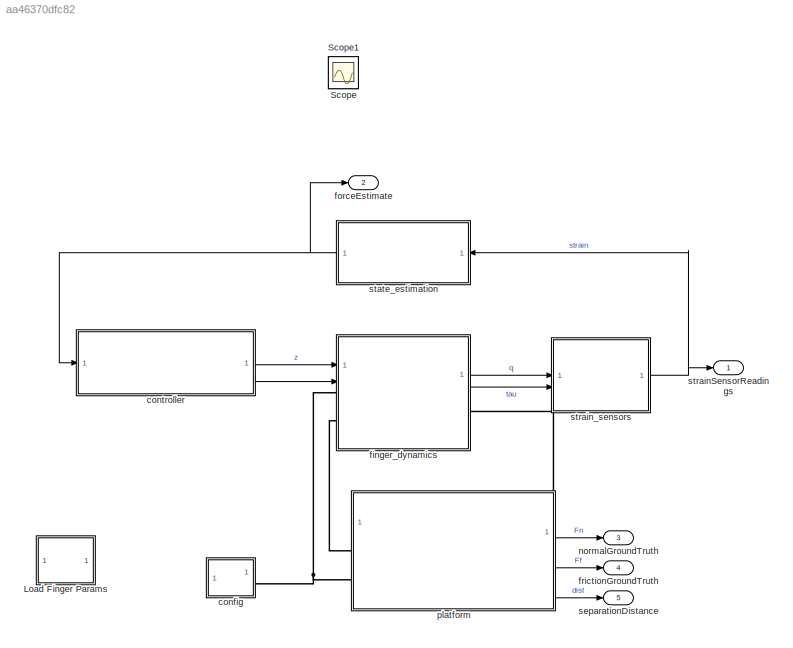
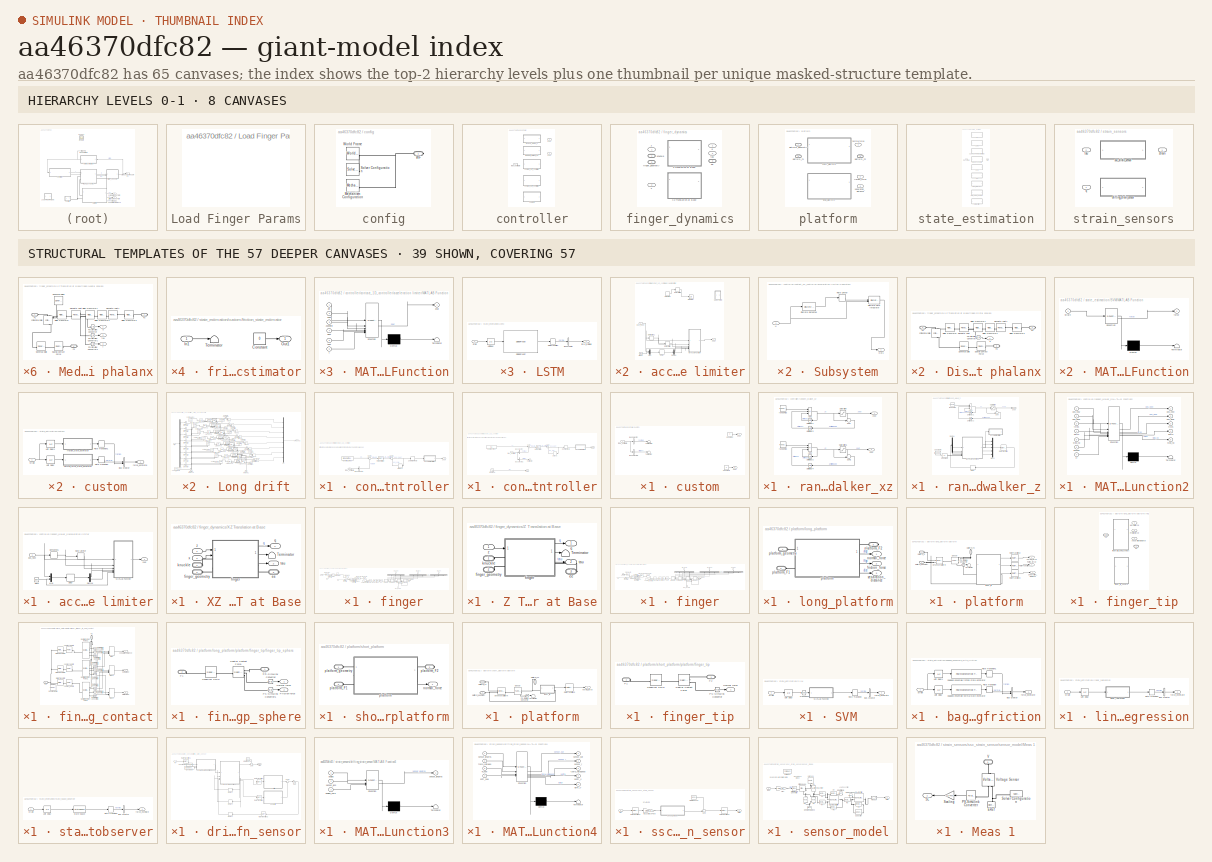
[diagram: thumbnail index - top-2 hierarchy levels (8 canvases) + 39 structural-template representatives of the remaining 57 canvases]
MODEL slx_aa46370dfc82
KIND model
CONFIG AbsTol = auto
CONFIG EnableMultiTasking = off
CONFIG FixedStep = auto
CONFIG MaxStep = auto
CONFIG MinStep = auto
CONFIG RelTol = 1e-3
CONFIG SampleTimeConstraint = Unconstrained
CONFIG SolverName = VariableStepAuto
CONFIG StartTime = 0.0
CONFIG StopTime = 5
BLOCK [SubSystem] Load Finger Params
  NameLocation = left
  OpenFcn = loadFingerParams;
BLOCK [Scope] Scope
  Floating = off
  IOType = viewer
  NumInputPorts = 1
  ScopeSpecificationString = Simulink.scopes.TimeScopeBlockCfg('CurrentConfiguration', extmgr.ConfigurationSet(extmgr.Configuration('Core','General UI',true),extmgr.Configuration('Core','Source UI',true),extmgr.Configuration('Sources','WiredSimulink',true),extmgr.Configuration('Visuals','Time Domain',true,'SerializedDisplays',{struct('MinYLimReal','-0.00155','MaxYLimReal','0.00333','YLabelReal','','MinYLimMag','0.00000','MaxY...<+4283ch>
BLOCK [Scope] Scope1
  Floating = off
  IOType = viewer
  NumInputPorts = 1
  ScopeSpecificationString = Simulink.scopes.TimeScopeBlockCfg('CurrentConfiguration', extmgr.ConfigurationSet(extmgr.Configuration('Core','General UI',true),extmgr.Configuration('Core','Source UI',true),extmgr.Configuration('Sources','WiredSimulink',true,'DataLoggingVariableName','ScopeData1'),extmgr.Configuration('Visuals','Time Domain',true,'SerializedDisplays',{struct('MinYLimReal','-1.00000','MaxYLimReal','1.00000','YLab...<+1401ch>
BLOCK [SubSystem] config
BLOCK [Reference] config/Mechanism Configuration  REF=sm_lib/Utilities/Mechanism
Configuration
  SourceBlock = sm_lib/Utilities/Mechanism\nConfiguration
  SourceType = Mechanism\nConfiguration
BLOCK [Reference] config/Solver Configuration  REF=nesl_utility/Solver
Configuration
  SourceBlock = nesl_utility/Solver\nConfiguration
  SourceType = Solver\nConfiguration
BLOCK [PMIOPort] config/WF
  Side = Right
BLOCK [Reference] config/World Frame  REF=sm_lib/Frames and
Transforms/World Frame
  SourceBlock = sm_lib/Frames and\nTransforms/World Frame
  SourceType = World Frame
BLOCK [SubSystem] controller
  Variant = on
  VariantControl = Choice
BLOCK [SubSystem] controller/contact_1D_controller
  VariantControl = controller_choice==1
BLOCK [BusSelector] controller/contact_1D_controller/Bus Selector
  OutputSignals = normal
BLOCK [Delay] controller/contact_1D_controller/Delay2
  DelayLength = 1;
  InitialCondition = 0;
  InputPortMap = u0
BLOCK [Reference] controller/contact_1D_controller/PID Controller  REF=slpidlib/PID Controller
  SourceBlock = slpidlib/PID Controller
  SourceType = PID 1dof
BLOCK [Sum] controller/contact_1D_controller/Sum1
  Inputs = |+-
BLOCK [Sum] controller/contact_1D_controller/Sum2
  Inputs = |-+
BLOCK [ZeroOrderHold] controller/contact_1D_controller/Zero-Order Hold
  SampleTime = -1
BLOCK [SubSystem] controller/contact_1D_controller/acceleration limiter
BLOCK [Clock] controller/contact_1D_controller/acceleration limiter/Clock
BLOCK [Delay] controller/contact_1D_controller/acceleration limiter/Delay
  DelayLength = 1
  InitialCondition = [0,0]
  InputPortMap = u0
BLOCK [Demux] controller/contact_1D_controller/acceleration limiter/Demux
  Outputs = 2
BLOCK [Derivative] controller/contact_1D_controller/acceleration limiter/Derivative
  Commented = on
BLOCK [Derivative] controller/contact_1D_controller/acceleration limiter/Derivative1
BLOCK [Integrator] controller/contact_1D_controller/acceleration limiter/Integrator
  Commented = on
  InitialConditionSource = external
BLOCK [SubSystem] controller/contact_1D_controller/acceleration limiter/MATLAB Function
  ErrorFcn = Stateflow.Translate.translate
  PermitHierarchicalResolution = ExplicitOnly
  SFBlockType = MATLAB Function
  TreatAsAtomicUnit = on
BLOCK [Demux] controller/contact_1D_controller/acceleration limiter/MATLAB Function/ Demux 
  Outputs = 1
BLOCK [S-Function] controller/contact_1D_controller/acceleration limiter/MATLAB Function/ SFunction 
  EnableBusSupport = off
  FunctionName = sf_sfun
  PortCounts = [6 2]
  SFcnIsStateOwnerBlock = off
  SFunctionDeploymentMode = off
  Tag = Stateflow S-Function 8
BLOCK [Terminator] controller/contact_1D_controller/acceleration limiter/MATLAB Function/ Terminator 
BLOCK [Inport] controller/contact_1D_controller/acceleration limiter/MATLAB Function/t
  Port = 6
BLOCK [Inport] controller/contact_1D_controller/acceleration limiter/MATLAB Function/tlast
  Port = 5
BLOCK [Inport] controller/contact_1D_controller/acceleration limiter/MATLAB Function/zdot
  Port = 2
BLOCK [Inport] controller/contact_1D_controller/acceleration limiter/MATLAB Function/zdotlimit
  Port = 3
BLOCK [Inport] controller/contact_1D_controller/acceleration limiter/MATLAB Function/zin
BLOCK [Inport] controller/contact_1D_controller/acceleration limiter/MATLAB Function/zlast
  Port = 4
BLOCK [Outport] controller/contact_1D_controller/acceleration limiter/MATLAB Function/zout
BLOCK [Mux] controller/contact_1D_controller/acceleration limiter/Mux
  DisplayOption = bar
  Inputs = 2
BLOCK [RateLimiter] controller/contact_1D_controller/acceleration limiter/Rate Limiter
  FallingSlewLimit = -6000
  RisingSlewLimit = 6000
BLOCK [RateLimiter] controller/contact_1D_controller/acceleration limiter/Rate Limiter1
  Commented = on
  FallingSlewLimit = -6000
  RisingSlewLimit = 6000
BLOCK [SubSystem] controller/contact_1D_controller/acceleration limiter/Subsystem
  Commented = on
BLOCK [Reference] controller/contact_1D_controller/acceleration limiter/Subsystem/Discrete Derivative  REF=simulink/Discrete/Discrete Derivative
  SourceBlock = simulink/Discrete/Discrete Derivative
  SourceType = Discrete Derivative
BLOCK [DiscreteIntegrator] controller/contact_1D_controller/acceleration limiter/Subsystem/Discrete-Time Integrator
  ICPrevOutput = DiscIntNeverNeededParam
  ICPrevScaledInput = DiscIntNeverNeededParam
  InitialConditionSetting = Auto
  InitialConditionSource = external
  SampleTime = -1
BLOCK [Outport] controller/contact_1D_controller/acceleration limiter/Subsystem/Out1
BLOCK [RateLimiter] controller/contact_1D_controller/acceleration limiter/Subsystem/Rate Limiter
  FallingSlewLimit = -60000000
  RisingSlewLimit = 60000000
  SampleTimeMode = inherited
BLOCK [Inport] controller/contact_1D_controller/acceleration limiter/Subsystem/U
BLOCK [Inport] controller/contact_1D_controller/acceleration limiter/pos_next
BLOCK [Outport] controller/contact_1D_controller/acceleration limiter/zout
BLOCK [Constant] controller/contact_1D_controller/desired_force
  Value = forceSetPoint
BLOCK [Inport] controller/contact_1D_controller/force_estimate
  NameLocation = left
BLOCK [Outport] controller/contact_1D_controller/zout
BLOCK [SubSystem] controller/contact_2D_controller
  VariantControl = controller_choice==2
BLOCK [BusSelector] controller/contact_2D_controller/Bus Selector
  OutputSignals = normal
BLOCK [BusSelector] controller/contact_2D_controller/Bus Selector1
  OutputSignals = friction
BLOCK [Delay] controller/contact_2D_controller/Delay2
  DelayLength = 1;
  InitialCondition = 0;
  InputPortMap = u0
BLOCK [Reference] controller/contact_2D_controller/PID Controller  REF=slpidlib/PID Controller
  SourceBlock = slpidlib/PID Controller
  SourceType = PID 1dof
BLOCK [Sin] controller/contact_2D_controller/Sine Wave
  Amplitude = 5
  Frequency = 0.5
  SampleTime = 0
BLOCK [Sum] controller/contact_2D_controller/Sum1
  Inputs = |+-
BLOCK [Sum] controller/contact_2D_controller/Sum2
  Inputs = |-+
BLOCK [Terminator] controller/contact_2D_controller/Terminator
BLOCK [ZeroOrderHold] controller/contact_2D_controller/Zero-Order Hold
  SampleTime = -1
BLOCK [SubSystem] controller/contact_2D_controller/acceleration limiter
BLOCK [Clock] controller/contact_2D_controller/acceleration limiter/Clock
BLOCK [Delay] controller/contact_2D_controller/acceleration limiter/Delay
  DelayLength = 1
  InitialCondition = [0,0]
  InputPortMap = u0
BLOCK [Demux] controller/contact_2D_controller/acceleration limiter/Demux
  Outputs = 2
BLOCK [Derivative] controller/contact_2D_controller/acceleration limiter/Derivative
  Commented = on
BLOCK [Derivative] controller/contact_2D_controller/acceleration limiter/Derivative1
BLOCK [Integrator] controller/contact_2D_controller/acceleration limiter/Integrator
  Commented = on
  InitialConditionSource = external
BLOCK [SubSystem] controller/contact_2D_controller/acceleration limiter/MATLAB Function
  ErrorFcn = Stateflow.Translate.translate
  PermitHierarchicalResolution = ExplicitOnly
  SFBlockType = MATLAB Function
  TreatAsAtomicUnit = on
BLOCK [Demux] controller/contact_2D_controller/acceleration limiter/MATLAB Function/ Demux 
  Outputs = 1
BLOCK [S-Function] controller/contact_2D_controller/acceleration limiter/MATLAB Function/ SFunction 
  EnableBusSupport = off
  FunctionName = sf_sfun
  PortCounts = [6 2]
  SFcnIsStateOwnerBlock = off
  SFunctionDeploymentMode = off
  Tag = Stateflow S-Function 13
BLOCK [Terminator] controller/contact_2D_controller/acceleration limiter/MATLAB Function/ Terminator 
BLOCK [Inport] controller/contact_2D_controller/acceleration limiter/MATLAB Function/t
  Port = 6
BLOCK [Inport] controller/contact_2D_controller/acceleration limiter/MATLAB Function/tlast
  Port = 5
BLOCK [Inport] controller/contact_2D_controller/acceleration limiter/MATLAB Function/zdot
  Port = 2
BLOCK [Inport] controller/contact_2D_controller/acceleration limiter/MATLAB Function/zdotlimit
  Port = 3
BLOCK [Inport] controller/contact_2D_controller/acceleration limiter/MATLAB Function/zin
BLOCK [Inport] controller/contact_2D_controller/acceleration limiter/MATLAB Function/zlast
  Port = 4
BLOCK [Outport] controller/contact_2D_controller/acceleration limiter/MATLAB Function/zout
BLOCK [Mux] controller/contact_2D_controller/acceleration limiter/Mux
  DisplayOption = bar
  Inputs = 2
BLOCK [RateLimiter] controller/contact_2D_controller/acceleration limiter/Rate Limiter
  FallingSlewLimit = -6000
  RisingSlewLimit = 6000
BLOCK [RateLimiter] controller/contact_2D_controller/acceleration limiter/Rate Limiter1
  Commented = on
  FallingSlewLimit = -6000
  RisingSlewLimit = 6000
BLOCK [SubSystem] controller/contact_2D_controller/acceleration limiter/Subsystem
  Commented = on
BLOCK [Reference] controller/contact_2D_controller/acceleration limiter/Subsystem/Discrete Derivative  REF=simulink/Discrete/Discrete Derivative
  SourceBlock = simulink/Discrete/Discrete Derivative
  SourceType = Discrete Derivative
BLOCK [DiscreteIntegrator] controller/contact_2D_controller/acceleration limiter/Subsystem/Discrete-Time Integrator
  ICPrevOutput = DiscIntNeverNeededParam
  ICPrevScaledInput = DiscIntNeverNeededParam
  InitialConditionSetting = Auto
  InitialConditionSource = external
  SampleTime = -1
BLOCK [Outport] controller/contact_2D_controller/acceleration limiter/Subsystem/Out1
BLOCK [RateLimiter] controller/contact_2D_controller/acceleration limiter/Subsystem/Rate Limiter
  FallingSlewLimit = -60000000
  RisingSlewLimit = 60000000
  SampleTimeMode = inherited
BLOCK [Inport] controller/contact_2D_controller/acceleration limiter/Subsystem/U
BLOCK [Inport] controller/contact_2D_controller/acceleration limiter/pos_next
BLOCK [Outport] controller/contact_2D_controller/acceleration limiter/zout
BLOCK [Constant] controller/contact_2D_controller/desired_force
  Value = 0.1
BLOCK [Inport] controller/contact_2D_controller/force_estimate
  NameLocation = left
BLOCK [Outport] controller/contact_2D_controller/xout
  Port = 2
BLOCK [Outport] controller/contact_2D_controller/zout
BLOCK [SubSystem] controller/custom
  VariantControl = controller_choice==2
BLOCK [BusSelector] controller/custom/Bus Selector
  OutputSignals = normal
BLOCK [BusSelector] controller/custom/Bus Selector1
  OutputSignals = friction
BLOCK [Constant] controller/custom/Constant
  Value = 0
BLOCK [Constant] controller/custom/Constant1
  Value = 0
BLOCK [Terminator] controller/custom/Terminator
BLOCK [Terminator] controller/custom/Terminator1
BLOCK [Inport] controller/custom/force_estimate
  NameLocation = left
BLOCK [Outport] controller/custom/xout
  Port = 2
BLOCK [Outport] controller/custom/zout
BLOCK [Inport] controller/force_estimate
  NameLocation = left
BLOCK [SubSystem] controller/random_walker_xz
  VariantControl = controller_choice==4
BLOCK [Sum] controller/random_walker_xz/Add1
  IconShape = rectangular
  Inputs = +-+
BLOCK [Sum] controller/random_walker_xz/Add2
  IconShape = rectangular
  Inputs = +-+
BLOCK [Saturate] controller/random_walker_xz/Saturation
  LowerLimit = bounds(2)
  UpperLimit = bounds(1)
BLOCK [Saturate] controller/random_walker_xz/Saturation1
  LowerLimit = -10
  UpperLimit = 10
BLOCK [Sum] controller/random_walker_xz/Sum
  Inputs = -+|
BLOCK [Sum] controller/random_walker_xz/Sum1
  Inputs = -+|
BLOCK [UnitDelay] controller/random_walker_xz/Unit Delay1
  HasFrameUpgradeWarning = on
  NameLocation = top
  SampleTime = -1
BLOCK [UnitDelay] controller/random_walker_xz/Unit Delay2
  HasFrameUpgradeWarning = on
  NameLocation = top
  SampleTime = -1
BLOCK [UnitDelay] controller/random_walker_xz/Unit Delay3
  HasFrameUpgradeWarning = on
  NameLocation = top
  SampleTime = -1
BLOCK [UnitDelay] controller/random_walker_xz/Unit Delay4
  HasFrameUpgradeWarning = on
  NameLocation = top
  SampleTime = -1
BLOCK [RandomNumber] controller/random_walker_xz/random dx
  SampleTime = 0.1
  Variance = 10
BLOCK [RandomNumber] controller/random_walker_xz/random dz
  SampleTime = 0.1
  Seed = 1
  Variance = 0.1
BLOCK [Outport] controller/random_walker_xz/xout
  Port = 2
BLOCK [Outport] controller/random_walker_xz/zout
BLOCK [SubSystem] controller/random_walker_z
  VariantControl = controller_choice==3
BLOCK [Sum] controller/random_walker_z/Add1
  IconShape = rectangular
  Inputs = +-+
BLOCK [Constant] controller/random_walker_z/Constant6
  Commented = on
  Value = [bounds]
BLOCK [Constant] controller/random_walker_z/Constant7
  Commented = on
  Value = cf
BLOCK [Delay] controller/random_walker_z/Delay
  Commented = on
  DelayLength = 1;
  InitialCondition = [10, 0, 1, 1, 1];
  InputPortMap = u0
BLOCK [Demux] controller/random_walker_z/Demux
  Commented = on
  Outputs = 5
BLOCK [SubSystem] controller/random_walker_z/MATLAB Function2
  Commented = on
  ErrorFcn = Stateflow.Translate.translate
  PermitHierarchicalResolution = ExplicitOnly
  SFBlockType = MATLAB Function
  TreatAsAtomicUnit = on
BLOCK [Demux] controller/random_walker_z/MATLAB Function2/ Demux 
  Outputs = 1
BLOCK [S-Function] controller/random_walker_z/MATLAB Function2/ SFunction 
  EnableBusSupport = off
  FunctionName = sf_sfun
  PortCounts = [7 6]
  SFcnIsStateOwnerBlock = off
  SFunctionDeploymentMode = off
  Tag = Stateflow S-Function 3
BLOCK [Terminator] controller/random_walker_z/MATLAB Function2/ Terminator 
BLOCK [Outport] controller/random_walker_z/MATLAB Function2/batch
  Port = 4
BLOCK [Inport] controller/random_walker_z/MATLAB Function2/batch 
  Port = 4
BLOCK [Inport] controller/random_walker_z/MATLAB Function2/bounds
  Port = 6
BLOCK [Inport] controller/random_walker_z/MATLAB Function2/cf
  Port = 7
BLOCK [Outport] controller/random_walker_z/MATLAB Function2/pos_goal
  Port = 2
BLOCK [Inport] controller/random_walker_z/MATLAB Function2/pos_goal 
  Port = 2
BLOCK [Outport] controller/random_walker_z/MATLAB Function2/pos_next
BLOCK [Inport] controller/random_walker_z/MATLAB Function2/pos_now
BLOCK [Outport] controller/random_walker_z/MATLAB Function2/step_no
  Port = 5
BLOCK [Inport] controller/random_walker_z/MATLAB Function2/step_no 
  Port = 5
BLOCK [Outport] controller/random_walker_z/MATLAB Function2/thres
  Port = 3
BLOCK [Inport] controller/random_walker_z/MATLAB Function2/thres 
  Port = 3
BLOCK [Mux] controller/random_walker_z/Mux1
  Commented = on
  DisplayOption = bar
  Inputs = 5
BLOCK [RateTransition] controller/random_walker_z/Rate Transition
  Commented = on
  InitialCondition = 0;
  OutPortSampleTime = 1/cf;
BLOCK [Saturate] controller/random_walker_z/Saturation
  LowerLimit = bounds(2)
  UpperLimit = bounds(1)
BLOCK [Sum] controller/random_walker_z/Sum
  Inputs = -+|
BLOCK [UnitDelay] controller/random_walker_z/Unit Delay1
  HasFrameUpgradeWarning = on
  NameLocation = top
  SampleTime = -1
BLOCK [UnitDelay] controller/random_walker_z/Unit Delay2
  HasFrameUpgradeWarning = on
  NameLocation = top
  SampleTime = -1
BLOCK [SubSystem] controller/random_walker_z/acceleration limiter
  Commented = on
BLOCK [Clock] controller/random_walker_z/acceleration limiter/Clock
BLOCK [Delay] controller/random_walker_z/acceleration limiter/Delay
  DelayLength = 1
  InitialCondition = [0,0]
  InputPortMap = u0
BLOCK [Demux] controller/random_walker_z/acceleration limiter/Demux
  Outputs = 2
BLOCK [Derivative] controller/random_walker_z/acceleration limiter/Derivative1
BLOCK [SubSystem] controller/random_walker_z/acceleration limiter/MATLAB Function
  ErrorFcn = Stateflow.Translate.translate
  PermitHierarchicalResolution = ExplicitOnly
  SFBlockType = MATLAB Function
  TreatAsAtomicUnit = on
BLOCK [Demux] controller/random_walker_z/acceleration limiter/MATLAB Function/ Demux 
  Outputs = 1
BLOCK [S-Function] controller/random_walker_z/acceleration limiter/MATLAB Function/ SFunction 
  EnableBusSupport = off
  FunctionName = sf_sfun
  PortCounts = [6 2]
  SFcnIsStateOwnerBlock = off
  SFunctionDeploymentMode = off
  Tag = Stateflow S-Function 2
BLOCK [Terminator] controller/random_walker_z/acceleration limiter/MATLAB Function/ Terminator 
BLOCK [Inport] controller/random_walker_z/acceleration limiter/MATLAB Function/t
  Port = 6
BLOCK [Inport] controller/random_walker_z/acceleration limiter/MATLAB Function/tlast
  Port = 5
BLOCK [Inport] controller/random_walker_z/acceleration limiter/MATLAB Function/zdot
  Port = 2
BLOCK [Inport] controller/random_walker_z/acceleration limiter/MATLAB Function/zdotlimit
  Port = 3
BLOCK [Inport] controller/random_walker_z/acceleration limiter/MATLAB Function/zin
BLOCK [Inport] controller/random_walker_z/acceleration limiter/MATLAB Function/zlast
  Port = 4
BLOCK [Outport] controller/random_walker_z/acceleration limiter/MATLAB Function/zout
BLOCK [Mux] controller/random_walker_z/acceleration limiter/Mux
  DisplayOption = bar
  Inputs = 2
BLOCK [RateLimiter] controller/random_walker_z/acceleration limiter/Rate Limiter
  FallingSlewLimit = -6000
  RisingSlewLimit = 6000
BLOCK [Inport] controller/random_walker_z/acceleration limiter/pos_next
BLOCK [Outport] controller/random_walker_z/acceleration limiter/zout
BLOCK [RandomNumber] controller/random_walker_z/random dz
  SampleTime = 0.1
  Seed = 1
  Variance = 0.1
BLOCK [Outport] controller/random_walker_z/zout
BLOCK [Outport] controller/xout
  NameLocation = right
  Port = 2
BLOCK [Outport] controller/zout
  NameLocation = right
BLOCK [SubSystem] finger_dynamics
  Variant = on
  VariantControl = Choice
BLOCK [SubSystem] finger_dynamics/XZ Translation at Base
  VariantControl = plant_choice == 2
BLOCK [Terminator] finger_dynamics/XZ Translation at Base/Terminator
BLOCK [PMIOPort] finger_dynamics/XZ Translation at Base/ee
  NameLocation = right
  Port = 3
  Side = Right
BLOCK [SubSystem] finger_dynamics/XZ Translation at Base/finger
BLOCK [Constant] finger_dynamics/XZ Translation at Base/finger/Constant
  Value = 0
BLOCK [SubSystem] finger_dynamics/XZ Translation at Base/finger/Distal phalanx
BLOCK [Reference] finger_dynamics/XZ Translation at Base/finger/Distal phalanx/Cylindrical Solid  REF=sm_lib/Body Elements/Cylindrical Solid
  NameLocation = left
  SourceBlock = sm_lib/Body Elements/Cylindrical Solid
  SourceType = Cylindrical Solid
BLOCK [PMIOPort] finger_dynamics/XZ Translation at Base/finger/Distal phalanx/F1
  NameLocation = top
  Port = 2
  Side = Left
BLOCK [PMIOPort] finger_dynamics/XZ Translation at Base/finger/Distal phalanx/F2
  Side = Right
BLOCK [PMIOPort] finger_dynamics/XZ Translation at Base/finger/Distal phalanx/F3
  Port = 3
  Side = Right
BLOCK [Reference] finger_dynamics/XZ Translation at Base/finger/Distal phalanx/PS-Simulink Converter  REF=nesl_utility/PS-Simulink
Converter
  SourceBlock = nesl_utility/PS-Simulink\nConverter
  SourceType = PS-Simulink\nConverter
BLOCK [Reference] finger_dynamics/XZ Translation at Base/finger/Distal phalanx/Revolute Joint  REF=sm_lib/Joints/Revolute Joint
  SourceBlock = sm_lib/Joints/Revolute Joint
  SourceType = Revolute Joint
BLOCK [Reference] finger_dynamics/XZ Translation at Base/finger/Distal phalanx/Revolute Joint1  REF=sm_lib/Joints/Revolute Joint
  SourceBlock = sm_lib/Joints/Revolute Joint
  SourceType = Revolute Joint
BLOCK [Reference] finger_dynamics/XZ Translation at Base/finger/Distal phalanx/Rigid Transform  REF=sm_lib/Frames and
Transforms/Rigid
Transform
  SourceBlock = sm_lib/Frames and\nTransforms/Rigid\nTransform
  SourceType = Rigid\nTransform
BLOCK [Reference] finger_dynamics/XZ Translation at Base/finger/Distal phalanx/Rigid Transform1  REF=sm_lib/Frames and
Transforms/Rigid
Transform
  NameLocation = top
  SourceBlock = sm_lib/Frames and\nTransforms/Rigid\nTransform
  SourceType = Rigid\nTransform
BLOCK [Reference] finger_dynamics/XZ Translation at Base/finger/Distal phalanx/Rigid Transform2  REF=sm_lib/Frames and
Transforms/Rigid
Transform
  SourceBlock = sm_lib/Frames and\nTransforms/Rigid\nTransform
  SourceType = Rigid\nTransform
BLOCK [Reference] finger_dynamics/XZ Translation at Base/finger/Distal phalanx/Rigid Transform3  REF=sm_lib/Frames and
Transforms/Rigid
Transform
  NameLocation = top
  SourceBlock = sm_lib/Frames and\nTransforms/Rigid\nTransform
  SourceType = Rigid\nTransform
BLOCK [Reference] finger_dynamics/XZ Translation at Base/finger/Distal phalanx/Spatial Contact Force  REF=sm_lib/Forces and
Torques/Spatial
Contact Force
  SourceBlock = sm_lib/Forces and\nTorques/Spatial\nContact Force
  SourceType = Spatial\nContact Force
BLOCK [Reference] finger_dynamics/XZ Translation at Base/finger/Distal phalanx/Spherical Solid  REF=sm_lib/Body Elements/Spherical Solid
  NameLocation = top
  SourceBlock = sm_lib/Body Elements/Spherical Solid
  SourceType = Spherical Solid
BLOCK [Outport] finger_dynamics/XZ Translation at Base/finger/Distal phalanx/q
BLOCK [SubSystem] finger_dynamics/XZ Translation at Base/finger/Medial phalanx
BLOCK [Reference] finger_dynamics/XZ Translation at Base/finger/Medial phalanx/Cylindrical Solid  REF=sm_lib/Body Elements/Cylindrical Solid
  NameLocation = left
  SourceBlock = sm_lib/Body Elements/Cylindrical Solid
  SourceType = Cylindrical Solid
BLOCK [PMIOPort] finger_dynamics/XZ Translation at Base/finger/Medial phalanx/F1
  NameLocation = top
  Port = 2
  Side = Left
BLOCK [PMIOPort] finger_dynamics/XZ Translation at Base/finger/Medial phalanx/F2
  Side = Right
BLOCK [PMIOPort] finger_dynamics/XZ Translation at Base/finger/Medial phalanx/F3
  Port = 3
  Side = Right
BLOCK [Reference] finger_dynamics/XZ Translation at Base/finger/Medial phalanx/PS-Simulink Converter  REF=nesl_utility/PS-Simulink
Converter
  SourceBlock = nesl_utility/PS-Simulink\nConverter
  SourceType = PS-Simulink\nConverter
BLOCK [Reference] finger_dynamics/XZ Translation at Base/finger/Medial phalanx/PS-Simulink Converter1  REF=nesl_utility/PS-Simulink
Converter
  SourceBlock = nesl_utility/PS-Simulink\nConverter
  SourceType = PS-Simulink\nConverter
BLOCK [Reference] finger_dynamics/XZ Translation at Base/finger/Medial phalanx/PS-Simulink Converter2  REF=nesl_utility/PS-Simulink
Converter
  SourceBlock = nesl_utility/PS-Simulink\nConverter
  SourceType = PS-Simulink\nConverter
BLOCK [Reference] finger_dynamics/XZ Translation at Base/finger/Medial phalanx/Revolute Joint  REF=sm_lib/Joints/Revolute Joint
  SourceBlock = sm_lib/Joints/Revolute Joint
  SourceType = Revolute Joint
BLOCK [Reference] finger_dynamics/XZ Translation at Base/finger/Medial phalanx/Revolute Joint1  REF=sm_lib/Joints/Revolute Joint
  SourceBlock = sm_lib/Joints/Revolute Joint
  SourceType = Revolute Joint
BLOCK [Reference] finger_dynamics/XZ Translation at Base/finger/Medial phalanx/Rigid Transform  REF=sm_lib/Frames and
Transforms/Rigid
Transform
  SourceBlock = sm_lib/Frames and\nTransforms/Rigid\nTransform
  SourceType = Rigid\nTransform
BLOCK [Reference] finger_dynamics/XZ Translation at Base/finger/Medial phalanx/Rigid Transform1  REF=sm_lib/Frames and
Transforms/Rigid
Transform
  NameLocation = top
  SourceBlock = sm_lib/Frames and\nTransforms/Rigid\nTransform
  SourceType = Rigid\nTransform
BLOCK [Reference] finger_dynamics/XZ Translation at Base/finger/Medial phalanx/Rigid Transform2  REF=sm_lib/Frames and
Transforms/Rigid
Transform
  SourceBlock = sm_lib/Frames and\nTransforms/Rigid\nTransform
  SourceType = Rigid\nTransform
BLOCK [Reference] finger_dynamics/XZ Translation at Base/finger/Medial phalanx/Rigid Transform3  REF=sm_lib/Frames and
Transforms/Rigid
Transform
  NameLocation = top
  SourceBlock = sm_lib/Frames and\nTransforms/Rigid\nTransform
  SourceType = Rigid\nTransform
BLOCK [Reference] finger_dynamics/XZ Translation at Base/finger/Medial phalanx/Spatial Contact Force  REF=sm_lib/Forces and
Torques/Spatial
Contact Force
  SourceBlock = sm_lib/Forces and\nTorques/Spatial\nContact Force
  SourceType = Spatial\nContact Force
BLOCK [Reference] finger_dynamics/XZ Translation at Base/finger/Medial phalanx/Spherical Solid  REF=sm_lib/Body Elements/Spherical Solid
  NameLocation = top
  SourceBlock = sm_lib/Body Elements/Spherical Solid
  SourceType = Spherical Solid
BLOCK [Reference] finger_dynamics/XZ Translation at Base/finger/Medial phalanx/Spherical Solid1  REF=sm_lib/Body Elements/Spherical Solid
  NameLocation = top
  SourceBlock = sm_lib/Body Elements/Spherical Solid
  SourceType = Spherical Solid
BLOCK [Outport] finger_dynamics/XZ Translation at Base/finger/Medial phalanx/f
  Port = 3
BLOCK [Outport] finger_dynamics/XZ Translation at Base/finger/Medial phalanx/q
BLOCK [Outport] finger_dynamics/XZ Translation at Base/finger/Medial phalanx/tau
  Port = 2
BLOCK [SubSystem] finger_dynamics/XZ Translation at Base/finger/Metacarpal
BLOCK [Reference] finger_dynamics/XZ Translation at Base/finger/Metacarpal/Cylindrical Solid  REF=sm_lib/Body Elements/Cylindrical Solid
  NameLocation = left
  SourceBlock = sm_lib/Body Elements/Cylindrical Solid
  SourceType = Cylindrical Solid
BLOCK [PMIOPort] finger_dynamics/XZ Translation at Base/finger/Metacarpal/F1
  NameLocation = top
  Port = 2
  Side = Left
BLOCK [PMIOPort] finger_dynamics/XZ Translation at Base/finger/Metacarpal/F2
  Side = Right
BLOCK [PMIOPort] finger_dynamics/XZ Translation at Base/finger/Metacarpal/F3
  NameLocation = left
  Port = 3
  Side = Right
BLOCK [Reference] finger_dynamics/XZ Translation at Base/finger/Metacarpal/PS-Simulink Converter  REF=nesl_utility/PS-Simulink
Converter
  SourceBlock = nesl_utility/PS-Simulink\nConverter
  SourceType = PS-Simulink\nConverter
BLOCK [Reference] finger_dynamics/XZ Translation at Base/finger/Metacarpal/PS-Simulink Converter1  REF=nesl_utility/PS-Simulink
Converter
  SourceBlock = nesl_utility/PS-Simulink\nConverter
  SourceType = PS-Simulink\nConverter
BLOCK [Reference] finger_dynamics/XZ Translation at Base/finger/Metacarpal/PS-Simulink Converter2  REF=nesl_utility/PS-Simulink
Converter
  SourceBlock = nesl_utility/PS-Simulink\nConverter
  SourceType = PS-Simulink\nConverter
BLOCK [Reference] finger_dynamics/XZ Translation at Base/finger/Metacarpal/Revolute Joint  REF=sm_lib/Joints/Revolute Joint
  SourceBlock = sm_lib/Joints/Revolute Joint
  SourceType = Revolute Joint
BLOCK [Reference] finger_dynamics/XZ Translation at Base/finger/Metacarpal/Revolute Joint1  REF=sm_lib/Joints/Revolute Joint
  SourceBlock = sm_lib/Joints/Revolute Joint
  SourceType = Revolute Joint
BLOCK [Reference] finger_dynamics/XZ Translation at Base/finger/Metacarpal/Rigid Transform  REF=sm_lib/Frames and
Transforms/Rigid
Transform
  SourceBlock = sm_lib/Frames and\nTransforms/Rigid\nTransform
  SourceType = Rigid\nTransform
BLOCK [Reference] finger_dynamics/XZ Translation at Base/finger/Metacarpal/Rigid Transform1  REF=sm_lib/Frames and
Transforms/Rigid
Transform
  NameLocation = top
  SourceBlock = sm_lib/Frames and\nTransforms/Rigid\nTransform
  SourceType = Rigid\nTransform
BLOCK [Reference] finger_dynamics/XZ Translation at Base/finger/Metacarpal/Rigid Transform2  REF=sm_lib/Frames and
Transforms/Rigid
Transform
  SourceBlock = sm_lib/Frames and\nTransforms/Rigid\nTransform
  SourceType = Rigid\nTransform
BLOCK [Reference] finger_dynamics/XZ Translation at Base/finger/Metacarpal/Rigid Transform3  REF=sm_lib/Frames and
Transforms/Rigid
Transform
  NameLocation = top
  SourceBlock = sm_lib/Frames and\nTransforms/Rigid\nTransform
  SourceType = Rigid\nTransform
BLOCK [Reference] finger_dynamics/XZ Translation at Base/finger/Metacarpal/Spatial Contact Force  REF=sm_lib/Forces and
Torques/Spatial
Contact Force
  NameLocation = left
  SourceBlock = sm_lib/Forces and\nTorques/Spatial\nContact Force
  SourceType = Spatial\nContact Force
BLOCK [Reference] finger_dynamics/XZ Translation at Base/finger/Metacarpal/Spherical Solid  REF=sm_lib/Body Elements/Spherical Solid
  NameLocation = right
  SourceBlock = sm_lib/Body Elements/Spherical Solid
  SourceType = Spherical Solid
BLOCK [Reference] finger_dynamics/XZ Translation at Base/finger/Metacarpal/Spherical Solid1  REF=sm_lib/Body Elements/Spherical Solid
  NameLocation = left
  SourceBlock = sm_lib/Body Elements/Spherical Solid
  SourceType = Spherical Solid
BLOCK [Outport] finger_dynamics/XZ Translation at Base/finger/Metacarpal/f
  Port = 3
BLOCK [Outport] finger_dynamics/XZ Translation at Base/finger/Metacarpal/q
BLOCK [Outport] finger_dynamics/XZ Translation at Base/finger/Metacarpal/tau
  Port = 2
BLOCK [Reference] finger_dynamics/XZ Translation at Base/finger/PS-Simulink Converter1  REF=nesl_utility/PS-Simulink
Converter
  SourceBlock = nesl_utility/PS-Simulink\nConverter
  SourceType = PS-Simulink\nConverter
BLOCK [Reference] finger_dynamics/XZ Translation at Base/finger/PS-Simulink Converter2  REF=nesl_utility/PS-Simulink
Converter
  SourceBlock = nesl_utility/PS-Simulink\nConverter
  SourceType = PS-Simulink\nConverter
BLOCK [SubSystem] finger_dynamics/XZ Translation at Base/finger/Proximal phalanx
BLOCK [Reference] finger_dynamics/XZ Translation at Base/finger/Proximal phalanx/Cylindrical Solid  REF=sm_lib/Body Elements/Cylindrical Solid
  NameLocation = left
  SourceBlock = sm_lib/Body Elements/Cylindrical Solid
  SourceType = Cylindrical Solid
BLOCK [PMIOPort] finger_dynamics/XZ Translation at Base/finger/Proximal phalanx/F1
  NameLocation = top
  Port = 2
  Side = Left
BLOCK [PMIOPort] finger_dynamics/XZ Translation at Base/finger/Proximal phalanx/F2
  Side = Right
BLOCK [PMIOPort] finger_dynamics/XZ Translation at Base/finger/Proximal phalanx/F3
  Port = 3
  Side = Right
BLOCK [Reference] finger_dynamics/XZ Translation at Base/finger/Proximal phalanx/PS-Simulink Converter  REF=nesl_utility/PS-Simulink
Converter
  SourceBlock = nesl_utility/PS-Simulink\nConverter
  SourceType = PS-Simulink\nConverter
BLOCK [Reference] finger_dynamics/XZ Translation at Base/finger/Proximal phalanx/PS-Simulink Converter1  REF=nesl_utility/PS-Simulink
Converter
  SourceBlock = nesl_utility/PS-Simulink\nConverter
  SourceType = PS-Simulink\nConverter
BLOCK [Reference] finger_dynamics/XZ Translation at Base/finger/Proximal phalanx/PS-Simulink Converter2  REF=nesl_utility/PS-Simulink
Converter
  SourceBlock = nesl_utility/PS-Simulink\nConverter
  SourceType = PS-Simulink\nConverter
BLOCK [Reference] finger_dynamics/XZ Translation at Base/finger/Proximal phalanx/Revolute Joint  REF=sm_lib/Joints/Revolute Joint
  SourceBlock = sm_lib/Joints/Revolute Joint
  SourceType = Revolute Joint
BLOCK [Reference] finger_dynamics/XZ Translation at Base/finger/Proximal phalanx/Revolute Joint1  REF=sm_lib/Joints/Revolute Joint
  SourceBlock = sm_lib/Joints/Revolute Joint
  SourceType = Revolute Joint
BLOCK [Reference] finger_dynamics/XZ Translation at Base/finger/Proximal phalanx/Rigid Transform  REF=sm_lib/Frames and
Transforms/Rigid
Transform
  SourceBlock = sm_lib/Frames and\nTransforms/Rigid\nTransform
  SourceType = Rigid\nTransform
BLOCK [Reference] finger_dynamics/XZ Translation at Base/finger/Proximal phalanx/Rigid Transform1  REF=sm_lib/Frames and
Transforms/Rigid
Transform
  NameLocation = top
  SourceBlock = sm_lib/Frames and\nTransforms/Rigid\nTransform
  SourceType = Rigid\nTransform
BLOCK [Reference] finger_dynamics/XZ Translation at Base/finger/Proximal phalanx/Rigid Transform2  REF=sm_lib/Frames and
Transforms/Rigid
Transform
  SourceBlock = sm_lib/Frames and\nTransforms/Rigid\nTransform
  SourceType = Rigid\nTransform
BLOCK [Reference] finger_dynamics/XZ Translation at Base/finger/Proximal phalanx/Rigid Transform3  REF=sm_lib/Frames and
Transforms/Rigid
Transform
  NameLocation = top
  SourceBlock = sm_lib/Frames and\nTransforms/Rigid\nTransform
  SourceType = Rigid\nTransform
BLOCK [Reference] finger_dynamics/XZ Translation at Base/finger/Proximal phalanx/Spatial Contact Force  REF=sm_lib/Forces and
Torques/Spatial
Contact Force
  SourceBlock = sm_lib/Forces and\nTorques/Spatial\nContact Force
  SourceType = Spatial\nContact Force
BLOCK [Reference] finger_dynamics/XZ Translation at Base/finger/Proximal phalanx/Spherical Solid  REF=sm_lib/Body Elements/Spherical Solid
  NameLocation = top
  SourceBlock = sm_lib/Body Elements/Spherical Solid
  SourceType = Spherical Solid
BLOCK [Reference] finger_dynamics/XZ Translation at Base/finger/Proximal phalanx/Spherical Solid1  REF=sm_lib/Body Elements/Spherical Solid
  NameLocation = top
  SourceBlock = sm_lib/Body Elements/Spherical Solid
  SourceType = Spherical Solid
BLOCK [Outport] finger_dynamics/XZ Translation at Base/finger/Proximal phalanx/f
  Port = 3
BLOCK [Outport] finger_dynamics/XZ Translation at Base/finger/Proximal phalanx/q
BLOCK [Outport] finger_dynamics/XZ Translation at Base/finger/Proximal phalanx/tau
  Port = 2
BLOCK [Reference] finger_dynamics/XZ Translation at Base/finger/Rigid Transform  REF=sm_lib/Frames and
Transforms/Rigid
Transform
  SourceBlock = sm_lib/Frames and\nTransforms/Rigid\nTransform
  SourceType = Rigid\nTransform
BLOCK [Reference] finger_dynamics/XZ Translation at Base/finger/Rigid Transform1  REF=sm_lib/Frames and
Transforms/Rigid
Transform
  SourceBlock = sm_lib/Frames and\nTransforms/Rigid\nTransform
  SourceType = Rigid\nTransform
BLOCK [Reference] finger_dynamics/XZ Translation at Base/finger/Rigid Transform2  REF=sm_lib/Frames and
Transforms/Rigid
Transform
  NameLocation = top
  SourceBlock = sm_lib/Frames and\nTransforms/Rigid\nTransform
  SourceType = Rigid\nTransform
BLOCK [Reference] finger_dynamics/XZ Translation at Base/finger/Rigid Transform3  REF=sm_lib/Frames and
Transforms/Rigid
Transform
  SourceBlock = sm_lib/Frames and\nTransforms/Rigid\nTransform
  SourceType = Rigid\nTransform
BLOCK [Reference] finger_dynamics/XZ Translation at Base/finger/Rigid Transform4  REF=sm_lib/Frames and
Transforms/Rigid
Transform
  SourceBlock = sm_lib/Frames and\nTransforms/Rigid\nTransform
  SourceType = Rigid\nTransform
BLOCK [Reference] finger_dynamics/XZ Translation at Base/finger/Rigid Transform7  REF=sm_lib/Frames and
Transforms/Rigid
Transform
  SourceBlock = sm_lib/Frames and\nTransforms/Rigid\nTransform
  SourceType = Rigid\nTransform
BLOCK [Reference] finger_dynamics/XZ Translation at Base/finger/Simulink-PS Converter  REF=nesl_utility/Simulink-PS
Converter
  SourceBlock = nesl_utility/Simulink-PS\nConverter
  SourceType = Simulink-PS\nConverter
BLOCK [Reference] finger_dynamics/XZ Translation at Base/finger/Simulink-PS Converter1  REF=nesl_utility/Simulink-PS
Converter
  SourceBlock = nesl_utility/Simulink-PS\nConverter
  SourceType = Simulink-PS\nConverter
BLOCK [Reference] finger_dynamics/XZ Translation at Base/finger/Simulink-PS Converter2  REF=nesl_utility/Simulink-PS
Converter
  SourceBlock = nesl_utility/Simulink-PS\nConverter
  SourceType = Simulink-PS\nConverter
BLOCK [Terminator] finger_dynamics/XZ Translation at Base/finger/Terminator
BLOCK [Terminator] finger_dynamics/XZ Translation at Base/finger/Terminator1
BLOCK [Terminator] finger_dynamics/XZ Translation at Base/finger/Terminator2
BLOCK [Mux] finger_dynamics/XZ Translation at Base/finger/angleMux
  DisplayOption = bar
  Inputs = 3
  NameLocation = right
BLOCK [Reference] finger_dynamics/XZ Translation at Base/finger/base  REF=sm_lib/Frames and
Transforms/Rigid
Transform
  SourceBlock = sm_lib/Frames and\nTransforms/Rigid\nTransform
  SourceType = Rigid\nTransform
BLOCK [PMIOPort] finger_dynamics/XZ Translation at Base/finger/ee
  Port = 3
  Side = Right
BLOCK [Mux] finger_dynamics/XZ Translation at Base/finger/fMux
  DisplayOption = bar
  Inputs = 3
  NameLocation = right
BLOCK [PMIOPort] finger_dynamics/XZ Translation at Base/finger/finger_geometry
  NameLocation = right
  Port = 2
  Side = Left
BLOCK [Outport] finger_dynamics/XZ Translation at Base/finger/joint_angles
  NameLocation = right
BLOCK [Outport] finger_dynamics/XZ Translation at Base/finger/joint_forces
  NameLocation = right
  Port = 2
BLOCK [Outport] finger_dynamics/XZ Translation at Base/finger/joint_torques
  NameLocation = right
  Port = 3
BLOCK [PMIOPort] finger_dynamics/XZ Translation at Base/finger/knuckle
  NameLocation = top
  Side = Left
BLOCK [Reference] finger_dynamics/XZ Translation at Base/finger/mount  REF=sm_lib/Body Elements/Brick Solid
  SourceBlock = sm_lib/Body Elements/Brick Solid
  SourceType = Brick Solid
BLOCK [Mux] finger_dynamics/XZ Translation at Base/finger/tauMux
  DisplayOption = bar
  Inputs = 3
  NameLocation = right
BLOCK [Reference] finger_dynamics/XZ Translation at Base/finger/theta-joint  REF=sm_lib/Joints/Revolute Joint
  SourceBlock = sm_lib/Joints/Revolute Joint
  SourceType = Revolute Joint
BLOCK [Inport] finger_dynamics/XZ Translation at Base/finger/x
  Port = 2
BLOCK [Reference] finger_dynamics/XZ Translation at Base/finger/x-motion  REF=sm_lib/Joints/Prismatic
Joint
  SourceBlock = sm_lib/Joints/Prismatic\nJoint
  SourceType = Prismatic\nJoint
BLOCK [Inport] finger_dynamics/XZ Translation at Base/finger/z
BLOCK [Reference] finger_dynamics/XZ Translation at Base/finger/z-motion  REF=sm_lib/Joints/Prismatic
Joint
  SourceBlock = sm_lib/Joints/Prismatic\nJoint
  SourceType = Prismatic\nJoint
BLOCK [PMIOPort] finger_dynamics/XZ Translation at Base/finger_geometry
  NameLocation = left
  Port = 2
  Side = Left
BLOCK [PMIOPort] finger_dynamics/XZ Translation at Base/knuckle
  NameLocation = left
  Side = Left
BLOCK [Outport] finger_dynamics/XZ Translation at Base/q
  NameLocation = right
BLOCK [Outport] finger_dynamics/XZ Translation at Base/tau
  NameLocation = right
  Port = 2
BLOCK [Inport] finger_dynamics/XZ Translation at Base/x
  NameLocation = left
  Port = 2
BLOCK [Inport] finger_dynamics/XZ Translation at Base/z
  NameLocation = left
BLOCK [SubSystem] finger_dynamics/Z Translation at Base
  VariantControl = plant_choice == 1
BLOCK [Terminator] finger_dynamics/Z Translation at Base/Terminator
BLOCK [PMIOPort] finger_dynamics/Z Translation at Base/ee
  NameLocation = right
  Port = 3
  Side = Right
BLOCK [SubSystem] finger_dynamics/Z Translation at Base/finger
BLOCK [Constant] finger_dynamics/Z Translation at Base/finger/Constant
  Value = 0
BLOCK [SubSystem] finger_dynamics/Z Translation at Base/finger/Distal phalanx
BLOCK [Reference] finger_dynamics/Z Translation at Base/finger/Distal phalanx/Cylindrical Solid  REF=sm_lib/Body Elements/Cylindrical Solid
  NameLocation = left
  SourceBlock = sm_lib/Body Elements/Cylindrical Solid
  SourceType = Cylindrical Solid
BLOCK [PMIOPort] finger_dynamics/Z Translation at Base/finger/Distal phalanx/F1
  NameLocation = top
  Port = 2
  Side = Left
BLOCK [PMIOPort] finger_dynamics/Z Translation at Base/finger/Distal phalanx/F2
  Side = Right
BLOCK [PMIOPort] finger_dynamics/Z Translation at Base/finger/Distal phalanx/F3
  Port = 3
  Side = Right
BLOCK [Reference] finger_dynamics/Z Translation at Base/finger/Distal phalanx/PS-Simulink Converter  REF=nesl_utility/PS-Simulink
Converter
  SourceBlock = nesl_utility/PS-Simulink\nConverter
  SourceType = PS-Simulink\nConverter
BLOCK [Reference] finger_dynamics/Z Translation at Base/finger/Distal phalanx/Revolute Joint  REF=sm_lib/Joints/Revolute Joint
  SourceBlock = sm_lib/Joints/Revolute Joint
  SourceType = Revolute Joint
BLOCK [Reference] finger_dynamics/Z Translation at Base/finger/Distal phalanx/Revolute Joint1  REF=sm_lib/Joints/Revolute Joint
  SourceBlock = sm_lib/Joints/Revolute Joint
  SourceType = Revolute Joint
BLOCK [Reference] finger_dynamics/Z Translation at Base/finger/Distal phalanx/Rigid Transform  REF=sm_lib/Frames and
Transforms/Rigid
Transform
  SourceBlock = sm_lib/Frames and\nTransforms/Rigid\nTransform
  SourceType = Rigid\nTransform
BLOCK [Reference] finger_dynamics/Z Translation at Base/finger/Distal phalanx/Rigid Transform1  REF=sm_lib/Frames and
Transforms/Rigid
Transform
  NameLocation = top
  SourceBlock = sm_lib/Frames and\nTransforms/Rigid\nTransform
  SourceType = Rigid\nTransform
BLOCK [Reference] finger_dynamics/Z Translation at Base/finger/Distal phalanx/Rigid Transform2  REF=sm_lib/Frames and
Transforms/Rigid
Transform
  SourceBlock = sm_lib/Frames and\nTransforms/Rigid\nTransform
  SourceType = Rigid\nTransform
BLOCK [Reference] finger_dynamics/Z Translation at Base/finger/Distal phalanx/Rigid Transform3  REF=sm_lib/Frames and
Transforms/Rigid
Transform
  NameLocation = top
  SourceBlock = sm_lib/Frames and\nTransforms/Rigid\nTransform
  SourceType = Rigid\nTransform
BLOCK [Reference] finger_dynamics/Z Translation at Base/finger/Distal phalanx/Spatial Contact Force  REF=sm_lib/Forces and
Torques/Spatial
Contact Force
  SourceBlock = sm_lib/Forces and\nTorques/Spatial\nContact Force
  SourceType = Spatial\nContact Force
BLOCK [Reference] finger_dynamics/Z Translation at Base/finger/Distal phalanx/Spherical Solid  REF=sm_lib/Body Elements/Spherical Solid
  NameLocation = top
  SourceBlock = sm_lib/Body Elements/Spherical Solid
  SourceType = Spherical Solid
BLOCK [Outport] finger_dynamics/Z Translation at Base/finger/Distal phalanx/q
BLOCK [SubSystem] finger_dynamics/Z Translation at Base/finger/Medial phalanx
BLOCK [Reference] finger_dynamics/Z Translation at Base/finger/Medial phalanx/Cylindrical Solid  REF=sm_lib/Body Elements/Cylindrical Solid
  NameLocation = left
  SourceBlock = sm_lib/Body Elements/Cylindrical Solid
  SourceType = Cylindrical Solid
BLOCK [PMIOPort] finger_dynamics/Z Translation at Base/finger/Medial phalanx/F1
  NameLocation = top
  Port = 2
  Side = Left
BLOCK [PMIOPort] finger_dynamics/Z Translation at Base/finger/Medial phalanx/F2
  Side = Right
BLOCK [PMIOPort] finger_dynamics/Z Translation at Base/finger/Medial phalanx/F3
  Port = 3
  Side = Right
BLOCK [Reference] finger_dynamics/Z Translation at Base/finger/Medial phalanx/PS-Simulink Converter  REF=nesl_utility/PS-Simulink
Converter
  SourceBlock = nesl_utility/PS-Simulink\nConverter
  SourceType = PS-Simulink\nConverter
BLOCK [Reference] finger_dynamics/Z Translation at Base/finger/Medial phalanx/PS-Simulink Converter1  REF=nesl_utility/PS-Simulink
Converter
  SourceBlock = nesl_utility/PS-Simulink\nConverter
  SourceType = PS-Simulink\nConverter
BLOCK [Reference] finger_dynamics/Z Translation at Base/finger/Medial phalanx/PS-Simulink Converter2  REF=nesl_utility/PS-Simulink
Converter
  SourceBlock = nesl_utility/PS-Simulink\nConverter
  SourceType = PS-Simulink\nConverter
BLOCK [Reference] finger_dynamics/Z Translation at Base/finger/Medial phalanx/Revolute Joint  REF=sm_lib/Joints/Revolute Joint
  SourceBlock = sm_lib/Joints/Revolute Joint
  SourceType = Revolute Joint
BLOCK [Reference] finger_dynamics/Z Translation at Base/finger/Medial phalanx/Revolute Joint1  REF=sm_lib/Joints/Revolute Joint
  SourceBlock = sm_lib/Joints/Revolute Joint
  SourceType = Revolute Joint
BLOCK [Reference] finger_dynamics/Z Translation at Base/finger/Medial phalanx/Rigid Transform  REF=sm_lib/Frames and
Transforms/Rigid
Transform
  SourceBlock = sm_lib/Frames and\nTransforms/Rigid\nTransform
  SourceType = Rigid\nTransform
BLOCK [Reference] finger_dynamics/Z Translation at Base/finger/Medial phalanx/Rigid Transform1  REF=sm_lib/Frames and
Transforms/Rigid
Transform
  NameLocation = top
  SourceBlock = sm_lib/Frames and\nTransforms/Rigid\nTransform
  SourceType = Rigid\nTransform
BLOCK [Reference] finger_dynamics/Z Translation at Base/finger/Medial phalanx/Rigid Transform2  REF=sm_lib/Frames and
Transforms/Rigid
Transform
  SourceBlock = sm_lib/Frames and\nTransforms/Rigid\nTransform
  SourceType = Rigid\nTransform
BLOCK [Reference] finger_dynamics/Z Translation at Base/finger/Medial phalanx/Rigid Transform3  REF=sm_lib/Frames and
Transforms/Rigid
Transform
  NameLocation = top
  SourceBlock = sm_lib/Frames and\nTransforms/Rigid\nTransform
  SourceType = Rigid\nTransform
BLOCK [Reference] finger_dynamics/Z Translation at Base/finger/Medial phalanx/Spatial Contact Force  REF=sm_lib/Forces and
Torques/Spatial
Contact Force
  SourceBlock = sm_lib/Forces and\nTorques/Spatial\nContact Force
  SourceType = Spatial\nContact Force
BLOCK [Reference] finger_dynamics/Z Translation at Base/finger/Medial phalanx/Spherical Solid  REF=sm_lib/Body Elements/Spherical Solid
  NameLocation = top
  SourceBlock = sm_lib/Body Elements/Spherical Solid
  SourceType = Spherical Solid
BLOCK [Reference] finger_dynamics/Z Translation at Base/finger/Medial phalanx/Spherical Solid1  REF=sm_lib/Body Elements/Spherical Solid
  NameLocation = top
  SourceBlock = sm_lib/Body Elements/Spherical Solid
  SourceType = Spherical Solid
BLOCK [Outport] finger_dynamics/Z Translation at Base/finger/Medial phalanx/f
  Port = 3
BLOCK [Outport] finger_dynamics/Z Translation at Base/finger/Medial phalanx/q
BLOCK [Outport] finger_dynamics/Z Translation at Base/finger/Medial phalanx/tau
  Port = 2
BLOCK [SubSystem] finger_dynamics/Z Translation at Base/finger/Metacarpal
BLOCK [Reference] finger_dynamics/Z Translation at Base/finger/Metacarpal/Cylindrical Solid  REF=sm_lib/Body Elements/Cylindrical Solid
  NameLocation = left
  SourceBlock = sm_lib/Body Elements/Cylindrical Solid
  SourceType = Cylindrical Solid
BLOCK [PMIOPort] finger_dynamics/Z Translation at Base/finger/Metacarpal/F1
  NameLocation = top
  Port = 2
  Side = Left
BLOCK [PMIOPort] finger_dynamics/Z Translation at Base/finger/Metacarpal/F2
  Side = Right
BLOCK [PMIOPort] finger_dynamics/Z Translation at Base/finger/Metacarpal/F3
  NameLocation = left
  Port = 3
  Side = Right
BLOCK [Reference] finger_dynamics/Z Translation at Base/finger/Metacarpal/PS-Simulink Converter  REF=nesl_utility/PS-Simulink
Converter
  SourceBlock = nesl_utility/PS-Simulink\nConverter
  SourceType = PS-Simulink\nConverter
BLOCK [Reference] finger_dynamics/Z Translation at Base/finger/Metacarpal/PS-Simulink Converter1  REF=nesl_utility/PS-Simulink
Converter
  SourceBlock = nesl_utility/PS-Simulink\nConverter
  SourceType = PS-Simulink\nConverter
BLOCK [Reference] finger_dynamics/Z Translation at Base/finger/Metacarpal/PS-Simulink Converter2  REF=nesl_utility/PS-Simulink
Converter
  SourceBlock = nesl_utility/PS-Simulink\nConverter
  SourceType = PS-Simulink\nConverter
BLOCK [Reference] finger_dynamics/Z Translation at Base/finger/Metacarpal/Revolute Joint  REF=sm_lib/Joints/Revolute Joint
  SourceBlock = sm_lib/Joints/Revolute Joint
  SourceType = Revolute Joint
BLOCK [Reference] finger_dynamics/Z Translation at Base/finger/Metacarpal/Revolute Joint1  REF=sm_lib/Joints/Revolute Joint
  SourceBlock = sm_lib/Joints/Revolute Joint
  SourceType = Revolute Joint
BLOCK [Reference] finger_dynamics/Z Translation at Base/finger/Metacarpal/Rigid Transform  REF=sm_lib/Frames and
Transforms/Rigid
Transform
  SourceBlock = sm_lib/Frames and\nTransforms/Rigid\nTransform
  SourceType = Rigid\nTransform
BLOCK [Reference] finger_dynamics/Z Translation at Base/finger/Metacarpal/Rigid Transform1  REF=sm_lib/Frames and
Transforms/Rigid
Transform
  NameLocation = top
  SourceBlock = sm_lib/Frames and\nTransforms/Rigid\nTransform
  SourceType = Rigid\nTransform
BLOCK [Reference] finger_dynamics/Z Translation at Base/finger/Metacarpal/Rigid Transform2  REF=sm_lib/Frames and
Transforms/Rigid
Transform
  SourceBlock = sm_lib/Frames and\nTransforms/Rigid\nTransform
  SourceType = Rigid\nTransform
BLOCK [Reference] finger_dynamics/Z Translation at Base/finger/Metacarpal/Rigid Transform3  REF=sm_lib/Frames and
Transforms/Rigid
Transform
  NameLocation = top
  SourceBlock = sm_lib/Frames and\nTransforms/Rigid\nTransform
  SourceType = Rigid\nTransform
BLOCK [Reference] finger_dynamics/Z Translation at Base/finger/Metacarpal/Spatial Contact Force  REF=sm_lib/Forces and
Torques/Spatial
Contact Force
  NameLocation = left
  SourceBlock = sm_lib/Forces and\nTorques/Spatial\nContact Force
  SourceType = Spatial\nContact Force
BLOCK [Reference] finger_dynamics/Z Translation at Base/finger/Metacarpal/Spherical Solid  REF=sm_lib/Body Elements/Spherical Solid
  NameLocation = right
  SourceBlock = sm_lib/Body Elements/Spherical Solid
  SourceType = Spherical Solid
BLOCK [Reference] finger_dynamics/Z Translation at Base/finger/Metacarpal/Spherical Solid1  REF=sm_lib/Body Elements/Spherical Solid
  NameLocation = left
  SourceBlock = sm_lib/Body Elements/Spherical Solid
  SourceType = Spherical Solid
BLOCK [Outport] finger_dynamics/Z Translation at Base/finger/Metacarpal/f
  Port = 3
BLOCK [Outport] finger_dynamics/Z Translation at Base/finger/Metacarpal/q
BLOCK [Outport] finger_dynamics/Z Translation at Base/finger/Metacarpal/tau
  Port = 2
BLOCK [Reference] finger_dynamics/Z Translation at Base/finger/PS-Simulink Converter1  REF=nesl_utility/PS-Simulink
Converter
  SourceBlock = nesl_utility/PS-Simulink\nConverter
  SourceType = PS-Simulink\nConverter
BLOCK [Reference] finger_dynamics/Z Translation at Base/finger/PS-Simulink Converter2  REF=nesl_utility/PS-Simulink
Converter
  SourceBlock = nesl_utility/PS-Simulink\nConverter
  SourceType = PS-Simulink\nConverter
BLOCK [Reference] finger_dynamics/Z Translation at Base/finger/Prismatic Joint  REF=sm_lib/Joints/Prismatic
Joint
  SourceBlock = sm_lib/Joints/Prismatic\nJoint
  SourceType = Prismatic\nJoint
BLOCK [SubSystem] finger_dynamics/Z Translation at Base/finger/Proximal phalanx
BLOCK [Reference] finger_dynamics/Z Translation at Base/finger/Proximal phalanx/Cylindrical Solid  REF=sm_lib/Body Elements/Cylindrical Solid
  NameLocation = left
  SourceBlock = sm_lib/Body Elements/Cylindrical Solid
  SourceType = Cylindrical Solid
BLOCK [PMIOPort] finger_dynamics/Z Translation at Base/finger/Proximal phalanx/F1
  NameLocation = top
  Port = 2
  Side = Left
BLOCK [PMIOPort] finger_dynamics/Z Translation at Base/finger/Proximal phalanx/F2
  Side = Right
BLOCK [PMIOPort] finger_dynamics/Z Translation at Base/finger/Proximal phalanx/F3
  Port = 3
  Side = Right
BLOCK [Reference] finger_dynamics/Z Translation at Base/finger/Proximal phalanx/PS-Simulink Converter  REF=nesl_utility/PS-Simulink
Converter
  SourceBlock = nesl_utility/PS-Simulink\nConverter
  SourceType = PS-Simulink\nConverter
BLOCK [Reference] finger_dynamics/Z Translation at Base/finger/Proximal phalanx/PS-Simulink Converter1  REF=nesl_utility/PS-Simulink
Converter
  SourceBlock = nesl_utility/PS-Simulink\nConverter
  SourceType = PS-Simulink\nConverter
BLOCK [Reference] finger_dynamics/Z Translation at Base/finger/Proximal phalanx/PS-Simulink Converter2  REF=nesl_utility/PS-Simulink
Converter
  SourceBlock = nesl_utility/PS-Simulink\nConverter
  SourceType = PS-Simulink\nConverter
BLOCK [Reference] finger_dynamics/Z Translation at Base/finger/Proximal phalanx/Revolute Joint  REF=sm_lib/Joints/Revolute Joint
  SourceBlock = sm_lib/Joints/Revolute Joint
  SourceType = Revolute Joint
BLOCK [Reference] finger_dynamics/Z Translation at Base/finger/Proximal phalanx/Revolute Joint1  REF=sm_lib/Joints/Revolute Joint
  SourceBlock = sm_lib/Joints/Revolute Joint
  SourceType = Revolute Joint
BLOCK [Reference] finger_dynamics/Z Translation at Base/finger/Proximal phalanx/Rigid Transform  REF=sm_lib/Frames and
Transforms/Rigid
Transform
  SourceBlock = sm_lib/Frames and\nTransforms/Rigid\nTransform
  SourceType = Rigid\nTransform
BLOCK [Reference] finger_dynamics/Z Translation at Base/finger/Proximal phalanx/Rigid Transform1  REF=sm_lib/Frames and
Transforms/Rigid
Transform
  NameLocation = top
  SourceBlock = sm_lib/Frames and\nTransforms/Rigid\nTransform
  SourceType = Rigid\nTransform
BLOCK [Reference] finger_dynamics/Z Translation at Base/finger/Proximal phalanx/Rigid Transform2  REF=sm_lib/Frames and
Transforms/Rigid
Transform
  SourceBlock = sm_lib/Frames and\nTransforms/Rigid\nTransform
  SourceType = Rigid\nTransform
BLOCK [Reference] finger_dynamics/Z Translation at Base/finger/Proximal phalanx/Rigid Transform3  REF=sm_lib/Frames and
Transforms/Rigid
Transform
  NameLocation = top
  SourceBlock = sm_lib/Frames and\nTransforms/Rigid\nTransform
  SourceType = Rigid\nTransform
BLOCK [Reference] finger_dynamics/Z Translation at Base/finger/Proximal phalanx/Spatial Contact Force  REF=sm_lib/Forces and
Torques/Spatial
Contact Force
  SourceBlock = sm_lib/Forces and\nTorques/Spatial\nContact Force
  SourceType = Spatial\nContact Force
BLOCK [Reference] finger_dynamics/Z Translation at Base/finger/Proximal phalanx/Spherical Solid  REF=sm_lib/Body Elements/Spherical Solid
  NameLocation = top
  SourceBlock = sm_lib/Body Elements/Spherical Solid
  SourceType = Spherical Solid
BLOCK [Reference] finger_dynamics/Z Translation at Base/finger/Proximal phalanx/Spherical Solid1  REF=sm_lib/Body Elements/Spherical Solid
  NameLocation = top
  SourceBlock = sm_lib/Body Elements/Spherical Solid
  SourceType = Spherical Solid
BLOCK [Outport] finger_dynamics/Z Translation at Base/finger/Proximal phalanx/f
  Port = 3
BLOCK [Outport] finger_dynamics/Z Translation at Base/finger/Proximal phalanx/q
BLOCK [Outport] finger_dynamics/Z Translation at Base/finger/Proximal phalanx/tau
  Port = 2
BLOCK [Reference] finger_dynamics/Z Translation at Base/finger/Revolute Joint  REF=sm_lib/Joints/Revolute Joint
  SourceBlock = sm_lib/Joints/Revolute Joint
  SourceType = Revolute Joint
BLOCK [Reference] finger_dynamics/Z Translation at Base/finger/Rigid Transform  REF=sm_lib/Frames and
Transforms/Rigid
Transform
  SourceBlock = sm_lib/Frames and\nTransforms/Rigid\nTransform
  SourceType = Rigid\nTransform
BLOCK [Reference] finger_dynamics/Z Translation at Base/finger/Rigid Transform1  REF=sm_lib/Frames and
Transforms/Rigid
Transform
  SourceBlock = sm_lib/Frames and\nTransforms/Rigid\nTransform
  SourceType = Rigid\nTransform
BLOCK [Reference] finger_dynamics/Z Translation at Base/finger/Rigid Transform2  REF=sm_lib/Frames and
Transforms/Rigid
Transform
  NameLocation = top
  SourceBlock = sm_lib/Frames and\nTransforms/Rigid\nTransform
  SourceType = Rigid\nTransform
BLOCK [Reference] finger_dynamics/Z Translation at Base/finger/Rigid Transform7  REF=sm_lib/Frames and
Transforms/Rigid
Transform
  SourceBlock = sm_lib/Frames and\nTransforms/Rigid\nTransform
  SourceType = Rigid\nTransform
BLOCK [Reference] finger_dynamics/Z Translation at Base/finger/Simulink-PS Converter  REF=nesl_utility/Simulink-PS
Converter
  SourceBlock = nesl_utility/Simulink-PS\nConverter
  SourceType = Simulink-PS\nConverter
BLOCK [Reference] finger_dynamics/Z Translation at Base/finger/Simulink-PS Converter1  REF=nesl_utility/Simulink-PS
Converter
  SourceBlock = nesl_utility/Simulink-PS\nConverter
  SourceType = Simulink-PS\nConverter
BLOCK [Terminator] finger_dynamics/Z Translation at Base/finger/Terminator
BLOCK [Terminator] finger_dynamics/Z Translation at Base/finger/Terminator1
BLOCK [Terminator] finger_dynamics/Z Translation at Base/finger/Terminator2
BLOCK [Mux] finger_dynamics/Z Translation at Base/finger/angleMux
  DisplayOption = bar
  Inputs = 3
  NameLocation = right
BLOCK [Reference] finger_dynamics/Z Translation at Base/finger/base  REF=sm_lib/Frames and
Transforms/Rigid
Transform
  SourceBlock = sm_lib/Frames and\nTransforms/Rigid\nTransform
  SourceType = Rigid\nTransform
BLOCK [PMIOPort] finger_dynamics/Z Translation at Base/finger/ee
  Port = 3
  Side = Right
BLOCK [Mux] finger_dynamics/Z Translation at Base/finger/fMux
  DisplayOption = bar
  Inputs = 3
  NameLocation = right
BLOCK [PMIOPort] finger_dynamics/Z Translation at Base/finger/finger_geometry
  NameLocation = right
  Port = 2
  Side = Left
BLOCK [Outport] finger_dynamics/Z Translation at Base/finger/joint_angles
  NameLocation = right
BLOCK [Outport] finger_dynamics/Z Translation at Base/finger/joint_forces
  NameLocation = right
  Port = 2
BLOCK [Outport] finger_dynamics/Z Translation at Base/finger/joint_torques
  NameLocation = right
  Port = 3
BLOCK [PMIOPort] finger_dynamics/Z Translation at Base/finger/knuckle
  NameLocation = top
  Side = Left
BLOCK [Reference] finger_dynamics/Z Translation at Base/finger/mount  REF=sm_lib/Body Elements/Brick Solid
  SourceBlock = sm_lib/Body Elements/Brick Solid
  SourceType = Brick Solid
BLOCK [Mux] finger_dynamics/Z Translation at Base/finger/tauMux
  DisplayOption = bar
  Inputs = 3
  NameLocation = right
BLOCK [Inport] finger_dynamics/Z Translation at Base/finger/z
BLOCK [PMIOPort] finger_dynamics/Z Translation at Base/finger_geometry
  NameLocation = left
  Port = 2
  Side = Left
BLOCK [PMIOPort] finger_dynamics/Z Translation at Base/knuckle
  NameLocation = left
  Side = Left
BLOCK [Outport] finger_dynamics/Z Translation at Base/q
  NameLocation = right
BLOCK [Outport] finger_dynamics/Z Translation at Base/tau
  NameLocation = right
  Port = 2
BLOCK [Inport] finger_dynamics/Z Translation at Base/z
  NameLocation = left
BLOCK [PMIOPort] finger_dynamics/ee
  Port = 3
  Side = Right
BLOCK [PMIOPort] finger_dynamics/finger_geometry
  NameLocation = left
  Port = 2
  Side = Left
BLOCK [PMIOPort] finger_dynamics/knuckle
  NameLocation = left
  Side = Left
BLOCK [Outport] finger_dynamics/q
BLOCK [Outport] finger_dynamics/tau
  Port = 2
BLOCK [Inport] finger_dynamics/x
  Port = 2
BLOCK [Inport] finger_dynamics/z
  NameLocation = left
BLOCK [Outport] forceEstimate
  NameLocation = right
  Port = 2
BLOCK [Outport] frictionGroundTruth
  NameLocation = right
  Port = 4
BLOCK [Outport] normalGroundTruth
  NameLocation = right
  Port = 3
BLOCK [SubSystem] platform
  LabelModeActiveChoice = long_2D
  PortSchema = {"entries":[{"content":{"sides":[{"content":{"connectorIds":["LConn1","LConn2"]},"type":"ConnectorPlacement.EquallySpacedRectSide","uuid":"48745db0-03fd-4998-bcf1-1a9aed8c42d1"},{"content":{"connectorIds":["RConn1","Out1","Out2","Out3"],"side":"RIGHT"},"type":"ConnectorPlacement.EquallySpacedRectSide","uuid":"a3eff733-8e96-4ac6-b0c1-c9eca8eafbf9"},{"content":{"connectorIds":[],"side":"TOP"},"type"...<+275ch>
  Variant = on
  VariantControl = Choice
  VariantControlMode = label
BLOCK [Outport] platform/friction_force
  Port = 2
BLOCK [SubSystem] platform/long_platform
  VariantControl = long_2D
BLOCK [Outport] platform/long_platform/friction_force
  NameLocation = right
  Port = 2
BLOCK [Outport] platform/long_platform/normal_force
  NameLocation = right
BLOCK [SubSystem] platform/long_platform/platform
  PortSchema = {"entries":[{"content":{"sides":[{"content":{"connectorIds":["LConn1","LConn2"]},"type":"ConnectorPlacement.EquallySpacedRectSide","uuid":"6339b0d2-d5db-4d9b-bf7c-b55391eb7ced"},{"content":{"connectorIds":["RConn1","Out1","Out2","Out3"],"side":"RIGHT"},"type":"ConnectorPlacement.EquallySpacedRectSide","uuid":"c0a265d5-31ed-4e5e-b9ed-737d24bd79ad"},{"content":{"connectorIds":[],"side":"TOP"},"type"...<+275ch>
BLOCK [Reference] platform/long_platform/platform/GT sensor platform  REF=sm_lib/Body Elements/Brick Solid
  SourceBlock = sm_lib/Body Elements/Brick Solid
  SourceType = Brick Solid
BLOCK [Reference] platform/long_platform/platform/PS-Simulink Converter  REF=nesl_utility/PS-Simulink
Converter
  SourceBlock = nesl_utility/PS-Simulink\nConverter
  SourceType = PS-Simulink\nConverter
BLOCK [RateTransition] platform/long_platform/platform/Rate Transition1
  InitialCondition = 0;
  OutPortSampleTime = 1/cf;
BLOCK [RateTransition] platform/long_platform/platform/Rate Transition2
  InitialCondition = 0;
  OutPortSampleTime = 1/cf;
BLOCK [RateTransition] platform/long_platform/platform/Rate Transition3
  InitialCondition = 0;
  OutPortSampleTime = 1/cf;
BLOCK [Reference] platform/long_platform/platform/Sensor  REF=sm_lib/Frames and
Transforms/Transform
Sensor
  SourceBlock = sm_lib/Frames and\nTransforms/Transform\nSensor
  SourceType = Transform\nSensor
BLOCK [Terminator] platform/long_platform/platform/Terminator
BLOCK [SubSystem] platform/long_platform/platform/finger_tip
  LabelModeActiveChoice = sphere
  Variant = on
  VariantControl = Choice
  VariantControlMode = label
BLOCK [PMIOPort] platform/long_platform/platform/finger_tip/F1
  Port = 2
  Side = Left
BLOCK [PMIOPort] platform/long_platform/platform/finger_tip/F2
  Side = Right
BLOCK [Outport] platform/long_platform/platform/finger_tip/Friction force
  Port = 2
BLOCK [Outport] platform/long_platform/platform/finger_tip/Normal force
BLOCK [SubSystem] platform/long_platform/platform/finger_tip/finger_tip_point_contact
  VariantControl = point
BLOCK [PMIOPort] platform/long_platform/platform/finger_tip/finger_tip_point_contact/F1
  NameLocation = top
  Port = 2
  Side = Left
BLOCK [PMIOPort] platform/long_platform/platform/finger_tip/finger_tip_point_contact/F2
  NameLocation = right
  Side = Right
BLOCK [Outport] platform/long_platform/platform/finger_tip/finger_tip_point_contact/Friction force
  NameLocation = right
  Port = 2
BLOCK [MinMax] platform/long_platform/platform/finger_tip/finger_tip_point_contact/Max
  Function = max
  Inputs = 3
BLOCK [MinMax] platform/long_platform/platform/finger_tip/finger_tip_point_contact/Max1
  Function = max
  Inputs = 3
BLOCK [MinMax] platform/long_platform/platform/finger_tip/finger_tip_point_contact/Max2
  Function = max
  Inputs = 3
BLOCK [Outport] platform/long_platform/platform/finger_tip/finger_tip_point_contact/Normal force
  NameLocation = right
BLOCK [Reference] platform/long_platform/platform/finger_tip/finger_tip_point_contact/PS-Simulink Converter  REF=nesl_utility/PS-Simulink
Converter
  SourceBlock = nesl_utility/PS-Simulink\nConverter
  SourceType = PS-Simulink\nConverter
BLOCK [Reference] platform/long_platform/platform/finger_tip/finger_tip_point_contact/PS-Simulink Converter1  REF=nesl_utility/PS-Simulink
Converter
  SourceBlock = nesl_utility/PS-Simulink\nConverter
  SourceType = PS-Simulink\nConverter
BLOCK [Reference] platform/long_platform/platform/finger_tip/finger_tip_point_contact/PS-Simulink Converter2  REF=nesl_utility/PS-Simulink
Converter
  SourceBlock = nesl_utility/PS-Simulink\nConverter
  SourceType = PS-Simulink\nConverter
BLOCK [Reference] platform/long_platform/platform/finger_tip/finger_tip_point_contact/PS-Simulink Converter3  REF=nesl_utility/PS-Simulink
Converter
  SourceBlock = nesl_utility/PS-Simulink\nConverter
  SourceType = PS-Simulink\nConverter
BLOCK [Reference] platform/long_platform/platform/finger_tip/finger_tip_point_contact/PS-Simulink Converter4  REF=nesl_utility/PS-Simulink
Converter
  SourceBlock = nesl_utility/PS-Simulink\nConverter
  SourceType = PS-Simulink\nConverter
BLOCK [Reference] platform/long_platform/platform/finger_tip/finger_tip_point_contact/PS-Simulink Converter5  REF=nesl_utility/PS-Simulink
Converter
  SourceBlock = nesl_utility/PS-Simulink\nConverter
  SourceType = PS-Simulink\nConverter
BLOCK [Reference] platform/long_platform/platform/finger_tip/finger_tip_point_contact/PS-Simulink Converter6  REF=nesl_utility/PS-Simulink
Converter
  SourceBlock = nesl_utility/PS-Simulink\nConverter
  SourceType = PS-Simulink\nConverter
BLOCK [Reference] platform/long_platform/platform/finger_tip/finger_tip_point_contact/PS-Simulink Converter7  REF=nesl_utility/PS-Simulink
Converter
  SourceBlock = nesl_utility/PS-Simulink\nConverter
  SourceType = PS-Simulink\nConverter
BLOCK [Reference] platform/long_platform/platform/finger_tip/finger_tip_point_contact/PS-Simulink Converter8  REF=nesl_utility/PS-Simulink
Converter
  SourceBlock = nesl_utility/PS-Simulink\nConverter
  SourceType = PS-Simulink\nConverter
BLOCK [Reference] platform/long_platform/platform/finger_tip/finger_tip_point_contact/Rigid Transform  REF=sm_lib/Frames and
Transforms/Rigid
Transform
  SourceBlock = sm_lib/Frames and\nTransforms/Rigid\nTransform
  SourceType = Rigid\nTransform
BLOCK [Reference] platform/long_platform/platform/finger_tip/finger_tip_point_contact/Rigid Transform1  REF=sm_lib/Frames and
Transforms/Rigid
Transform
  SourceBlock = sm_lib/Frames and\nTransforms/Rigid\nTransform
  SourceType = Rigid\nTransform
BLOCK [Reference] platform/long_platform/platform/finger_tip/finger_tip_point_contact/Rigid Transform2  REF=sm_lib/Frames and
Transforms/Rigid
Transform
  SourceBlock = sm_lib/Frames and\nTransforms/Rigid\nTransform
  SourceType = Rigid\nTransform
BLOCK [Reference] platform/long_platform/platform/finger_tip/finger_tip_point_contact/Spatial Contact Force  REF=sm_lib/Forces and
Torques/Spatial
Contact Force
  SourceBlock = sm_lib/Forces and\nTorques/Spatial\nContact Force
  SourceType = Spatial\nContact Force
BLOCK [Reference] platform/long_platform/platform/finger_tip/finger_tip_point_contact/Spatial Contact Force1  REF=sm_lib/Forces and
Torques/Spatial
Contact Force
  SourceBlock = sm_lib/Forces and\nTorques/Spatial\nContact Force
  SourceType = Spatial\nContact Force
BLOCK [Reference] platform/long_platform/platform/finger_tip/finger_tip_point_contact/Spatial Contact Force2  REF=sm_lib/Forces and
Torques/Spatial
Contact Force
  SourceBlock = sm_lib/Forces and\nTorques/Spatial\nContact Force
  SourceType = Spatial\nContact Force
BLOCK [Reference] platform/long_platform/platform/finger_tip/finger_tip_point_contact/Spherical Solid  REF=sm_lib/Body Elements/Spherical Solid
  NameLocation = right
  SourceBlock = sm_lib/Body Elements/Spherical Solid
  SourceType = Spherical Solid
BLOCK [Reference] platform/long_platform/platform/finger_tip/finger_tip_point_contact/contact_point1  REF=sm_lib/Curves and Surfaces/Point
  SourceBlock = sm_lib/Curves and Surfaces/Point
  SourceType = Point
BLOCK [Reference] platform/long_platform/platform/finger_tip/finger_tip_point_contact/contact_point2  REF=sm_lib/Curves and Surfaces/Point
  SourceBlock = sm_lib/Curves and Surfaces/Point
  SourceType = Point
BLOCK [Reference] platform/long_platform/platform/finger_tip/finger_tip_point_contact/contact_point3  REF=sm_lib/Curves and Surfaces/Point
  SourceBlock = sm_lib/Curves and Surfaces/Point
  SourceType = Point
BLOCK [Outport] platform/long_platform/platform/finger_tip/finger_tip_point_contact/separation distance
  NameLocation = right
  Port = 3
BLOCK [SubSystem] platform/long_platform/platform/finger_tip/finger_tip_sphere
  VariantControl = sphere
BLOCK [PMIOPort] platform/long_platform/platform/finger_tip/finger_tip_sphere/F1
  NameLocation = top
  Port = 2
  Side = Left
BLOCK [PMIOPort] platform/long_platform/platform/finger_tip/finger_tip_sphere/F2
  Side = Right
BLOCK [Outport] platform/long_platform/platform/finger_tip/finger_tip_sphere/Friction force
  Port = 2
BLOCK [Outport] platform/long_platform/platform/finger_tip/finger_tip_sphere/Normal force
BLOCK [Reference] platform/long_platform/platform/finger_tip/finger_tip_sphere/PS-Simulink Converter  REF=nesl_utility/PS-Simulink
Converter
  SourceBlock = nesl_utility/PS-Simulink\nConverter
  SourceType = PS-Simulink\nConverter
BLOCK [Reference] platform/long_platform/platform/finger_tip/finger_tip_sphere/PS-Simulink Converter1  REF=nesl_utility/PS-Simulink
Converter
  SourceBlock = nesl_utility/PS-Simulink\nConverter
  SourceType = PS-Simulink\nConverter
BLOCK [Reference] platform/long_platform/platform/finger_tip/finger_tip_sphere/Spatial Contact Force  REF=sm_lib/Forces and
Torques/Spatial
Contact Force
  SourceBlock = sm_lib/Forces and\nTorques/Spatial\nContact Force
  SourceType = Spatial\nContact Force
BLOCK [Reference] platform/long_platform/platform/finger_tip/finger_tip_sphere/Spherical Solid  REF=sm_lib/Body Elements/Spherical Solid
  NameLocation = top
  SourceBlock = sm_lib/Body Elements/Spherical Solid
  SourceType = Spherical Solid
BLOCK [Outport] platform/long_platform/platform/finger_tip/separation distance
  Port = 3
BLOCK [Outport] platform/long_platform/platform/friction_force
  Port = 2
BLOCK [Outport] platform/long_platform/platform/normal_force
BLOCK [PMIOPort] platform/long_platform/platform/platform_F2
  NameLocation = left
  Port = 3
  Side = Right
BLOCK [PMIOPort] platform/long_platform/platform/platform_R
  Port = 2
  Side = Left
BLOCK [PMIOPort] platform/long_platform/platform/platform_geometry
  Side = Left
BLOCK [Outport] platform/long_platform/platform/separation_distance
  Port = 3
BLOCK [PMIOPort] platform/long_platform/platform_F1
  NameLocation = left
  Port = 2
  Side = Left
BLOCK [PMIOPort] platform/long_platform/platform_F2
  NameLocation = right
  Port = 3
  Side = Right
BLOCK [PMIOPort] platform/long_platform/platform_geometry
  NameLocation = left
  Side = Left
BLOCK [Outport] platform/long_platform/separation_distance
  NameLocation = right
  Port = 3
BLOCK [Outport] platform/normal_force
BLOCK [PMIOPort] platform/platform_F1
  Port = 2
  Side = Left
BLOCK [PMIOPort] platform/platform_F2
  Port = 3
  Side = Right
BLOCK [PMIOPort] platform/platform_geometry
  Side = Left
BLOCK [Outport] platform/separation_distance
  Port = 3
BLOCK [SubSystem] platform/short_platform
  VariantControl = short_1D
BLOCK [Outport] platform/short_platform/normal_force
BLOCK [SubSystem] platform/short_platform/platform
  PortSchema = {"entries":[{"content":{"sides":[{"content":{"connectorIds":["LConn1","LConn2"]},"type":"ConnectorPlacement.EquallySpacedRectSide","uuid":"6339b0d2-d5db-4d9b-bf7c-b55391eb7ced"},{"content":{"connectorIds":["RConn1","Out1"],"side":"RIGHT"},"type":"ConnectorPlacement.EquallySpacedRectSide","uuid":"c0a265d5-31ed-4e5e-b9ed-737d24bd79ad"},{"content":{"connectorIds":[],"side":"TOP"},"type":"ConnectorPla...<+261ch>
BLOCK [Reference] platform/short_platform/platform/GT sensor platform  REF=sm_lib/Body Elements/Brick Solid
  SourceBlock = sm_lib/Body Elements/Brick Solid
  SourceType = Brick Solid
BLOCK [Reference] platform/short_platform/platform/PS-Simulink Converter  REF=nesl_utility/PS-Simulink
Converter
  SourceBlock = nesl_utility/PS-Simulink\nConverter
  SourceType = PS-Simulink\nConverter
BLOCK [RateTransition] platform/short_platform/platform/Rate Transition2
  InitialCondition = 0;
  OutPortSampleTime = 1/cf;
BLOCK [Reference] platform/short_platform/platform/Sensor  REF=sm_lib/Frames and
Transforms/Transform
Sensor
  SourceBlock = sm_lib/Frames and\nTransforms/Transform\nSensor
  SourceType = Transform\nSensor
BLOCK [Terminator] platform/short_platform/platform/Terminator
BLOCK [SubSystem] platform/short_platform/platform/finger_tip
  AncestorBlock = mylib/Fingertip
  LibrarySourceBlock = mylib/Fingertip
BLOCK [PMIOPort] platform/short_platform/platform/finger_tip/F1
  NameLocation = top
  Port = 2
  Side = Left
BLOCK [PMIOPort] platform/short_platform/platform/finger_tip/F2
  Side = Right
BLOCK [Outport] platform/short_platform/platform/finger_tip/Normal force
BLOCK [Reference] platform/short_platform/platform/finger_tip/PS-Simulink Converter  REF=nesl_utility/PS-Simulink
Converter
  SourceBlock = nesl_utility/PS-Simulink\nConverter
  SourceType = PS-Simulink\nConverter
BLOCK [Reference] platform/short_platform/platform/finger_tip/Spatial Contact Force  REF=sm_lib/Forces and
Torques/Spatial
Contact Force
  SourceBlock = sm_lib/Forces and\nTorques/Spatial\nContact Force
  SourceType = Spatial\nContact Force
BLOCK [Reference] platform/short_platform/platform/finger_tip/Spherical Solid  REF=sm_lib/Body Elements/Spherical Solid
  NameLocation = top
  SourceBlock = sm_lib/Body Elements/Spherical Solid
  SourceType = Spherical Solid
BLOCK [Outport] platform/short_platform/platform/normal_force
BLOCK [PMIOPort] platform/short_platform/platform/platform_F1
  Port = 2
  Side = Left
BLOCK [PMIOPort] platform/short_platform/platform/platform_F2
  NameLocation = left
  Port = 3
  Side = Right
BLOCK [PMIOPort] platform/short_platform/platform/platform_geometry
  Side = Left
BLOCK [PMIOPort] platform/short_platform/platform_F1
  Port = 2
  Side = Left
BLOCK [PMIOPort] platform/short_platform/platform_F2
  NameLocation = top
  Port = 3
  Side = Right
BLOCK [PMIOPort] platform/short_platform/platform_geometry
  NameLocation = top
  Side = Left
BLOCK [Outport] separationDistance
  NameLocation = right
  Port = 5
BLOCK [SubSystem] state_estimation
  Variant = on
  VariantControl = Choice
BLOCK [SubSystem] state_estimation/LSTM
  AttributesFormatString = (Experimental)
  VariantControl = observer_choice == 3
BLOCK [BusCreator] state_estimation/LSTM/Bus Creator
  DisplayOption = bar
  InheritFromInputs = on
  Inputs = 1
BLOCK [RateTransition] state_estimation/LSTM/Rate Transition
  InitialCondition = 0;
  OutPortSampleTime = 1/cf;
BLOCK [Reference] state_estimation/LSTM/Stateful Predict  REF=deeplib/Stateful Predict
  NameLocation = top
  SourceBlock = deeplib/Stateful Predict
  SourceType = Stateful Predict
BLOCK [UnitDelay] state_estimation/LSTM/Unit Delay
  HasFrameUpgradeWarning = on
  NameLocation = top
  SampleTime = -1
BLOCK [Outport] state_estimation/LSTM/force_estimate
BLOCK [Inport] state_estimation/LSTM/strain
BLOCK [SubSystem] state_estimation/SVM
  VariantControl = observer_choice == 4
BLOCK [BusCreator] state_estimation/SVM/Bus Creator
  DisplayOption = bar
  InheritFromInputs = on
  Inputs = 1
BLOCK [SubSystem] state_estimation/SVM/MATLAB Function
  ErrorFcn = Stateflow.Translate.translate
  PermitHierarchicalResolution = ExplicitOnly
  SFBlockType = MATLAB Function
  TreatAsAtomicUnit = on
BLOCK [Demux] state_estimation/SVM/MATLAB Function/ Demux 
  Outputs = 1
BLOCK [S-Function] state_estimation/SVM/MATLAB Function/ SFunction 
  EnableBusSupport = off
  FunctionName = sf_sfun
  PortCounts = [1 2]
  SFcnIsStateOwnerBlock = off
  SFunctionDeploymentMode = off
  Tag = Stateflow S-Function 9
BLOCK [Terminator] state_estimation/SVM/MATLAB Function/ Terminator 
BLOCK [Inport] state_estimation/SVM/MATLAB Function/Strain
BLOCK [Outport] state_estimation/SVM/MATLAB Function/force
BLOCK [RateTransition] state_estimation/SVM/Rate Transition
  InitialCondition = 0;
  OutPortSampleTime = 1/cf;
BLOCK [Math] state_estimation/SVM/Transpose
  Operator = transpose
BLOCK [UnitDelay] state_estimation/SVM/Unit Delay
  HasFrameUpgradeWarning = on
  NameLocation = top
  SampleTime = -1
BLOCK [Outport] state_estimation/SVM/force_estimate
BLOCK [Inport] state_estimation/SVM/strain
BLOCK [SubSystem] state_estimation/bagged_ensemble
  VariantControl = observer_choice == 1
BLOCK [BusCreator] state_estimation/bagged_ensemble/Bus Creator
  DisplayOption = bar
  InheritFromInputs = on
  Inputs = 1
BLOCK [RateTransition] state_estimation/bagged_ensemble/Rate Transition
  InitialCondition = 0;
  OutPortSampleTime = 1/cf;
BLOCK [UnitDelay] state_estimation/bagged_ensemble/Unit Delay
  HasFrameUpgradeWarning = on
  NameLocation = top
  SampleTime = -1
BLOCK [Reference] state_estimation/bagged_ensemble/bagged ensemble state estimator  REF=statsLibrary/Regression/RegressionEnsemble Predict
  SourceBlock = statsLibrary/Regression/RegressionEnsemble Predict
  SourceType = RegressionEnsemble Predict
BLOCK [Outport] state_estimation/bagged_ensemble/force_estimate
BLOCK [Inport] state_estimation/bagged_ensemble/strain
BLOCK [SubSystem] state_estimation/bagged_ensemble_with_friction
  VariantControl = observer_choice == 2
BLOCK [BusCreator] state_estimation/bagged_ensemble_with_friction/Bus Creator
  DisplayOption = bar
  InheritFromInputs = on
  Inputs = 2
BLOCK [RateTransition] state_estimation/bagged_ensemble_with_friction/Rate Transition
  InitialCondition = 0;
  OutPortSampleTime = 1/cf;
BLOCK [RateTransition] state_estimation/bagged_ensemble_with_friction/Rate Transition1
  InitialCondition = 0;
  OutPortSampleTime = 1/cf;
BLOCK [UnitDelay] state_estimation/bagged_ensemble_with_friction/Unit Delay
  HasFrameUpgradeWarning = on
  NameLocation = top
  SampleTime = -1
BLOCK [UnitDelay] state_estimation/bagged_ensemble_with_friction/Unit Delay1
  HasFrameUpgradeWarning = on
  NameLocation = top
  SampleTime = -1
BLOCK [Reference] state_estimation/bagged_ensemble_with_friction/bagged ensemble friction state estimator   REF=statsLibrary/Regression/RegressionEnsemble Predict
  SourceBlock = statsLibrary/Regression/RegressionEnsemble Predict
  SourceType = RegressionEnsemble Predict
BLOCK [Reference] state_estimation/bagged_ensemble_with_friction/bagged ensemble normal state estimator  REF=statsLibrary/Regression/RegressionEnsemble Predict
  SourceBlock = statsLibrary/Regression/RegressionEnsemble Predict
  SourceType = RegressionEnsemble Predict
BLOCK [Outport] state_estimation/bagged_ensemble_with_friction/force_estimate
BLOCK [Inport] state_estimation/bagged_ensemble_with_friction/strain
BLOCK [SubSystem] state_estimation/custom
  VariantControl = observer_choice == 8
BLOCK [BusCreator] state_estimation/custom/Bus Creator
  DisplayOption = bar
  InheritFromInputs = on
  Inputs = 2
BLOCK [RateTransition] state_estimation/custom/Rate Transition
  InitialCondition = 0;
  OutPortSampleTime = 1/cf;
BLOCK [RateTransition] state_estimation/custom/Rate Transition1
  InitialCondition = 0;
  OutPortSampleTime = 1/cf;
BLOCK [UnitDelay] state_estimation/custom/Unit Delay
  HasFrameUpgradeWarning = on
  NameLocation = top
  SampleTime = -1
BLOCK [UnitDelay] state_estimation/custom/Unit Delay1
  HasFrameUpgradeWarning = on
  NameLocation = top
  SampleTime = -1
BLOCK [Outport] state_estimation/custom/force_estimate
BLOCK [SubSystem] state_estimation/custom/friction_state_estimator
BLOCK [Constant] state_estimation/custom/friction_state_estimator/Constant
  Value = 0
BLOCK [Inport] state_estimation/custom/friction_state_estimator/In1
BLOCK [Outport] state_estimation/custom/friction_state_estimator/Out1
BLOCK [Terminator] state_estimation/custom/friction_state_estimator/Terminator
BLOCK [SubSystem] state_estimation/custom/normal_force_state_estimator
BLOCK [Constant] state_estimation/custom/normal_force_state_estimator/Constant
  Value = 0
BLOCK [Inport] state_estimation/custom/normal_force_state_estimator/In1
BLOCK [Outport] state_estimation/custom/normal_force_state_estimator/Out1
BLOCK [Terminator] state_estimation/custom/normal_force_state_estimator/Terminator
BLOCK [Inport] state_estimation/custom/strain
BLOCK [Outport] state_estimation/force_estimate
BLOCK [SubSystem] state_estimation/kalman_filter
  AttributesFormatString = (Experimental)
  VariantControl = observer_choice == 7
BLOCK [BusCreator] state_estimation/kalman_filter/Bus Creator
  DisplayOption = bar
  InheritFromInputs = on
  Inputs = 1
BLOCK [RateTransition] state_estimation/kalman_filter/Rate Transition
  InitialCondition = 0;
  OutPortSampleTime = 1/cf;
BLOCK [Reference] state_estimation/kalman_filter/SysID Kalman Filter  REF=ctrlSharedLib/Kalman Filter
  SourceBlock = ctrlSharedLib/Kalman Filter
  SourceType = ctrlKalmanFilter
BLOCK [UnitDelay] state_estimation/kalman_filter/Unit Delay
  HasFrameUpgradeWarning = on
  NameLocation = top
  SampleTime = -1
BLOCK [Outport] state_estimation/kalman_filter/force_estimate
BLOCK [Inport] state_estimation/kalman_filter/strain
BLOCK [SubSystem] state_estimation/linear_regression
  VariantControl = observer_choice == 5
BLOCK [BusCreator] state_estimation/linear_regression/Bus Creator
  DisplayOption = bar
  InheritFromInputs = on
  Inputs = 1
BLOCK [RateTransition] state_estimation/linear_regression/Rate Transition
  InitialCondition = 0;
  OutPortSampleTime = 1/cf;
BLOCK [UnitDelay] state_estimation/linear_regression/Unit Delay
  HasFrameUpgradeWarning = on
  NameLocation = top
  SampleTime = -1
BLOCK [Outport] state_estimation/linear_regression/force_estimate
BLOCK [SubSystem] state_estimation/linear_regression/linear_regression
  ErrorFcn = Stateflow.Translate.translate
  PermitHierarchicalResolution = ExplicitOnly
  SFBlockType = MATLAB Function
  TreatAsAtomicUnit = on
BLOCK [Demux] state_estimation/linear_regression/linear_regression/ Demux 
  Outputs = 1
BLOCK [S-Function] state_estimation/linear_regression/linear_regression/ SFunction 
  EnableBusSupport = off
  FunctionName = sf_sfun
  Parameters = coeffs
  PortCounts = [1 2]
  SFcnIsStateOwnerBlock = off
  SFunctionDeploymentMode = off
  Tag = Stateflow S-Function 11
BLOCK [Terminator] state_estimation/linear_regression/linear_regression/ Terminator 
BLOCK [Inport] state_estimation/linear_regression/linear_regression/Strain
BLOCK [Outport] state_estimation/linear_regression/linear_regression/force
BLOCK [Inport] state_estimation/linear_regression/strain
BLOCK [SubSystem] state_estimation/off
  VariantControl = observer_choice == 9
BLOCK [BusCreator] state_estimation/off/Bus Creator
  DisplayOption = bar
  InheritFromInputs = on
  Inputs = 2
BLOCK [RateTransition] state_estimation/off/Rate Transition
  InitialCondition = 0;
  OutPortSampleTime = 1/cf;
BLOCK [RateTransition] state_estimation/off/Rate Transition1
  InitialCondition = 0;
  OutPortSampleTime = 1/cf;
BLOCK [UnitDelay] state_estimation/off/Unit Delay
  HasFrameUpgradeWarning = on
  NameLocation = top
  SampleTime = -1
BLOCK [UnitDelay] state_estimation/off/Unit Delay1
  HasFrameUpgradeWarning = on
  NameLocation = top
  SampleTime = -1
BLOCK [Outport] state_estimation/off/force_estimate
BLOCK [SubSystem] state_estimation/off/friction_state_estimator
BLOCK [Constant] state_estimation/off/friction_state_estimator/Constant
  Value = 0
BLOCK [Inport] state_estimation/off/friction_state_estimator/In1
BLOCK [Outport] state_estimation/off/friction_state_estimator/Out1
BLOCK [Terminator] state_estimation/off/friction_state_estimator/Terminator
BLOCK [SubSystem] state_estimation/off/normal_force_state_estimator
BLOCK [Constant] state_estimation/off/normal_force_state_estimator/Constant
  Value = 0
BLOCK [Inport] state_estimation/off/normal_force_state_estimator/In1
BLOCK [Outport] state_estimation/off/normal_force_state_estimator/Out1
BLOCK [Terminator] state_estimation/off/normal_force_state_estimator/Terminator
BLOCK [Inport] state_estimation/off/strain
BLOCK [SubSystem] state_estimation/state_space_observer
  AttributesFormatString = (Experimental)
  VariantControl = observer_choice == 6
BLOCK [BusCreator] state_estimation/state_space_observer/Bus Creator
  DisplayOption = bar
  InheritFromInputs = on
  Inputs = 1
BLOCK [RateTransition] state_estimation/state_space_observer/Rate Transition
  InitialCondition = 0;
  OutPortSampleTime = 1/cf;
BLOCK [StateSpace] state_estimation/state_space_observer/State-Space
  InitialCondition = 0
BLOCK [UnitDelay] state_estimation/state_space_observer/Unit Delay
  HasFrameUpgradeWarning = on
  NameLocation = top
  SampleTime = -1
BLOCK [Outport] state_estimation/state_space_observer/force_estimate
BLOCK [Inport] state_estimation/state_space_observer/strain
BLOCK [Inport] state_estimation/strain
BLOCK [Outport] strainSensorReadings
  NameLocation = right
BLOCK [SubSystem] strain_sensors
  Variant = on
  VariantControl = Choice
BLOCK [SubSystem] strain_sensors/drifting_strain_sensor
  VariantControl = sensor_choice == 1
BLOCK [Constant] strain_sensors/drifting_strain_sensor/Constant3
  Value = [.838 .803 .646]
BLOCK [Constant] strain_sensors/drifting_strain_sensor/Constant5
  Value = sensor_locs
BLOCK [Delay] strain_sensors/drifting_strain_sensor/Delay1
  DelayLength = 1;
  InitialCondition = zeros(1,8)
  InputPortMap = u0
BLOCK [Delay] strain_sensors/drifting_strain_sensor/Delay2
  DelayLength = 1;
  InitialCondition = ones(1,8)*20000
  InputPortMap = u0
BLOCK [Delay] strain_sensors/drifting_strain_sensor/Delay4
  DelayLength = 1;
  InitialCondition = ones(1,8)*9600
  InputPortMap = u0
BLOCK [Gain] strain_sensors/drifting_strain_sensor/Gain
  Gain = 1/2
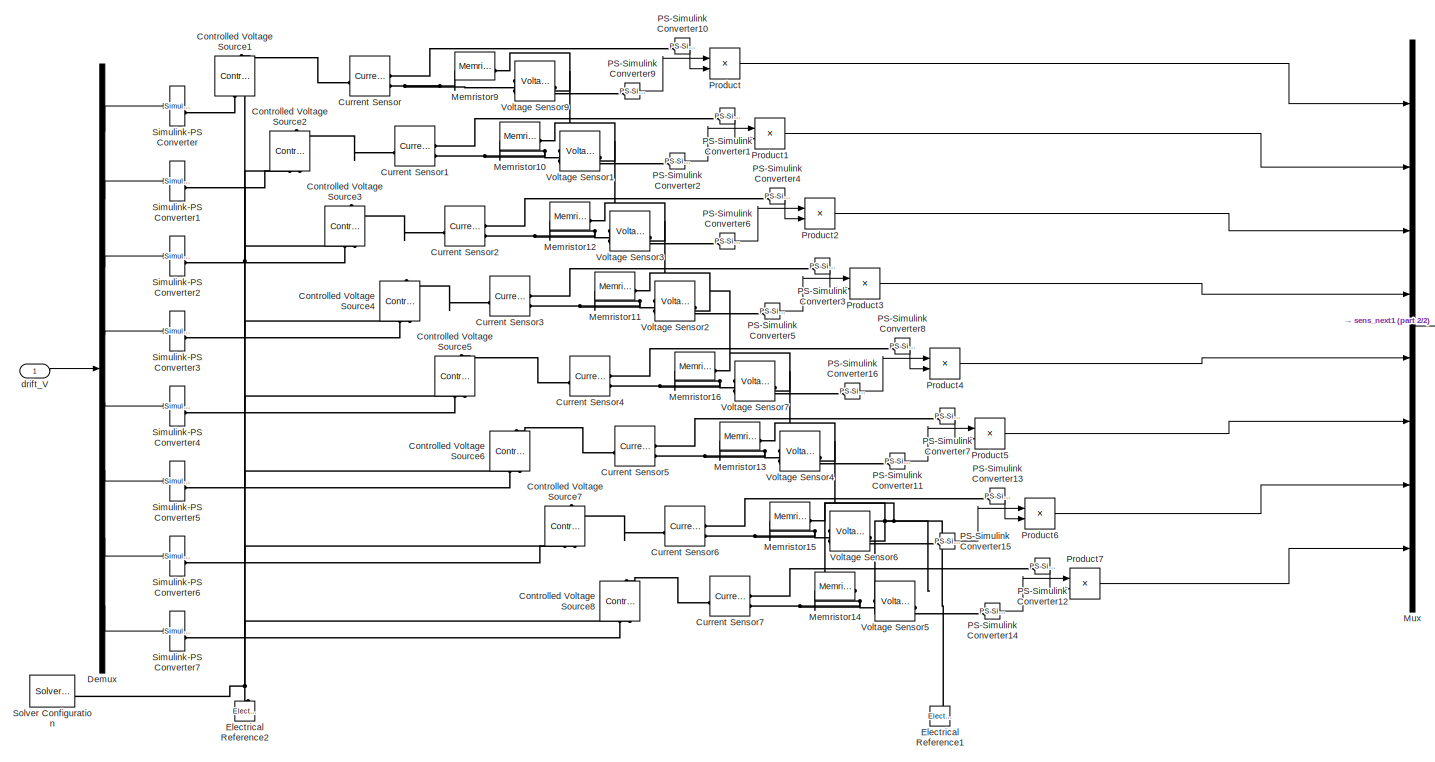
[diagram: strain_sensors/drifting_strain_sensor/Long drift - part 1/2, most of the canvas]
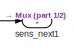
[diagram: strain_sensors/drifting_strain_sensor/Long drift - part 2/2, middle right region]
BLOCK [SubSystem] strain_sensors/drifting_strain_sensor/Long drift
BLOCK [Reference] strain_sensors/drifting_strain_sensor/Long drift/Controlled Voltage Source1  REF=fl_lib/Electrical/Electrical Sources/Controlled Voltage
Source
  NameLocation = right
  SourceBlock = fl_lib/Electrical/Electrical Sources/Controlled Voltage\nSource
  SourceType = Controlled Voltage\nSource
BLOCK [Reference] strain_sensors/drifting_strain_sensor/Long drift/Controlled Voltage Source2  REF=fl_lib/Electrical/Electrical Sources/Controlled Voltage
Source
  NameLocation = right
  SourceBlock = fl_lib/Electrical/Electrical Sources/Controlled Voltage\nSource
  SourceType = Controlled Voltage\nSource
BLOCK [Reference] strain_sensors/drifting_strain_sensor/Long drift/Controlled Voltage Source3  REF=fl_lib/Electrical/Electrical Sources/Controlled Voltage
Source
  NameLocation = right
  SourceBlock = fl_lib/Electrical/Electrical Sources/Controlled Voltage\nSource
  SourceType = Controlled Voltage\nSource
BLOCK [Reference] strain_sensors/drifting_strain_sensor/Long drift/Controlled Voltage Source4  REF=fl_lib/Electrical/Electrical Sources/Controlled Voltage
Source
  NameLocation = right
  SourceBlock = fl_lib/Electrical/Electrical Sources/Controlled Voltage\nSource
  SourceType = Controlled Voltage\nSource
BLOCK [Reference] strain_sensors/drifting_strain_sensor/Long drift/Controlled Voltage Source5  REF=fl_lib/Electrical/Electrical Sources/Controlled Voltage
Source
  NameLocation = right
  SourceBlock = fl_lib/Electrical/Electrical Sources/Controlled Voltage\nSource
  SourceType = Controlled Voltage\nSource
BLOCK [Reference] strain_sensors/drifting_strain_sensor/Long drift/Controlled Voltage Source6  REF=fl_lib/Electrical/Electrical Sources/Controlled Voltage
Source
  NameLocation = right
  SourceBlock = fl_lib/Electrical/Electrical Sources/Controlled Voltage\nSource
  SourceType = Controlled Voltage\nSource
BLOCK [Reference] strain_sensors/drifting_strain_sensor/Long drift/Controlled Voltage Source7  REF=fl_lib/Electrical/Electrical Sources/Controlled Voltage
Source
  NameLocation = right
  SourceBlock = fl_lib/Electrical/Electrical Sources/Controlled Voltage\nSource
  SourceType = Controlled Voltage\nSource
BLOCK [Reference] strain_sensors/drifting_strain_sensor/Long drift/Controlled Voltage Source8  REF=fl_lib/Electrical/Electrical Sources/Controlled Voltage
Source
  NameLocation = right
  SourceBlock = fl_lib/Electrical/Electrical Sources/Controlled Voltage\nSource
  SourceType = Controlled Voltage\nSource
BLOCK [Reference] strain_sensors/drifting_strain_sensor/Long drift/Current Sensor  REF=fl_lib/Electrical/Electrical Sensors/Current Sensor
  SourceBlock = fl_lib/Electrical/Electrical Sensors/Current Sensor
  SourceType = Current Sensor
BLOCK [Reference] strain_sensors/drifting_strain_sensor/Long drift/Current Sensor1  REF=fl_lib/Electrical/Electrical Sensors/Current Sensor
  SourceBlock = fl_lib/Electrical/Electrical Sensors/Current Sensor
  SourceType = Current Sensor
BLOCK [Reference] strain_sensors/drifting_strain_sensor/Long drift/Current Sensor2  REF=fl_lib/Electrical/Electrical Sensors/Current Sensor
  SourceBlock = fl_lib/Electrical/Electrical Sensors/Current Sensor
  SourceType = Current Sensor
BLOCK [Reference] strain_sensors/drifting_strain_sensor/Long drift/Current Sensor3  REF=fl_lib/Electrical/Electrical Sensors/Current Sensor
  SourceBlock = fl_lib/Electrical/Electrical Sensors/Current Sensor
  SourceType = Current Sensor
BLOCK [Reference] strain_sensors/drifting_strain_sensor/Long drift/Current Sensor4  REF=fl_lib/Electrical/Electrical Sensors/Current Sensor
  SourceBlock = fl_lib/Electrical/Electrical Sensors/Current Sensor
  SourceType = Current Sensor
BLOCK [Reference] strain_sensors/drifting_strain_sensor/Long drift/Current Sensor5  REF=fl_lib/Electrical/Electrical Sensors/Current Sensor
  SourceBlock = fl_lib/Electrical/Electrical Sensors/Current Sensor
  SourceType = Current Sensor
BLOCK [Reference] strain_sensors/drifting_strain_sensor/Long drift/Current Sensor6  REF=fl_lib/Electrical/Electrical Sensors/Current Sensor
  SourceBlock = fl_lib/Electrical/Electrical Sensors/Current Sensor
  SourceType = Current Sensor
BLOCK [Reference] strain_sensors/drifting_strain_sensor/Long drift/Current Sensor7  REF=fl_lib/Electrical/Electrical Sensors/Current Sensor
  SourceBlock = fl_lib/Electrical/Electrical Sensors/Current Sensor
  SourceType = Current Sensor
BLOCK [Demux] strain_sensors/drifting_strain_sensor/Long drift/Demux
  Outputs = 8
BLOCK [Reference] strain_sensors/drifting_strain_sensor/Long drift/Electrical Reference1  REF=fl_lib/Electrical/Electrical Elements/Electrical Reference
  NameLocation = right
  SourceBlock = fl_lib/Electrical/Electrical Elements/Electrical Reference
  SourceType = Electrical Reference
BLOCK [Reference] strain_sensors/drifting_strain_sensor/Long drift/Electrical Reference2  REF=fl_lib/Electrical/Electrical Elements/Electrical Reference
  NameLocation = right
  SourceBlock = fl_lib/Electrical/Electrical Elements/Electrical Reference
  SourceType = Electrical Reference
BLOCK [Reference] strain_sensors/drifting_strain_sensor/Long drift/Memristor10  REF=fl_lib/Electrical/Electrical Elements/Memristor
  SourceBlock = fl_lib/Electrical/Electrical Elements/Memristor
  SourceType = Memristor
BLOCK [Reference] strain_sensors/drifting_strain_sensor/Long drift/Memristor11  REF=fl_lib/Electrical/Electrical Elements/Memristor
  SourceBlock = fl_lib/Electrical/Electrical Elements/Memristor
  SourceType = Memristor
BLOCK [Reference] strain_sensors/drifting_strain_sensor/Long drift/Memristor12  REF=fl_lib/Electrical/Electrical Elements/Memristor
  SourceBlock = fl_lib/Electrical/Electrical Elements/Memristor
  SourceType = Memristor
BLOCK [Reference] strain_sensors/drifting_strain_sensor/Long drift/Memristor13  REF=fl_lib/Electrical/Electrical Elements/Memristor
  SourceBlock = fl_lib/Electrical/Electrical Elements/Memristor
  SourceType = Memristor
BLOCK [Reference] strain_sensors/drifting_strain_sensor/Long drift/Memristor14  REF=fl_lib/Electrical/Electrical Elements/Memristor
  SourceBlock = fl_lib/Electrical/Electrical Elements/Memristor
  SourceType = Memristor
BLOCK [Reference] strain_sensors/drifting_strain_sensor/Long drift/Memristor15  REF=fl_lib/Electrical/Electrical Elements/Memristor
  SourceBlock = fl_lib/Electrical/Electrical Elements/Memristor
  SourceType = Memristor
BLOCK [Reference] strain_sensors/drifting_strain_sensor/Long drift/Memristor16  REF=fl_lib/Electrical/Electrical Elements/Memristor
  SourceBlock = fl_lib/Electrical/Electrical Elements/Memristor
  SourceType = Memristor
BLOCK [Reference] strain_sensors/drifting_strain_sensor/Long drift/Memristor9  REF=fl_lib/Electrical/Electrical Elements/Memristor
  SourceBlock = fl_lib/Electrical/Electrical Elements/Memristor
  SourceType = Memristor
BLOCK [Mux] strain_sensors/drifting_strain_sensor/Long drift/Mux
  DisplayOption = bar
  Inputs = 8
BLOCK [Reference] strain_sensors/drifting_strain_sensor/Long drift/PS-Simulink Converter1  REF=nesl_utility/PS-Simulink
Converter
  SourceBlock = nesl_utility/PS-Simulink\nConverter
  SourceType = PS-Simulink\nConverter
BLOCK [Reference] strain_sensors/drifting_strain_sensor/Long drift/PS-Simulink Converter10  REF=nesl_utility/PS-Simulink
Converter
  SourceBlock = nesl_utility/PS-Simulink\nConverter
  SourceType = PS-Simulink\nConverter
BLOCK [Reference] strain_sensors/drifting_strain_sensor/Long drift/PS-Simulink Converter11  REF=nesl_utility/PS-Simulink
Converter
  SourceBlock = nesl_utility/PS-Simulink\nConverter
  SourceType = PS-Simulink\nConverter
BLOCK [Reference] strain_sensors/drifting_strain_sensor/Long drift/PS-Simulink Converter12  REF=nesl_utility/PS-Simulink
Converter
  SourceBlock = nesl_utility/PS-Simulink\nConverter
  SourceType = PS-Simulink\nConverter
BLOCK [Reference] strain_sensors/drifting_strain_sensor/Long drift/PS-Simulink Converter13  REF=nesl_utility/PS-Simulink
Converter
  SourceBlock = nesl_utility/PS-Simulink\nConverter
  SourceType = PS-Simulink\nConverter
BLOCK [Reference] strain_sensors/drifting_strain_sensor/Long drift/PS-Simulink Converter14  REF=nesl_utility/PS-Simulink
Converter
  SourceBlock = nesl_utility/PS-Simulink\nConverter
  SourceType = PS-Simulink\nConverter
BLOCK [Reference] strain_sensors/drifting_strain_sensor/Long drift/PS-Simulink Converter15  REF=nesl_utility/PS-Simulink
Converter
  SourceBlock = nesl_utility/PS-Simulink\nConverter
  SourceType = PS-Simulink\nConverter
BLOCK [Reference] strain_sensors/drifting_strain_sensor/Long drift/PS-Simulink Converter16  REF=nesl_utility/PS-Simulink
Converter
  SourceBlock = nesl_utility/PS-Simulink\nConverter
  SourceType = PS-Simulink\nConverter
BLOCK [Reference] strain_sensors/drifting_strain_sensor/Long drift/PS-Simulink Converter2  REF=nesl_utility/PS-Simulink
Converter
  SourceBlock = nesl_utility/PS-Simulink\nConverter
  SourceType = PS-Simulink\nConverter
BLOCK [Reference] strain_sensors/drifting_strain_sensor/Long drift/PS-Simulink Converter3  REF=nesl_utility/PS-Simulink
Converter
  SourceBlock = nesl_utility/PS-Simulink\nConverter
  SourceType = PS-Simulink\nConverter
BLOCK [Reference] strain_sensors/drifting_strain_sensor/Long drift/PS-Simulink Converter4  REF=nesl_utility/PS-Simulink
Converter
  SourceBlock = nesl_utility/PS-Simulink\nConverter
  SourceType = PS-Simulink\nConverter
BLOCK [Reference] strain_sensors/drifting_strain_sensor/Long drift/PS-Simulink Converter5  REF=nesl_utility/PS-Simulink
Converter
  SourceBlock = nesl_utility/PS-Simulink\nConverter
  SourceType = PS-Simulink\nConverter
BLOCK [Reference] strain_sensors/drifting_strain_sensor/Long drift/PS-Simulink Converter6  REF=nesl_utility/PS-Simulink
Converter
  SourceBlock = nesl_utility/PS-Simulink\nConverter
  SourceType = PS-Simulink\nConverter
BLOCK [Reference] strain_sensors/drifting_strain_sensor/Long drift/PS-Simulink Converter7  REF=nesl_utility/PS-Simulink
Converter
  SourceBlock = nesl_utility/PS-Simulink\nConverter
  SourceType = PS-Simulink\nConverter
BLOCK [Reference] strain_sensors/drifting_strain_sensor/Long drift/PS-Simulink Converter8  REF=nesl_utility/PS-Simulink
Converter
  SourceBlock = nesl_utility/PS-Simulink\nConverter
  SourceType = PS-Simulink\nConverter
BLOCK [Reference] strain_sensors/drifting_strain_sensor/Long drift/PS-Simulink Converter9  REF=nesl_utility/PS-Simulink
Converter
  SourceBlock = nesl_utility/PS-Simulink\nConverter
  SourceType = PS-Simulink\nConverter
BLOCK [Product] strain_sensors/drifting_strain_sensor/Long drift/Product
  Inputs = */
BLOCK [Product] strain_sensors/drifting_strain_sensor/Long drift/Product1
  Inputs = */
BLOCK [Product] strain_sensors/drifting_strain_sensor/Long drift/Product2
  Inputs = */
BLOCK [Product] strain_sensors/drifting_strain_sensor/Long drift/Product3
  Inputs = */
BLOCK [Product] strain_sensors/drifting_strain_sensor/Long drift/Product4
  Inputs = */
BLOCK [Product] strain_sensors/drifting_strain_sensor/Long drift/Product5
  Inputs = */
BLOCK [Product] strain_sensors/drifting_strain_sensor/Long drift/Product6
  Inputs = */
BLOCK [Product] strain_sensors/drifting_strain_sensor/Long drift/Product7
  Inputs = */
BLOCK [Reference] strain_sensors/drifting_strain_sensor/Long drift/Simulink-PS Converter  REF=nesl_utility/Simulink-PS
Converter
  SourceBlock = nesl_utility/Simulink-PS\nConverter
  SourceType = Simulink-PS\nConverter
BLOCK [Reference] strain_sensors/drifting_strain_sensor/Long drift/Simulink-PS Converter1  REF=nesl_utility/Simulink-PS
Converter
  SourceBlock = nesl_utility/Simulink-PS\nConverter
  SourceType = Simulink-PS\nConverter
BLOCK [Reference] strain_sensors/drifting_strain_sensor/Long drift/Simulink-PS Converter2  REF=nesl_utility/Simulink-PS
Converter
  SourceBlock = nesl_utility/Simulink-PS\nConverter
  SourceType = Simulink-PS\nConverter
BLOCK [Reference] strain_sensors/drifting_strain_sensor/Long drift/Simulink-PS Converter3  REF=nesl_utility/Simulink-PS
Converter
  SourceBlock = nesl_utility/Simulink-PS\nConverter
  SourceType = Simulink-PS\nConverter
BLOCK [Reference] strain_sensors/drifting_strain_sensor/Long drift/Simulink-PS Converter4  REF=nesl_utility/Simulink-PS
Converter
  SourceBlock = nesl_utility/Simulink-PS\nConverter
  SourceType = Simulink-PS\nConverter
BLOCK [Reference] strain_sensors/drifting_strain_sensor/Long drift/Simulink-PS Converter5  REF=nesl_utility/Simulink-PS
Converter
  SourceBlock = nesl_utility/Simulink-PS\nConverter
  SourceType = Simulink-PS\nConverter
BLOCK [Reference] strain_sensors/drifting_strain_sensor/Long drift/Simulink-PS Converter6  REF=nesl_utility/Simulink-PS
Converter
  SourceBlock = nesl_utility/Simulink-PS\nConverter
  SourceType = Simulink-PS\nConverter
BLOCK [Reference] strain_sensors/drifting_strain_sensor/Long drift/Simulink-PS Converter7  REF=nesl_utility/Simulink-PS
Converter
  SourceBlock = nesl_utility/Simulink-PS\nConverter
  SourceType = Simulink-PS\nConverter
BLOCK [Reference] strain_sensors/drifting_strain_sensor/Long drift/Solver Configuration  REF=nesl_utility/Solver
Configuration
  SourceBlock = nesl_utility/Solver\nConfiguration
  SourceType = Solver\nConfiguration
BLOCK [Reference] strain_sensors/drifting_strain_sensor/Long drift/Voltage Sensor1  REF=fl_lib/Electrical/Electrical Sensors/Voltage Sensor
  NameLocation = top
  SourceBlock = fl_lib/Electrical/Electrical Sensors/Voltage Sensor
  SourceType = Voltage Sensor
BLOCK [Reference] strain_sensors/drifting_strain_sensor/Long drift/Voltage Sensor2  REF=fl_lib/Electrical/Electrical Sensors/Voltage Sensor
  NameLocation = top
  SourceBlock = fl_lib/Electrical/Electrical Sensors/Voltage Sensor
  SourceType = Voltage Sensor
BLOCK [Reference] strain_sensors/drifting_strain_sensor/Long drift/Voltage Sensor3  REF=fl_lib/Electrical/Electrical Sensors/Voltage Sensor
  NameLocation = top
  SourceBlock = fl_lib/Electrical/Electrical Sensors/Voltage Sensor
  SourceType = Voltage Sensor
BLOCK [Reference] strain_sensors/drifting_strain_sensor/Long drift/Voltage Sensor4  REF=fl_lib/Electrical/Electrical Sensors/Voltage Sensor
  NameLocation = top
  SourceBlock = fl_lib/Electrical/Electrical Sensors/Voltage Sensor
  SourceType = Voltage Sensor
BLOCK [Reference] strain_sensors/drifting_strain_sensor/Long drift/Voltage Sensor5  REF=fl_lib/Electrical/Electrical Sensors/Voltage Sensor
  NameLocation = top
  SourceBlock = fl_lib/Electrical/Electrical Sensors/Voltage Sensor
  SourceType = Voltage Sensor
BLOCK [Reference] strain_sensors/drifting_strain_sensor/Long drift/Voltage Sensor6  REF=fl_lib/Electrical/Electrical Sensors/Voltage Sensor
  NameLocation = top
  SourceBlock = fl_lib/Electrical/Electrical Sensors/Voltage Sensor
  SourceType = Voltage Sensor
BLOCK [Reference] strain_sensors/drifting_strain_sensor/Long drift/Voltage Sensor7  REF=fl_lib/Electrical/Electrical Sensors/Voltage Sensor
  NameLocation = top
  SourceBlock = fl_lib/Electrical/Electrical Sensors/Voltage Sensor
  SourceType = Voltage Sensor
BLOCK [Reference] strain_sensors/drifting_strain_sensor/Long drift/Voltage Sensor9  REF=fl_lib/Electrical/Electrical Sensors/Voltage Sensor
  NameLocation = top
  SourceBlock = fl_lib/Electrical/Electrical Sensors/Voltage Sensor
  SourceType = Voltage Sensor
BLOCK [Inport] strain_sensors/drifting_strain_sensor/Long drift/drift_V
BLOCK [Outport] strain_sensors/drifting_strain_sensor/Long drift/sens_next1
BLOCK [SubSystem] strain_sensors/drifting_strain_sensor/MATLAB Function3
  ErrorFcn = Stateflow.Translate.translate
  PermitHierarchicalResolution = ExplicitOnly
  SFBlockType = MATLAB Function
  TreatAsAtomicUnit = on
BLOCK [Demux] strain_sensors/drifting_strain_sensor/MATLAB Function3/ Demux 
  Outputs = 1
BLOCK [S-Function] strain_sensors/drifting_strain_sensor/MATLAB Function3/ SFunction 
  EnableBusSupport = off
  FunctionName = sf_sfun
  PortCounts = [3 2]
  SFcnIsStateOwnerBlock = off
  SFunctionDeploymentMode = off
  Tag = Stateflow S-Function 6
BLOCK [Terminator] strain_sensors/drifting_strain_sensor/MATLAB Function3/ Terminator 
BLOCK [Inport] strain_sensors/drifting_strain_sensor/MATLAB Function3/angles
BLOCK [Inport] strain_sensors/drifting_strain_sensor/MATLAB Function3/angles_zero
  Port = 3
BLOCK [Outport] strain_sensors/drifting_strain_sensor/MATLAB Function3/sensor_lengths
BLOCK [Inport] strain_sensors/drifting_strain_sensor/MATLAB Function3/sensor_locs
  Port = 2
BLOCK [SubSystem] strain_sensors/drifting_strain_sensor/MATLAB Function4
  ErrorFcn = Stateflow.Translate.translate
  PermitHierarchicalResolution = ExplicitOnly
  SFBlockType = MATLAB Function
  TreatAsAtomicUnit = on
BLOCK [Demux] strain_sensors/drifting_strain_sensor/MATLAB Function4/ Demux 
  Outputs = 1
BLOCK [S-Function] strain_sensors/drifting_strain_sensor/MATLAB Function4/ SFunction 
  EnableBusSupport = off
  FunctionName = sf_sfun
  PortCounts = [4 6]
  SFcnIsStateOwnerBlock = off
  SFunctionDeploymentMode = off
  Tag = Stateflow S-Function 7
BLOCK [Terminator] strain_sensors/drifting_strain_sensor/MATLAB Function4/ Terminator 
BLOCK [Inport] strain_sensors/drifting_strain_sensor/MATLAB Function4/R_now
  Port = 3
BLOCK [Inport] strain_sensors/drifting_strain_sensor/MATLAB Function4/drift_now
  Port = 4
BLOCK [Outport] strain_sensors/drifting_strain_sensor/MATLAB Function4/ldrift_V
  Port = 5
BLOCK [Outport] strain_sensors/drifting_strain_sensor/MATLAB Function4/sdrift_V
  Port = 4
BLOCK [Inport] strain_sensors/drifting_strain_sensor/MATLAB Function4/sensor_lengths
BLOCK [Outport] strain_sensors/drifting_strain_sensor/MATLAB Function4/sensor_out
BLOCK [Outport] strain_sensors/drifting_strain_sensor/MATLAB Function4/sensor_r
  Port = 2
BLOCK [Outport] strain_sensors/drifting_strain_sensor/MATLAB Function4/tzero_voltageout
  Port = 3
BLOCK [Inport] strain_sensors/drifting_strain_sensor/MATLAB Function4/tzero_voltages
  Port = 2
BLOCK [RateTransition] strain_sensors/drifting_strain_sensor/Rate Transition1
  InitialCondition = 0;
  OutPortSampleTime = 1/cf;
BLOCK [RateTransition] strain_sensors/drifting_strain_sensor/Rate Transition3
  InitialCondition = ones(1,8)*5
  OutPortSampleTime = 1/cf;
BLOCK [RateTransition] strain_sensors/drifting_strain_sensor/Rate Transition4
  InitialCondition = ones(1,8)*5
  OutPortSampleTime = 1/cf;
BLOCK [RateTransition] strain_sensors/drifting_strain_sensor/Rate Transition5
  InitialCondition = ones(1,8)*5
  OutPortSampleTime = 1/cf;
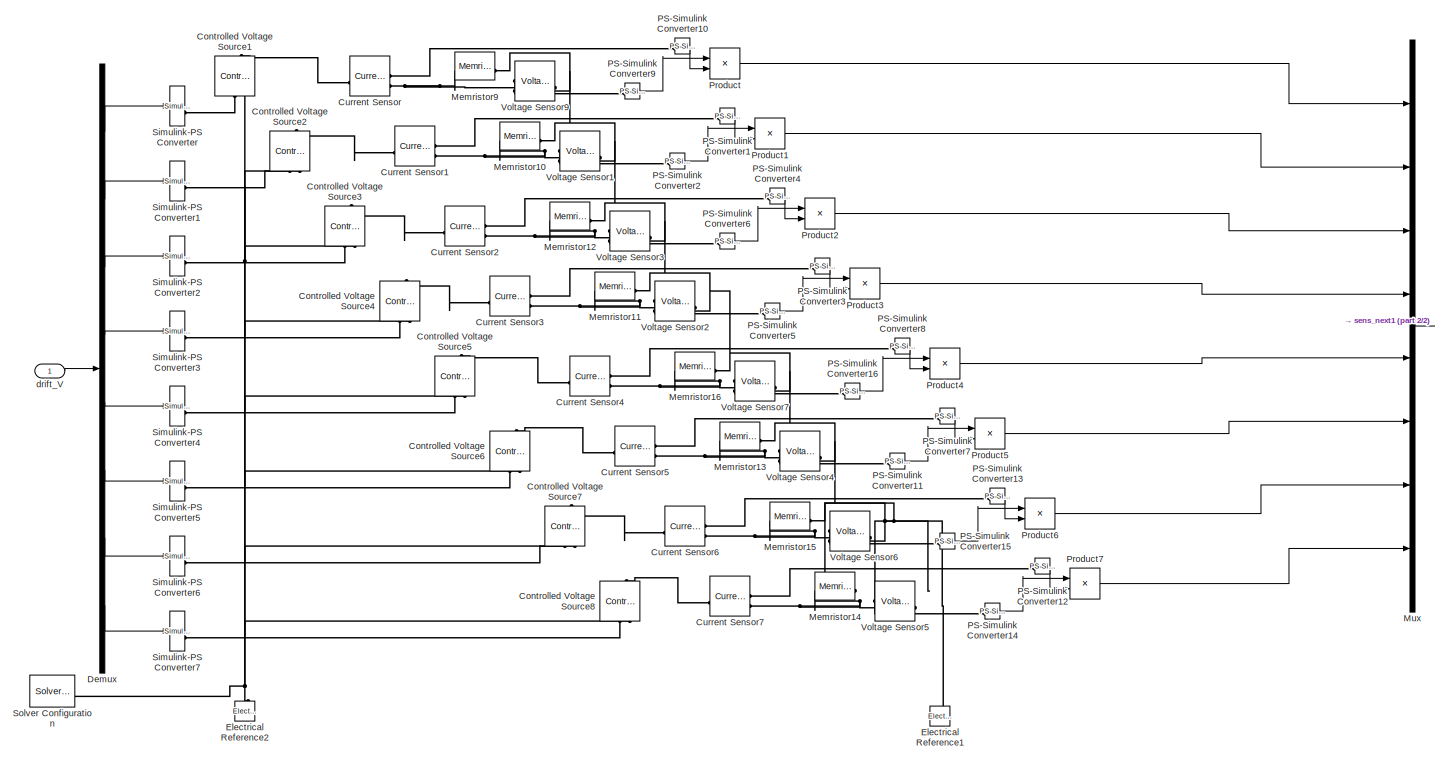
[diagram: strain_sensors/drifting_strain_sensor/Short drift - part 1/2, most of the canvas]
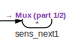
[diagram: strain_sensors/drifting_strain_sensor/Short drift - part 2/2, middle right region]
BLOCK [SubSystem] strain_sensors/drifting_strain_sensor/Short drift
BLOCK [Reference] strain_sensors/drifting_strain_sensor/Short drift/Controlled Voltage Source1  REF=fl_lib/Electrical/Electrical Sources/Controlled Voltage
Source
  NameLocation = right
  SourceBlock = fl_lib/Electrical/Electrical Sources/Controlled Voltage\nSource
  SourceType = Controlled Voltage\nSource
BLOCK [Reference] strain_sensors/drifting_strain_sensor/Short drift/Controlled Voltage Source2  REF=fl_lib/Electrical/Electrical Sources/Controlled Voltage
Source
  NameLocation = right
  SourceBlock = fl_lib/Electrical/Electrical Sources/Controlled Voltage\nSource
  SourceType = Controlled Voltage\nSource
BLOCK [Reference] strain_sensors/drifting_strain_sensor/Short drift/Controlled Voltage Source3  REF=fl_lib/Electrical/Electrical Sources/Controlled Voltage
Source
  NameLocation = right
  SourceBlock = fl_lib/Electrical/Electrical Sources/Controlled Voltage\nSource
  SourceType = Controlled Voltage\nSource
BLOCK [Reference] strain_sensors/drifting_strain_sensor/Short drift/Controlled Voltage Source4  REF=fl_lib/Electrical/Electrical Sources/Controlled Voltage
Source
  NameLocation = right
  SourceBlock = fl_lib/Electrical/Electrical Sources/Controlled Voltage\nSource
  SourceType = Controlled Voltage\nSource
BLOCK [Reference] strain_sensors/drifting_strain_sensor/Short drift/Controlled Voltage Source5  REF=fl_lib/Electrical/Electrical Sources/Controlled Voltage
Source
  NameLocation = right
  SourceBlock = fl_lib/Electrical/Electrical Sources/Controlled Voltage\nSource
  SourceType = Controlled Voltage\nSource
BLOCK [Reference] strain_sensors/drifting_strain_sensor/Short drift/Controlled Voltage Source6  REF=fl_lib/Electrical/Electrical Sources/Controlled Voltage
Source
  NameLocation = right
  SourceBlock = fl_lib/Electrical/Electrical Sources/Controlled Voltage\nSource
  SourceType = Controlled Voltage\nSource
BLOCK [Reference] strain_sensors/drifting_strain_sensor/Short drift/Controlled Voltage Source7  REF=fl_lib/Electrical/Electrical Sources/Controlled Voltage
Source
  NameLocation = right
  SourceBlock = fl_lib/Electrical/Electrical Sources/Controlled Voltage\nSource
  SourceType = Controlled Voltage\nSource
BLOCK [Reference] strain_sensors/drifting_strain_sensor/Short drift/Controlled Voltage Source8  REF=fl_lib/Electrical/Electrical Sources/Controlled Voltage
Source
  NameLocation = right
  SourceBlock = fl_lib/Electrical/Electrical Sources/Controlled Voltage\nSource
  SourceType = Controlled Voltage\nSource
BLOCK [Reference] strain_sensors/drifting_strain_sensor/Short drift/Current Sensor  REF=fl_lib/Electrical/Electrical Sensors/Current Sensor
  SourceBlock = fl_lib/Electrical/Electrical Sensors/Current Sensor
  SourceType = Current Sensor
BLOCK [Reference] strain_sensors/drifting_strain_sensor/Short drift/Current Sensor1  REF=fl_lib/Electrical/Electrical Sensors/Current Sensor
  SourceBlock = fl_lib/Electrical/Electrical Sensors/Current Sensor
  SourceType = Current Sensor
BLOCK [Reference] strain_sensors/drifting_strain_sensor/Short drift/Current Sensor2  REF=fl_lib/Electrical/Electrical Sensors/Current Sensor
  SourceBlock = fl_lib/Electrical/Electrical Sensors/Current Sensor
  SourceType = Current Sensor
BLOCK [Reference] strain_sensors/drifting_strain_sensor/Short drift/Current Sensor3  REF=fl_lib/Electrical/Electrical Sensors/Current Sensor
  SourceBlock = fl_lib/Electrical/Electrical Sensors/Current Sensor
  SourceType = Current Sensor
BLOCK [Reference] strain_sensors/drifting_strain_sensor/Short drift/Current Sensor4  REF=fl_lib/Electrical/Electrical Sensors/Current Sensor
  SourceBlock = fl_lib/Electrical/Electrical Sensors/Current Sensor
  SourceType = Current Sensor
BLOCK [Reference] strain_sensors/drifting_strain_sensor/Short drift/Current Sensor5  REF=fl_lib/Electrical/Electrical Sensors/Current Sensor
  SourceBlock = fl_lib/Electrical/Electrical Sensors/Current Sensor
  SourceType = Current Sensor
BLOCK [Reference] strain_sensors/drifting_strain_sensor/Short drift/Current Sensor6  REF=fl_lib/Electrical/Electrical Sensors/Current Sensor
  SourceBlock = fl_lib/Electrical/Electrical Sensors/Current Sensor
  SourceType = Current Sensor
BLOCK [Reference] strain_sensors/drifting_strain_sensor/Short drift/Current Sensor7  REF=fl_lib/Electrical/Electrical Sensors/Current Sensor
  SourceBlock = fl_lib/Electrical/Electrical Sensors/Current Sensor
  SourceType = Current Sensor
BLOCK [Demux] strain_sensors/drifting_strain_sensor/Short drift/Demux
  Outputs = 8
BLOCK [Reference] strain_sensors/drifting_strain_sensor/Short drift/Electrical Reference1  REF=fl_lib/Electrical/Electrical Elements/Electrical Reference
  NameLocation = right
  SourceBlock = fl_lib/Electrical/Electrical Elements/Electrical Reference
  SourceType = Electrical Reference
BLOCK [Reference] strain_sensors/drifting_strain_sensor/Short drift/Electrical Reference2  REF=fl_lib/Electrical/Electrical Elements/Electrical Reference
  NameLocation = right
  SourceBlock = fl_lib/Electrical/Electrical Elements/Electrical Reference
  SourceType = Electrical Reference
BLOCK [Reference] strain_sensors/drifting_strain_sensor/Short drift/Memristor10  REF=fl_lib/Electrical/Electrical Elements/Memristor
  SourceBlock = fl_lib/Electrical/Electrical Elements/Memristor
  SourceType = Memristor
BLOCK [Reference] strain_sensors/drifting_strain_sensor/Short drift/Memristor11  REF=fl_lib/Electrical/Electrical Elements/Memristor
  SourceBlock = fl_lib/Electrical/Electrical Elements/Memristor
  SourceType = Memristor
BLOCK [Reference] strain_sensors/drifting_strain_sensor/Short drift/Memristor12  REF=fl_lib/Electrical/Electrical Elements/Memristor
  SourceBlock = fl_lib/Electrical/Electrical Elements/Memristor
  SourceType = Memristor
BLOCK [Reference] strain_sensors/drifting_strain_sensor/Short drift/Memristor13  REF=fl_lib/Electrical/Electrical Elements/Memristor
  SourceBlock = fl_lib/Electrical/Electrical Elements/Memristor
  SourceType = Memristor
BLOCK [Reference] strain_sensors/drifting_strain_sensor/Short drift/Memristor14  REF=fl_lib/Electrical/Electrical Elements/Memristor
  SourceBlock = fl_lib/Electrical/Electrical Elements/Memristor
  SourceType = Memristor
BLOCK [Reference] strain_sensors/drifting_strain_sensor/Short drift/Memristor15  REF=fl_lib/Electrical/Electrical Elements/Memristor
  SourceBlock = fl_lib/Electrical/Electrical Elements/Memristor
  SourceType = Memristor
BLOCK [Reference] strain_sensors/drifting_strain_sensor/Short drift/Memristor16  REF=fl_lib/Electrical/Electrical Elements/Memristor
  SourceBlock = fl_lib/Electrical/Electrical Elements/Memristor
  SourceType = Memristor
BLOCK [Reference] strain_sensors/drifting_strain_sensor/Short drift/Memristor9  REF=fl_lib/Electrical/Electrical Elements/Memristor
  SourceBlock = fl_lib/Electrical/Electrical Elements/Memristor
  SourceType = Memristor
BLOCK [Mux] strain_sensors/drifting_strain_sensor/Short drift/Mux
  DisplayOption = bar
  Inputs = 8
BLOCK [Reference] strain_sensors/drifting_strain_sensor/Short drift/PS-Simulink Converter1  REF=nesl_utility/PS-Simulink
Converter
  SourceBlock = nesl_utility/PS-Simulink\nConverter
  SourceType = PS-Simulink\nConverter
BLOCK [Reference] strain_sensors/drifting_strain_sensor/Short drift/PS-Simulink Converter10  REF=nesl_utility/PS-Simulink
Converter
  SourceBlock = nesl_utility/PS-Simulink\nConverter
  SourceType = PS-Simulink\nConverter
BLOCK [Reference] strain_sensors/drifting_strain_sensor/Short drift/PS-Simulink Converter11  REF=nesl_utility/PS-Simulink
Converter
  SourceBlock = nesl_utility/PS-Simulink\nConverter
  SourceType = PS-Simulink\nConverter
BLOCK [Reference] strain_sensors/drifting_strain_sensor/Short drift/PS-Simulink Converter12  REF=nesl_utility/PS-Simulink
Converter
  SourceBlock = nesl_utility/PS-Simulink\nConverter
  SourceType = PS-Simulink\nConverter
BLOCK [Reference] strain_sensors/drifting_strain_sensor/Short drift/PS-Simulink Converter13  REF=nesl_utility/PS-Simulink
Converter
  SourceBlock = nesl_utility/PS-Simulink\nConverter
  SourceType = PS-Simulink\nConverter
BLOCK [Reference] strain_sensors/drifting_strain_sensor/Short drift/PS-Simulink Converter14  REF=nesl_utility/PS-Simulink
Converter
  SourceBlock = nesl_utility/PS-Simulink\nConverter
  SourceType = PS-Simulink\nConverter
BLOCK [Reference] strain_sensors/drifting_strain_sensor/Short drift/PS-Simulink Converter15  REF=nesl_utility/PS-Simulink
Converter
  SourceBlock = nesl_utility/PS-Simulink\nConverter
  SourceType = PS-Simulink\nConverter
BLOCK [Reference] strain_sensors/drifting_strain_sensor/Short drift/PS-Simulink Converter16  REF=nesl_utility/PS-Simulink
Converter
  SourceBlock = nesl_utility/PS-Simulink\nConverter
  SourceType = PS-Simulink\nConverter
BLOCK [Reference] strain_sensors/drifting_strain_sensor/Short drift/PS-Simulink Converter2  REF=nesl_utility/PS-Simulink
Converter
  SourceBlock = nesl_utility/PS-Simulink\nConverter
  SourceType = PS-Simulink\nConverter
BLOCK [Reference] strain_sensors/drifting_strain_sensor/Short drift/PS-Simulink Converter3  REF=nesl_utility/PS-Simulink
Converter
  SourceBlock = nesl_utility/PS-Simulink\nConverter
  SourceType = PS-Simulink\nConverter
BLOCK [Reference] strain_sensors/drifting_strain_sensor/Short drift/PS-Simulink Converter4  REF=nesl_utility/PS-Simulink
Converter
  SourceBlock = nesl_utility/PS-Simulink\nConverter
  SourceType = PS-Simulink\nConverter
BLOCK [Reference] strain_sensors/drifting_strain_sensor/Short drift/PS-Simulink Converter5  REF=nesl_utility/PS-Simulink
Converter
  SourceBlock = nesl_utility/PS-Simulink\nConverter
  SourceType = PS-Simulink\nConverter
BLOCK [Reference] strain_sensors/drifting_strain_sensor/Short drift/PS-Simulink Converter6  REF=nesl_utility/PS-Simulink
Converter
  SourceBlock = nesl_utility/PS-Simulink\nConverter
  SourceType = PS-Simulink\nConverter
BLOCK [Reference] strain_sensors/drifting_strain_sensor/Short drift/PS-Simulink Converter7  REF=nesl_utility/PS-Simulink
Converter
  SourceBlock = nesl_utility/PS-Simulink\nConverter
  SourceType = PS-Simulink\nConverter
BLOCK [Reference] strain_sensors/drifting_strain_sensor/Short drift/PS-Simulink Converter8  REF=nesl_utility/PS-Simulink
Converter
  SourceBlock = nesl_utility/PS-Simulink\nConverter
  SourceType = PS-Simulink\nConverter
BLOCK [Reference] strain_sensors/drifting_strain_sensor/Short drift/PS-Simulink Converter9  REF=nesl_utility/PS-Simulink
Converter
  SourceBlock = nesl_utility/PS-Simulink\nConverter
  SourceType = PS-Simulink\nConverter
BLOCK [Product] strain_sensors/drifting_strain_sensor/Short drift/Product
  Inputs = */
BLOCK [Product] strain_sensors/drifting_strain_sensor/Short drift/Product1
  Inputs = */
BLOCK [Product] strain_sensors/drifting_strain_sensor/Short drift/Product2
  Inputs = */
BLOCK [Product] strain_sensors/drifting_strain_sensor/Short drift/Product3
  Inputs = */
BLOCK [Product] strain_sensors/drifting_strain_sensor/Short drift/Product4
  Inputs = */
BLOCK [Product] strain_sensors/drifting_strain_sensor/Short drift/Product5
  Inputs = */
BLOCK [Product] strain_sensors/drifting_strain_sensor/Short drift/Product6
  Inputs = */
BLOCK [Product] strain_sensors/drifting_strain_sensor/Short drift/Product7
  Inputs = */
BLOCK [Reference] strain_sensors/drifting_strain_sensor/Short drift/Simulink-PS Converter  REF=nesl_utility/Simulink-PS
Converter
  SourceBlock = nesl_utility/Simulink-PS\nConverter
  SourceType = Simulink-PS\nConverter
BLOCK [Reference] strain_sensors/drifting_strain_sensor/Short drift/Simulink-PS Converter1  REF=nesl_utility/Simulink-PS
Converter
  SourceBlock = nesl_utility/Simulink-PS\nConverter
  SourceType = Simulink-PS\nConverter
BLOCK [Reference] strain_sensors/drifting_strain_sensor/Short drift/Simulink-PS Converter2  REF=nesl_utility/Simulink-PS
Converter
  SourceBlock = nesl_utility/Simulink-PS\nConverter
  SourceType = Simulink-PS\nConverter
BLOCK [Reference] strain_sensors/drifting_strain_sensor/Short drift/Simulink-PS Converter3  REF=nesl_utility/Simulink-PS
Converter
  SourceBlock = nesl_utility/Simulink-PS\nConverter
  SourceType = Simulink-PS\nConverter
BLOCK [Reference] strain_sensors/drifting_strain_sensor/Short drift/Simulink-PS Converter4  REF=nesl_utility/Simulink-PS
Converter
  SourceBlock = nesl_utility/Simulink-PS\nConverter
  SourceType = Simulink-PS\nConverter
BLOCK [Reference] strain_sensors/drifting_strain_sensor/Short drift/Simulink-PS Converter5  REF=nesl_utility/Simulink-PS
Converter
  SourceBlock = nesl_utility/Simulink-PS\nConverter
  SourceType = Simulink-PS\nConverter
BLOCK [Reference] strain_sensors/drifting_strain_sensor/Short drift/Simulink-PS Converter6  REF=nesl_utility/Simulink-PS
Converter
  SourceBlock = nesl_utility/Simulink-PS\nConverter
  SourceType = Simulink-PS\nConverter
BLOCK [Reference] strain_sensors/drifting_strain_sensor/Short drift/Simulink-PS Converter7  REF=nesl_utility/Simulink-PS
Converter
  SourceBlock = nesl_utility/Simulink-PS\nConverter
  SourceType = Simulink-PS\nConverter
BLOCK [Reference] strain_sensors/drifting_strain_sensor/Short drift/Solver Configuration  REF=nesl_utility/Solver
Configuration
  SourceBlock = nesl_utility/Solver\nConfiguration
  SourceType = Solver\nConfiguration
BLOCK [Reference] strain_sensors/drifting_strain_sensor/Short drift/Voltage Sensor1  REF=fl_lib/Electrical/Electrical Sensors/Voltage Sensor
  NameLocation = top
  SourceBlock = fl_lib/Electrical/Electrical Sensors/Voltage Sensor
  SourceType = Voltage Sensor
BLOCK [Reference] strain_sensors/drifting_strain_sensor/Short drift/Voltage Sensor2  REF=fl_lib/Electrical/Electrical Sensors/Voltage Sensor
  NameLocation = top
  SourceBlock = fl_lib/Electrical/Electrical Sensors/Voltage Sensor
  SourceType = Voltage Sensor
BLOCK [Reference] strain_sensors/drifting_strain_sensor/Short drift/Voltage Sensor3  REF=fl_lib/Electrical/Electrical Sensors/Voltage Sensor
  NameLocation = top
  SourceBlock = fl_lib/Electrical/Electrical Sensors/Voltage Sensor
  SourceType = Voltage Sensor
BLOCK [Reference] strain_sensors/drifting_strain_sensor/Short drift/Voltage Sensor4  REF=fl_lib/Electrical/Electrical Sensors/Voltage Sensor
  NameLocation = top
  SourceBlock = fl_lib/Electrical/Electrical Sensors/Voltage Sensor
  SourceType = Voltage Sensor
BLOCK [Reference] strain_sensors/drifting_strain_sensor/Short drift/Voltage Sensor5  REF=fl_lib/Electrical/Electrical Sensors/Voltage Sensor
  NameLocation = top
  SourceBlock = fl_lib/Electrical/Electrical Sensors/Voltage Sensor
  SourceType = Voltage Sensor
BLOCK [Reference] strain_sensors/drifting_strain_sensor/Short drift/Voltage Sensor6  REF=fl_lib/Electrical/Electrical Sensors/Voltage Sensor
  NameLocation = top
  SourceBlock = fl_lib/Electrical/Electrical Sensors/Voltage Sensor
  SourceType = Voltage Sensor
BLOCK [Reference] strain_sensors/drifting_strain_sensor/Short drift/Voltage Sensor7  REF=fl_lib/Electrical/Electrical Sensors/Voltage Sensor
  NameLocation = top
  SourceBlock = fl_lib/Electrical/Electrical Sensors/Voltage Sensor
  SourceType = Voltage Sensor
BLOCK [Reference] strain_sensors/drifting_strain_sensor/Short drift/Voltage Sensor9  REF=fl_lib/Electrical/Electrical Sensors/Voltage Sensor
  NameLocation = top
  SourceBlock = fl_lib/Electrical/Electrical Sensors/Voltage Sensor
  SourceType = Voltage Sensor
BLOCK [Inport] strain_sensors/drifting_strain_sensor/Short drift/drift_V
BLOCK [Outport] strain_sensors/drifting_strain_sensor/Short drift/sens_next1
BLOCK [Sum] strain_sensors/drifting_strain_sensor/Sum
  Inputs = ++|
BLOCK [Sum] strain_sensors/drifting_strain_sensor/Sum1
  Inputs = |++
BLOCK [Reference] strain_sensors/drifting_strain_sensor/disturbances  REF=simulink/Sources/Band-Limited
White Noise
  SourceBlock = simulink/Sources/Band-Limited\nWhite Noise
  SourceType = Band-Limited White Noise.
BLOCK [Inport] strain_sensors/drifting_strain_sensor/q
BLOCK [Outport] strain_sensors/drifting_strain_sensor/strain
BLOCK [Inport] strain_sensors/q
BLOCK [SubSystem] strain_sensors/ssc_strain_sensor
  VariantControl = sensor_choice == 2
BLOCK [RateTransition] strain_sensors/ssc_strain_sensor/Rate Transition1
  InitialCondition = 0;
  OutPortSampleTime = 1/cf;
BLOCK [RateTransition] strain_sensors/ssc_strain_sensor/Rate Transition2
  InitialCondition = 0;
  OutPortSampleTime = 1/cf;
BLOCK [Sum] strain_sensors/ssc_strain_sensor/Sum
  Inputs = ++|
BLOCK [Reference] strain_sensors/ssc_strain_sensor/disturbances  REF=simulink/Sources/Band-Limited
White Noise
  SourceBlock = simulink/Sources/Band-Limited\nWhite Noise
  SourceType = Band-Limited White Noise.
BLOCK [SubSystem] strain_sensors/ssc_strain_sensor/sensor_model
BLOCK [Gain] strain_sensors/ssc_strain_sensor/sensor_model/1//EA
  Gain = 1/2e-6/3e7
BLOCK [Reference] strain_sensors/ssc_strain_sensor/sensor_model/Capacitor  REF=ee_lib/Passive/Capacitor
  SourceBlock = ee_lib/Passive/Capacitor
  SourceType = Capacitor
BLOCK [Reference] strain_sensors/ssc_strain_sensor/sensor_model/ERef Diff Amp  REF=fl_lib/Electrical/Electrical Elements/Electrical Reference
  NameLocation = top
  SourceBlock = fl_lib/Electrical/Electrical Elements/Electrical Reference
  SourceType = Electrical Reference
BLOCK [Reference] strain_sensors/ssc_strain_sensor/sensor_model/ERef Low Pass  REF=fl_lib/Electrical/Electrical Elements/Electrical Reference
  NameLocation = top
  SourceBlock = fl_lib/Electrical/Electrical Elements/Electrical Reference
  SourceType = Electrical Reference
BLOCK [Reference] strain_sensors/ssc_strain_sensor/sensor_model/ERef Wheatstone  REF=fl_lib/Electrical/Electrical Elements/Electrical Reference
  NameLocation = right
  SourceBlock = fl_lib/Electrical/Electrical Elements/Electrical Reference
  SourceType = Electrical Reference
BLOCK [ForEach] strain_sensors/ssc_strain_sensor/sensor_model/For Each
  DisableCoverage = on
BLOCK [SubSystem] strain_sensors/ssc_strain_sensor/sensor_model/Meas 1
BLOCK [Reference] strain_sensors/ssc_strain_sensor/sensor_model/Meas 1/ERef  REF=fl_lib/Electrical/Electrical Elements/Electrical Reference
  NameLocation = right
  SourceBlock = fl_lib/Electrical/Electrical Elements/Electrical Reference
  SourceType = Electrical Reference
BLOCK [Reference] strain_sensors/ssc_strain_sensor/sensor_model/Meas 1/PS-Simulink Converter  REF=nesl_utility/PS-Simulink
Converter
  SourceBlock = nesl_utility/PS-Simulink\nConverter
  SourceType = PS-Simulink\nConverter
BLOCK [Outport] strain_sensors/ssc_strain_sensor/sensor_model/Meas 1/SL
  VectorParamsAs1DForOutWhenUnconnected = off
BLOCK [Gain] strain_sensors/ssc_strain_sensor/sensor_model/Meas 1/Scaling
  Gain = -(1/447)
BLOCK [Reference] strain_sensors/ssc_strain_sensor/sensor_model/Meas 1/Solver Configuration  REF=nesl_utility/Solver
Configuration
  SourceBlock = nesl_utility/Solver\nConfiguration
  SourceType = Solver\nConfiguration
BLOCK [PMIOPort] strain_sensors/ssc_strain_sensor/sensor_model/Meas 1/V
  NameLocation = right
  Side = Left
BLOCK [Reference] strain_sensors/ssc_strain_sensor/sensor_model/Meas 1/Voltage Sensor  REF=fl_lib/Electrical/Electrical Sensors/Voltage Sensor
  NameLocation = right
  SourceBlock = fl_lib/Electrical/Electrical Sensors/Voltage Sensor
  SourceType = Voltage Sensor
BLOCK [Reference] strain_sensors/ssc_strain_sensor/sensor_model/Op-Amp Amplifier  REF=ee_lib/Integrated Circuits/Band-Limited Op-Amp
  SourceBlock = ee_lib/Integrated Circuits/Band-Limited Op-Amp
  SourceType = Band-Limited Op-Amp
BLOCK [Reference] strain_sensors/ssc_strain_sensor/sensor_model/Op-Amp Filter  REF=ee_lib/Integrated Circuits/Band-Limited Op-Amp
  SourceBlock = ee_lib/Integrated Circuits/Band-Limited Op-Amp
  SourceType = Band-Limited Op-Amp
BLOCK [Reference] strain_sensors/ssc_strain_sensor/sensor_model/R1  REF=fl_lib/Electrical/Electrical Elements/Resistor
  NameLocation = right
  SourceBlock = fl_lib/Electrical/Electrical Elements/Resistor
  SourceType = Resistor
BLOCK [Reference] strain_sensors/ssc_strain_sensor/sensor_model/R2  REF=fl_lib/Electrical/Electrical Elements/Resistor
  NameLocation = left
  SourceBlock = fl_lib/Electrical/Electrical Elements/Resistor
  SourceType = Resistor
BLOCK [Reference] strain_sensors/ssc_strain_sensor/sensor_model/R3  REF=fl_lib/Electrical/Electrical Elements/Resistor
  NameLocation = left
  SourceBlock = fl_lib/Electrical/Electrical Elements/Resistor
  SourceType = Resistor
BLOCK [Reference] strain_sensors/ssc_strain_sensor/sensor_model/R4  REF=fl_lib/Electrical/Electrical Elements/Resistor
  SourceBlock = fl_lib/Electrical/Electrical Elements/Resistor
  SourceType = Resistor
BLOCK [Reference] strain_sensors/ssc_strain_sensor/sensor_model/R5  REF=fl_lib/Electrical/Electrical Elements/Resistor
  SourceBlock = fl_lib/Electrical/Electrical Elements/Resistor
  SourceType = Resistor
BLOCK [Reference] strain_sensors/ssc_strain_sensor/sensor_model/R6  REF=fl_lib/Electrical/Electrical Elements/Resistor
  NameLocation = top
  SourceBlock = fl_lib/Electrical/Electrical Elements/Resistor
  SourceType = Resistor
BLOCK [Reference] strain_sensors/ssc_strain_sensor/sensor_model/R7  REF=fl_lib/Electrical/Electrical Elements/Resistor
  NameLocation = top
  SourceBlock = fl_lib/Electrical/Electrical Elements/Resistor
  SourceType = Resistor
BLOCK [Reference] strain_sensors/ssc_strain_sensor/sensor_model/R8  REF=fl_lib/Electrical/Electrical Elements/Resistor
  NameLocation = top
  SourceBlock = fl_lib/Electrical/Electrical Elements/Resistor
  SourceType = Resistor
BLOCK [Reference] strain_sensors/ssc_strain_sensor/sensor_model/R9  REF=ee_lib/Passive/Resistor
  SourceBlock = ee_lib/Passive/Resistor
  SourceType = Resistor
BLOCK [Reference] strain_sensors/ssc_strain_sensor/sensor_model/Simulink-PS Converter  REF=nesl_utility/Simulink-PS
Converter
  NameLocation = top
  SourceBlock = nesl_utility/Simulink-PS\nConverter
  SourceType = Simulink-PS\nConverter
BLOCK [Reference] strain_sensors/ssc_strain_sensor/sensor_model/Strain Gauge  REF=ee_lib/Sensors &
Transducers/Strain Gauge
  SourceBlock = ee_lib/Sensors &\nTransducers/Strain Gauge
  SourceType = Strain Gauge
BLOCK [Reference] strain_sensors/ssc_strain_sensor/sensor_model/VSrc 10V  REF=ee_lib/Sources/Positive Supply Rail
  NameLocation = right
  SourceBlock = ee_lib/Sources/Positive Supply Rail
  SourceType = Positive Supply Rail
BLOCK [Inport] strain_sensors/ssc_strain_sensor/sensor_model/force
  Partition = on
  PartitionDimension = 1
  PartitionOffset = 0
  PartitionWidth = 1
BLOCK [Outport] strain_sensors/ssc_strain_sensor/sensor_model/strain
  ConcatenationDimension = 1
BLOCK [Outport] strain_sensors/ssc_strain_sensor/strain
BLOCK [Inport] strain_sensors/ssc_strain_sensor/tau
BLOCK [Gain] strain_sensors/ssc_strain_sensor/tau2surfaceForce
  Gain = 2/D/1e-3
BLOCK [Outport] strain_sensors/strain
BLOCK [Inport] strain_sensors/tau
  Port = 2
ANNOTATION controller/contact_1D_controller: adjust the force set point and observe at which force the mechanism collapses
ANNOTATION controller/contact_2D_controller: adjust the force set point and observe at which force the mechanism collapses
ANNOTATION finger_dynamics/XZ Translation at Base/finger/Metacarpal: Notice internal mechanics of revolute joints with stiffness and damping
ANNOTATION finger_dynamics/Z Translation at Base/finger/Metacarpal: Notice internal mechanics of revolute joints with stiffness and damping
ANNOTATION strain_sensors/ssc_strain_sensor: $F = \tau /R$
ANNOTATION strain_sensors/ssc_strain_sensor/sensor_model: $\varepsilon = \frac{F}{A} \frac{1}{E}$
ANNOTATION strain_sensors/ssc_strain_sensor/sensor_model: Differential Amplifier
ANNOTATION strain_sensors/ssc_strain_sensor/sensor_model: Low Pass Filter
ANNOTATION strain_sensors/ssc_strain_sensor/sensor_model: Wheatstone Bridge
LINE controller/contact_1D_controller/Bus Selector:1 -> controller/contact_1D_controller/Sum1:2
LINE controller/contact_1D_controller/Delay2:1 -> controller/contact_1D_controller/Sum2:2
LINE controller/contact_1D_controller/PID Controller:1 -> controller/contact_1D_controller/Sum2:1
LINE controller/contact_1D_controller/Sum1:1 -> controller/contact_1D_controller/PID Controller:1
NET controller/contact_1D_controller/Sum2:1 -> controller/contact_1D_controller/Delay2:1, controller/contact_1D_controller/Zero-Order Hold:1
LINE controller/contact_1D_controller/Zero-Order Hold:1 -> controller/contact_1D_controller/acceleration limiter:1
NET controller/contact_1D_controller/acceleration limiter/Clock:1 -> controller/contact_1D_controller/acceleration limiter/MATLAB Function:6, controller/contact_1D_controller/acceleration limiter/Mux:2
LINE controller/contact_1D_controller/acceleration limiter/Delay:1 -> controller/contact_1D_controller/acceleration limiter/Demux:1
LINE controller/contact_1D_controller/acceleration limiter/Demux:1 -> controller/contact_1D_controller/acceleration limiter/MATLAB Function:4
LINE controller/contact_1D_controller/acceleration limiter/Demux:2 -> controller/contact_1D_controller/acceleration limiter/MATLAB Function:5
NET controller/contact_1D_controller/acceleration limiter/Derivative1:1 -> controller/contact_1D_controller/acceleration limiter/MATLAB Function:2, controller/contact_1D_controller/acceleration limiter/Rate Limiter:1
LINE controller/contact_1D_controller/acceleration limiter/Derivative:1 -> controller/contact_1D_controller/acceleration limiter/Rate Limiter1:1
LINE controller/contact_1D_controller/acceleration limiter/MATLAB Function:1 -> controller/contact_1D_controller/acceleration limiter/zout:1
LINE controller/contact_1D_controller/acceleration limiter/Mux:1 -> controller/contact_1D_controller/acceleration limiter/Delay:1
LINE controller/contact_1D_controller/acceleration limiter/Rate Limiter1:1 -> controller/contact_1D_controller/acceleration limiter/Integrator:1
LINE controller/contact_1D_controller/acceleration limiter/Rate Limiter:1 -> controller/contact_1D_controller/acceleration limiter/MATLAB Function:3
LINE controller/contact_1D_controller/acceleration limiter/Subsystem/Discrete Derivative:1 -> controller/contact_1D_controller/acceleration limiter/Subsystem/Rate Limiter:1
LINE controller/contact_1D_controller/acceleration limiter/Subsystem/Discrete-Time Integrator:1 -> controller/contact_1D_controller/acceleration limiter/Subsystem/Out1:1
LINE controller/contact_1D_controller/acceleration limiter/Subsystem/Rate Limiter:1 -> controller/contact_1D_controller/acceleration limiter/Subsystem/Discrete-Time Integrator:1
NET controller/contact_1D_controller/acceleration limiter/Subsystem/U:1 -> controller/contact_1D_controller/acceleration limiter/Subsystem/Discrete Derivative:1, controller/contact_1D_controller/acceleration limiter/Subsystem/Discrete-Time Integrator:2
NET controller/contact_1D_controller/acceleration limiter/pos_next:1 -> controller/contact_1D_controller/acceleration limiter/Derivative1:1, controller/contact_1D_controller/acceleration limiter/MATLAB Function:1, controller/contact_1D_controller/acceleration limiter/Mux:1
LINE controller/contact_1D_controller/acceleration limiter:1 -> controller/contact_1D_controller/zout:1
LINE controller/contact_1D_controller/desired_force:1 -> controller/contact_1D_controller/Sum1:1
LINE controller/contact_1D_controller/force_estimate:1 -> controller/contact_1D_controller/Bus Selector:1
LINE controller/contact_2D_controller/Bus Selector1:1 -> controller/contact_2D_controller/Terminator:1
LINE controller/contact_2D_controller/Bus Selector:1 -> controller/contact_2D_controller/Sum1:2
LINE controller/contact_2D_controller/Delay2:1 -> controller/contact_2D_controller/Sum2:2
LINE controller/contact_2D_controller/PID Controller:1 -> controller/contact_2D_controller/Sum2:1
LINE controller/contact_2D_controller/Sine Wave:1 -> controller/contact_2D_controller/xout:1
LINE controller/contact_2D_controller/Sum1:1 -> controller/contact_2D_controller/PID Controller:1
NET controller/contact_2D_controller/Sum2:1 -> controller/contact_2D_controller/Delay2:1, controller/contact_2D_controller/Zero-Order Hold:1
LINE controller/contact_2D_controller/Zero-Order Hold:1 -> controller/contact_2D_controller/acceleration limiter:1
NET controller/contact_2D_controller/acceleration limiter/Clock:1 -> controller/contact_2D_controller/acceleration limiter/MATLAB Function:6, controller/contact_2D_controller/acceleration limiter/Mux:2
LINE controller/contact_2D_controller/acceleration limiter/Delay:1 -> controller/contact_2D_controller/acceleration limiter/Demux:1
LINE controller/contact_2D_controller/acceleration limiter/Demux:1 -> controller/contact_2D_controller/acceleration limiter/MATLAB Function:4
LINE controller/contact_2D_controller/acceleration limiter/Demux:2 -> controller/contact_2D_controller/acceleration limiter/MATLAB Function:5
NET controller/contact_2D_controller/acceleration limiter/Derivative1:1 -> controller/contact_2D_controller/acceleration limiter/MATLAB Function:2, controller/contact_2D_controller/acceleration limiter/Rate Limiter:1
LINE controller/contact_2D_controller/acceleration limiter/Derivative:1 -> controller/contact_2D_controller/acceleration limiter/Rate Limiter1:1
LINE controller/contact_2D_controller/acceleration limiter/MATLAB Function:1 -> controller/contact_2D_controller/acceleration limiter/zout:1
LINE controller/contact_2D_controller/acceleration limiter/Mux:1 -> controller/contact_2D_controller/acceleration limiter/Delay:1
LINE controller/contact_2D_controller/acceleration limiter/Rate Limiter1:1 -> controller/contact_2D_controller/acceleration limiter/Integrator:1
LINE controller/contact_2D_controller/acceleration limiter/Rate Limiter:1 -> controller/contact_2D_controller/acceleration limiter/MATLAB Function:3
LINE controller/contact_2D_controller/acceleration limiter/Subsystem/Discrete Derivative:1 -> controller/contact_2D_controller/acceleration limiter/Subsystem/Rate Limiter:1
LINE controller/contact_2D_controller/acceleration limiter/Subsystem/Discrete-Time Integrator:1 -> controller/contact_2D_controller/acceleration limiter/Subsystem/Out1:1
LINE controller/contact_2D_controller/acceleration limiter/Subsystem/Rate Limiter:1 -> controller/contact_2D_controller/acceleration limiter/Subsystem/Discrete-Time Integrator:1
NET controller/contact_2D_controller/acceleration limiter/Subsystem/U:1 -> controller/contact_2D_controller/acceleration limiter/Subsystem/Discrete Derivative:1, controller/contact_2D_controller/acceleration limiter/Subsystem/Discrete-Time Integrator:2
NET controller/contact_2D_controller/acceleration limiter/pos_next:1 -> controller/contact_2D_controller/acceleration limiter/Derivative1:1, controller/contact_2D_controller/acceleration limiter/MATLAB Function:1, controller/contact_2D_controller/acceleration limiter/Mux:1
LINE controller/contact_2D_controller/acceleration limiter:1 -> controller/contact_2D_controller/zout:1
LINE controller/contact_2D_controller/desired_force:1 -> controller/contact_2D_controller/Sum1:1
NET controller/contact_2D_controller/force_estimate:1 -> controller/contact_2D_controller/Bus Selector1:1, controller/contact_2D_controller/Bus Selector:1
LINE controller/custom/Bus Selector1:1 -> controller/custom/Terminator:1
LINE controller/custom/Bus Selector:1 -> controller/custom/Terminator1:1
LINE controller/custom/Constant1:1 -> controller/custom/xout:1
LINE controller/custom/Constant:1 -> controller/custom/zout:1
NET controller/custom/force_estimate:1 -> controller/custom/Bus Selector1:1, controller/custom/Bus Selector:1
NET controller/random_walker_xz/Add1:1 -> controller/random_walker_xz/Saturation:1, controller/random_walker_xz/Sum:2, controller/random_walker_xz/Unit Delay1:1
NET controller/random_walker_xz/Add2:1 -> controller/random_walker_xz/Saturation1:1, controller/random_walker_xz/Sum1:2, controller/random_walker_xz/Unit Delay2:1
NET controller/random_walker_xz/Saturation1:1 -> controller/random_walker_xz/Sum1:1, controller/random_walker_xz/xout:1
NET controller/random_walker_xz/Saturation:1 -> controller/random_walker_xz/Sum:1, controller/random_walker_xz/zout:1
LINE controller/random_walker_xz/Sum1:1 -> controller/random_walker_xz/Unit Delay4:1
LINE controller/random_walker_xz/Sum:1 -> controller/random_walker_xz/Unit Delay3:1
LINE controller/random_walker_xz/Unit Delay1:1 -> controller/random_walker_xz/Add1:3
LINE controller/random_walker_xz/Unit Delay2:1 -> controller/random_walker_xz/Add2:3
LINE controller/random_walker_xz/Unit Delay3:1 -> controller/random_walker_xz/Add1:2
LINE controller/random_walker_xz/Unit Delay4:1 -> controller/random_walker_xz/Add2:2
LINE controller/random_walker_xz/random dx:1 -> controller/random_walker_xz/Add2:1
LINE controller/random_walker_xz/random dz:1 -> controller/random_walker_xz/Add1:1
NET controller/random_walker_z/Add1:1 -> controller/random_walker_z/Saturation:1, controller/random_walker_z/Sum:2, controller/random_walker_z/Unit Delay1:1
LINE controller/random_walker_z/Constant6:1 -> controller/random_walker_z/MATLAB Function2:6
LINE controller/random_walker_z/Constant7:1 -> controller/random_walker_z/MATLAB Function2:7
LINE controller/random_walker_z/Delay:1 -> controller/random_walker_z/Demux:1
LINE controller/random_walker_z/Demux:1 -> controller/random_walker_z/MATLAB Function2:1
LINE controller/random_walker_z/Demux:2 -> controller/random_walker_z/MATLAB Function2:2
LINE controller/random_walker_z/Demux:3 -> controller/random_walker_z/MATLAB Function2:3
LINE controller/random_walker_z/Demux:4 -> controller/random_walker_z/MATLAB Function2:4
LINE controller/random_walker_z/Demux:5 -> controller/random_walker_z/MATLAB Function2:5
NET controller/random_walker_z/MATLAB Function2:1 -> controller/random_walker_z/Mux1:1, controller/random_walker_z/acceleration limiter:1
LINE controller/random_walker_z/MATLAB Function2:2 -> controller/random_walker_z/Mux1:2
LINE controller/random_walker_z/MATLAB Function2:3 -> controller/random_walker_z/Mux1:3
LINE controller/random_walker_z/MATLAB Function2:4 -> controller/random_walker_z/Mux1:4
LINE controller/random_walker_z/MATLAB Function2:5 -> controller/random_walker_z/Mux1:5
LINE controller/random_walker_z/Mux1:1 -> controller/random_walker_z/Rate Transition:1
LINE controller/random_walker_z/Rate Transition:1 -> controller/random_walker_z/Delay:1
NET controller/random_walker_z/Saturation:1 -> controller/random_walker_z/Sum:1, controller/random_walker_z/zout:1
LINE controller/random_walker_z/Sum:1 -> controller/random_walker_z/Unit Delay2:1
LINE controller/random_walker_z/Unit Delay1:1 -> controller/random_walker_z/Add1:3
LINE controller/random_walker_z/Unit Delay2:1 -> controller/random_walker_z/Add1:2
NET controller/random_walker_z/acceleration limiter/Clock:1 -> controller/random_walker_z/acceleration limiter/MATLAB Function:6, controller/random_walker_z/acceleration limiter/Mux:2
LINE controller/random_walker_z/acceleration limiter/Delay:1 -> controller/random_walker_z/acceleration limiter/Demux:1
LINE controller/random_walker_z/acceleration limiter/Demux:1 -> controller/random_walker_z/acceleration limiter/MATLAB Function:4
LINE controller/random_walker_z/acceleration limiter/Demux:2 -> controller/random_walker_z/acceleration limiter/MATLAB Function:5
NET controller/random_walker_z/acceleration limiter/Derivative1:1 -> controller/random_walker_z/acceleration limiter/MATLAB Function:2, controller/random_walker_z/acceleration limiter/Rate Limiter:1
LINE controller/random_walker_z/acceleration limiter/MATLAB Function:1 -> controller/random_walker_z/acceleration limiter/zout:1
LINE controller/random_walker_z/acceleration limiter/Mux:1 -> controller/random_walker_z/acceleration limiter/Delay:1
LINE controller/random_walker_z/acceleration limiter/Rate Limiter:1 -> controller/random_walker_z/acceleration limiter/MATLAB Function:3
NET controller/random_walker_z/acceleration limiter/pos_next:1 -> controller/random_walker_z/acceleration limiter/Derivative1:1, controller/random_walker_z/acceleration limiter/MATLAB Function:1, controller/random_walker_z/acceleration limiter/Mux:1
LINE controller/random_walker_z/random dz:1 -> controller/random_walker_z/Add1:1
LINE controller:1 -> finger_dynamics:1
LINE controller:2 -> finger_dynamics:2
LINE finger_dynamics/XZ Translation at Base/finger/Constant:1 -> finger_dynamics/XZ Translation at Base/finger/Simulink-PS Converter1:1
LINE finger_dynamics/XZ Translation at Base/finger/Distal phalanx/PS-Simulink Converter:1 -> finger_dynamics/XZ Translation at Base/finger/Distal phalanx/q:1
LINE finger_dynamics/XZ Translation at Base/finger/Distal phalanx:1 -> finger_dynamics/XZ Translation at Base/finger/Terminator2:1
LINE finger_dynamics/XZ Translation at Base/finger/Medial phalanx/PS-Simulink Converter1:1 -> finger_dynamics/XZ Translation at Base/finger/Medial phalanx/tau:1
LINE finger_dynamics/XZ Translation at Base/finger/Medial phalanx/PS-Simulink Converter2:1 -> finger_dynamics/XZ Translation at Base/finger/Medial phalanx/f:1
LINE finger_dynamics/XZ Translation at Base/finger/Medial phalanx/PS-Simulink Converter:1 -> finger_dynamics/XZ Translation at Base/finger/Medial phalanx/q:1
LINE finger_dynamics/XZ Translation at Base/finger/Medial phalanx:1 -> finger_dynamics/XZ Translation at Base/finger/angleMux:3
LINE finger_dynamics/XZ Translation at Base/finger/Medial phalanx:2 -> finger_dynamics/XZ Translation at Base/finger/tauMux:3
LINE finger_dynamics/XZ Translation at Base/finger/Medial phalanx:3 -> finger_dynamics/XZ Translation at Base/finger/fMux:3
LINE finger_dynamics/XZ Translation at Base/finger/Metacarpal/PS-Simulink Converter1:1 -> finger_dynamics/XZ Translation at Base/finger/Metacarpal/tau:1
LINE finger_dynamics/XZ Translation at Base/finger/Metacarpal/PS-Simulink Converter2:1 -> finger_dynamics/XZ Translation at Base/finger/Metacarpal/f:1
LINE finger_dynamics/XZ Translation at Base/finger/Metacarpal/PS-Simulink Converter:1 -> finger_dynamics/XZ Translation at Base/finger/Metacarpal/q:1
LINE finger_dynamics/XZ Translation at Base/finger/Metacarpal:1 -> finger_dynamics/XZ Translation at Base/finger/angleMux:1
LINE finger_dynamics/XZ Translation at Base/finger/Metacarpal:2 -> finger_dynamics/XZ Translation at Base/finger/tauMux:1
LINE finger_dynamics/XZ Translation at Base/finger/Metacarpal:3 -> finger_dynamics/XZ Translation at Base/finger/fMux:1
LINE finger_dynamics/XZ Translation at Base/finger/PS-Simulink Converter1:1 -> finger_dynamics/XZ Translation at Base/finger/Terminator:1
LINE finger_dynamics/XZ Translation at Base/finger/PS-Simulink Converter2:1 -> finger_dynamics/XZ Translation at Base/finger/Terminator1:1
LINE finger_dynamics/XZ Translation at Base/finger/Proximal phalanx/PS-Simulink Converter1:1 -> finger_dynamics/XZ Translation at Base/finger/Proximal phalanx/tau:1
LINE finger_dynamics/XZ Translation at Base/finger/Proximal phalanx/PS-Simulink Converter2:1 -> finger_dynamics/XZ Translation at Base/finger/Proximal phalanx/f:1
LINE finger_dynamics/XZ Translation at Base/finger/Proximal phalanx/PS-Simulink Converter:1 -> finger_dynamics/XZ Translation at Base/finger/Proximal phalanx/q:1
LINE finger_dynamics/XZ Translation at Base/finger/Proximal phalanx:1 -> finger_dynamics/XZ Translation at Base/finger/angleMux:2
LINE finger_dynamics/XZ Translation at Base/finger/Proximal phalanx:2 -> finger_dynamics/XZ Translation at Base/finger/tauMux:2
LINE finger_dynamics/XZ Translation at Base/finger/Proximal phalanx:3 -> finger_dynamics/XZ Translation at Base/finger/fMux:2
LINE finger_dynamics/XZ Translation at Base/finger/angleMux:1 -> finger_dynamics/XZ Translation at Base/finger/joint_angles:1
LINE finger_dynamics/XZ Translation at Base/finger/fMux:1 -> finger_dynamics/XZ Translation at Base/finger/joint_forces:1
LINE finger_dynamics/XZ Translation at Base/finger/tauMux:1 -> finger_dynamics/XZ Translation at Base/finger/joint_torques:1
LINE finger_dynamics/XZ Translation at Base/finger/x:1 -> finger_dynamics/XZ Translation at Base/finger/Simulink-PS Converter2:1
LINE finger_dynamics/XZ Translation at Base/finger/z:1 -> finger_dynamics/XZ Translation at Base/finger/Simulink-PS Converter:1
LINE finger_dynamics/XZ Translation at Base/finger:1 -> finger_dynamics/XZ Translation at Base/q:1
LINE finger_dynamics/XZ Translation at Base/finger:2 -> finger_dynamics/XZ Translation at Base/Terminator:1
LINE finger_dynamics/XZ Translation at Base/finger:3 -> finger_dynamics/XZ Translation at Base/tau:1
LINE finger_dynamics/XZ Translation at Base/x:1 -> finger_dynamics/XZ Translation at Base/finger:2
LINE finger_dynamics/XZ Translation at Base/z:1 -> finger_dynamics/XZ Translation at Base/finger:1
LINE finger_dynamics/Z Translation at Base/finger/Constant:1 -> finger_dynamics/Z Translation at Base/finger/Simulink-PS Converter1:1
LINE finger_dynamics/Z Translation at Base/finger/Distal phalanx/PS-Simulink Converter:1 -> finger_dynamics/Z Translation at Base/finger/Distal phalanx/q:1
LINE finger_dynamics/Z Translation at Base/finger/Distal phalanx:1 -> finger_dynamics/Z Translation at Base/finger/Terminator2:1
LINE finger_dynamics/Z Translation at Base/finger/Medial phalanx/PS-Simulink Converter1:1 -> finger_dynamics/Z Translation at Base/finger/Medial phalanx/tau:1
LINE finger_dynamics/Z Translation at Base/finger/Medial phalanx/PS-Simulink Converter2:1 -> finger_dynamics/Z Translation at Base/finger/Medial phalanx/f:1
LINE finger_dynamics/Z Translation at Base/finger/Medial phalanx/PS-Simulink Converter:1 -> finger_dynamics/Z Translation at Base/finger/Medial phalanx/q:1
LINE finger_dynamics/Z Translation at Base/finger/Medial phalanx:1 -> finger_dynamics/Z Translation at Base/finger/angleMux:3
LINE finger_dynamics/Z Translation at Base/finger/Medial phalanx:2 -> finger_dynamics/Z Translation at Base/finger/tauMux:3
LINE finger_dynamics/Z Translation at Base/finger/Medial phalanx:3 -> finger_dynamics/Z Translation at Base/finger/fMux:3
LINE finger_dynamics/Z Translation at Base/finger/Metacarpal/PS-Simulink Converter1:1 -> finger_dynamics/Z Translation at Base/finger/Metacarpal/tau:1
LINE finger_dynamics/Z Translation at Base/finger/Metacarpal/PS-Simulink Converter2:1 -> finger_dynamics/Z Translation at Base/finger/Metacarpal/f:1
LINE finger_dynamics/Z Translation at Base/finger/Metacarpal/PS-Simulink Converter:1 -> finger_dynamics/Z Translation at Base/finger/Metacarpal/q:1
LINE finger_dynamics/Z Translation at Base/finger/Metacarpal:1 -> finger_dynamics/Z Translation at Base/finger/angleMux:1
LINE finger_dynamics/Z Translation at Base/finger/Metacarpal:2 -> finger_dynamics/Z Translation at Base/finger/tauMux:1
LINE finger_dynamics/Z Translation at Base/finger/Metacarpal:3 -> finger_dynamics/Z Translation at Base/finger/fMux:1
LINE finger_dynamics/Z Translation at Base/finger/PS-Simulink Converter1:1 -> finger_dynamics/Z Translation at Base/finger/Terminator:1
LINE finger_dynamics/Z Translation at Base/finger/PS-Simulink Converter2:1 -> finger_dynamics/Z Translation at Base/finger/Terminator1:1
LINE finger_dynamics/Z Translation at Base/finger/Proximal phalanx/PS-Simulink Converter1:1 -> finger_dynamics/Z Translation at Base/finger/Proximal phalanx/tau:1
LINE finger_dynamics/Z Translation at Base/finger/Proximal phalanx/PS-Simulink Converter2:1 -> finger_dynamics/Z Translation at Base/finger/Proximal phalanx/f:1
LINE finger_dynamics/Z Translation at Base/finger/Proximal phalanx/PS-Simulink Converter:1 -> finger_dynamics/Z Translation at Base/finger/Proximal phalanx/q:1
LINE finger_dynamics/Z Translation at Base/finger/Proximal phalanx:1 -> finger_dynamics/Z Translation at Base/finger/angleMux:2
LINE finger_dynamics/Z Translation at Base/finger/Proximal phalanx:2 -> finger_dynamics/Z Translation at Base/finger/tauMux:2
LINE finger_dynamics/Z Translation at Base/finger/Proximal phalanx:3 -> finger_dynamics/Z Translation at Base/finger/fMux:2
LINE finger_dynamics/Z Translation at Base/finger/angleMux:1 -> finger_dynamics/Z Translation at Base/finger/joint_angles:1
LINE finger_dynamics/Z Translation at Base/finger/fMux:1 -> finger_dynamics/Z Translation at Base/finger/joint_forces:1
LINE finger_dynamics/Z Translation at Base/finger/tauMux:1 -> finger_dynamics/Z Translation at Base/finger/joint_torques:1
LINE finger_dynamics/Z Translation at Base/finger/z:1 -> finger_dynamics/Z Translation at Base/finger/Simulink-PS Converter:1
LINE finger_dynamics/Z Translation at Base/finger:1 -> finger_dynamics/Z Translation at Base/q:1
LINE finger_dynamics/Z Translation at Base/finger:2 -> finger_dynamics/Z Translation at Base/Terminator:1
LINE finger_dynamics/Z Translation at Base/finger:3 -> finger_dynamics/Z Translation at Base/tau:1
LINE finger_dynamics/Z Translation at Base/z:1 -> finger_dynamics/Z Translation at Base/finger:1
LINE finger_dynamics:1 -> strain_sensors:1
LINE finger_dynamics:2 -> strain_sensors:2
LINE platform/long_platform/platform/PS-Simulink Converter:1 -> platform/long_platform/platform/Terminator:1
LINE platform/long_platform/platform/Rate Transition1:1 -> platform/long_platform/platform/friction_force:1
LINE platform/long_platform/platform/Rate Transition2:1 -> platform/long_platform/platform/normal_force:1
LINE platform/long_platform/platform/Rate Transition3:1 -> platform/long_platform/platform/separation_distance:1
LINE platform/long_platform/platform/finger_tip/finger_tip_point_contact/Max1:1 -> platform/long_platform/platform/finger_tip/finger_tip_point_contact/Normal force:1
LINE platform/long_platform/platform/finger_tip/finger_tip_point_contact/Max2:1 -> platform/long_platform/platform/finger_tip/finger_tip_point_contact/Friction force:1
LINE platform/long_platform/platform/finger_tip/finger_tip_point_contact/Max:1 -> platform/long_platform/platform/finger_tip/finger_tip_point_contact/separation distance:1
LINE platform/long_platform/platform/finger_tip/finger_tip_point_contact/PS-Simulink Converter1:1 -> platform/long_platform/platform/finger_tip/finger_tip_point_contact/Max2:3
LINE platform/long_platform/platform/finger_tip/finger_tip_point_contact/PS-Simulink Converter2:1 -> platform/long_platform/platform/finger_tip/finger_tip_point_contact/Max:3
LINE platform/long_platform/platform/finger_tip/finger_tip_point_contact/PS-Simulink Converter3:1 -> platform/long_platform/platform/finger_tip/finger_tip_point_contact/Max1:2
LINE platform/long_platform/platform/finger_tip/finger_tip_point_contact/PS-Simulink Converter4:1 -> platform/long_platform/platform/finger_tip/finger_tip_point_contact/Max1:1
LINE platform/long_platform/platform/finger_tip/finger_tip_point_contact/PS-Simulink Converter5:1 -> platform/long_platform/platform/finger_tip/finger_tip_point_contact/Max2:1
LINE platform/long_platform/platform/finger_tip/finger_tip_point_contact/PS-Simulink Converter6:1 -> platform/long_platform/platform/finger_tip/finger_tip_point_contact/Max:1
LINE platform/long_platform/platform/finger_tip/finger_tip_point_contact/PS-Simulink Converter7:1 -> platform/long_platform/platform/finger_tip/finger_tip_point_contact/Max2:2
LINE platform/long_platform/platform/finger_tip/finger_tip_point_contact/PS-Simulink Converter8:1 -> platform/long_platform/platform/finger_tip/finger_tip_point_contact/Max:2
LINE platform/long_platform/platform/finger_tip/finger_tip_point_contact/PS-Simulink Converter:1 -> platform/long_platform/platform/finger_tip/finger_tip_point_contact/Max1:3
LINE platform/long_platform/platform/finger_tip/finger_tip_sphere/PS-Simulink Converter1:1 -> platform/long_platform/platform/finger_tip/finger_tip_sphere/Friction force:1
LINE platform/long_platform/platform/finger_tip/finger_tip_sphere/PS-Simulink Converter:1 -> platform/long_platform/platform/finger_tip/finger_tip_sphere/Normal force:1
LINE platform/long_platform/platform/finger_tip:1 -> platform/long_platform/platform/Rate Transition2:1
LINE platform/long_platform/platform/finger_tip:2 -> platform/long_platform/platform/Rate Transition1:1
LINE platform/long_platform/platform/finger_tip:3 -> platform/long_platform/platform/Rate Transition3:1
LINE platform/long_platform/platform:1 -> platform/long_platform/normal_force:1
LINE platform/long_platform/platform:2 -> platform/long_platform/friction_force:1
LINE platform/long_platform/platform:3 -> platform/long_platform/separation_distance:1
LINE platform/short_platform/platform/PS-Simulink Converter:1 -> platform/short_platform/platform/Terminator:1
LINE platform/short_platform/platform/Rate Transition2:1 -> platform/short_platform/platform/normal_force:1
LINE platform/short_platform/platform/finger_tip:1 -> platform/short_platform/platform/Rate Transition2:1
LINE platform/short_platform/platform:1 -> platform/short_platform/normal_force:1
LINE platform:1 -> normalGroundTruth:1
LINE platform:2 -> frictionGroundTruth:1
LINE platform:3 -> separationDistance:1
LINE state_estimation/LSTM/Bus Creator:1 -> state_estimation/LSTM/force_estimate:1
LINE state_estimation/LSTM/Rate Transition:1 -> state_estimation/LSTM/Bus Creator:1
LINE state_estimation/LSTM/Stateful Predict:1 -> state_estimation/LSTM/Rate Transition:1
LINE state_estimation/LSTM/Unit Delay:1 -> state_estimation/LSTM/Stateful Predict:1
LINE state_estimation/LSTM/strain:1 -> state_estimation/LSTM/Unit Delay:1
LINE state_estimation/SVM/Bus Creator:1 -> state_estimation/SVM/force_estimate:1
LINE state_estimation/SVM/MATLAB Function:1 -> state_estimation/SVM/Rate Transition:1
LINE state_estimation/SVM/Rate Transition:1 -> state_estimation/SVM/Bus Creator:1
LINE state_estimation/SVM/Transpose:1 -> state_estimation/SVM/MATLAB Function:1
LINE state_estimation/SVM/Unit Delay:1 -> state_estimation/SVM/Transpose:1
LINE state_estimation/SVM/strain:1 -> state_estimation/SVM/Unit Delay:1
LINE state_estimation/bagged_ensemble/Bus Creator:1 -> state_estimation/bagged_ensemble/force_estimate:1
LINE state_estimation/bagged_ensemble/Rate Transition:1 -> state_estimation/bagged_ensemble/Bus Creator:1
LINE state_estimation/bagged_ensemble/Unit Delay:1 -> state_estimation/bagged_ensemble/bagged ensemble state estimator:1
LINE state_estimation/bagged_ensemble/bagged ensemble state estimator:1 -> state_estimation/bagged_ensemble/Rate Transition:1
LINE state_estimation/bagged_ensemble/strain:1 -> state_estimation/bagged_ensemble/Unit Delay:1
LINE state_estimation/bagged_ensemble_with_friction/Bus Creator:1 -> state_estimation/bagged_ensemble_with_friction/force_estimate:1
LINE state_estimation/bagged_ensemble_with_friction/Rate Transition1:1 -> state_estimation/bagged_ensemble_with_friction/Bus Creator:2
LINE state_estimation/bagged_ensemble_with_friction/Rate Transition:1 -> state_estimation/bagged_ensemble_with_friction/Bus Creator:1
LINE state_estimation/bagged_ensemble_with_friction/Unit Delay1:1 -> state_estimation/bagged_ensemble_with_friction/bagged ensemble friction state estimator :1
LINE state_estimation/bagged_ensemble_with_friction/Unit Delay:1 -> state_estimation/bagged_ensemble_with_friction/bagged ensemble normal state estimator:1
LINE state_estimation/bagged_ensemble_with_friction/bagged ensemble friction state estimator :1 -> state_estimation/bagged_ensemble_with_friction/Rate Transition1:1
LINE state_estimation/bagged_ensemble_with_friction/bagged ensemble normal state estimator:1 -> state_estimation/bagged_ensemble_with_friction/Rate Transition:1
NET state_estimation/bagged_ensemble_with_friction/strain:1 -> state_estimation/bagged_ensemble_with_friction/Unit Delay1:1, state_estimation/bagged_ensemble_with_friction/Unit Delay:1
LINE state_estimation/custom/Bus Creator:1 -> state_estimation/custom/force_estimate:1
LINE state_estimation/custom/Rate Transition1:1 -> state_estimation/custom/Bus Creator:2
LINE state_estimation/custom/Rate Transition:1 -> state_estimation/custom/Bus Creator:1
LINE state_estimation/custom/Unit Delay1:1 -> state_estimation/custom/friction_state_estimator:1
LINE state_estimation/custom/Unit Delay:1 -> state_estimation/custom/normal_force_state_estimator:1
LINE state_estimation/custom/friction_state_estimator/Constant:1 -> state_estimation/custom/friction_state_estimator/Out1:1
LINE state_estimation/custom/friction_state_estimator/In1:1 -> state_estimation/custom/friction_state_estimator/Terminator:1
LINE state_estimation/custom/friction_state_estimator:1 -> state_estimation/custom/Rate Transition1:1
LINE state_estimation/custom/normal_force_state_estimator/Constant:1 -> state_estimation/custom/normal_force_state_estimator/Out1:1
LINE state_estimation/custom/normal_force_state_estimator/In1:1 -> state_estimation/custom/normal_force_state_estimator/Terminator:1
LINE state_estimation/custom/normal_force_state_estimator:1 -> state_estimation/custom/Rate Transition:1
NET state_estimation/custom/strain:1 -> state_estimation/custom/Unit Delay1:1, state_estimation/custom/Unit Delay:1
LINE state_estimation/kalman_filter/Bus Creator:1 -> state_estimation/kalman_filter/force_estimate:1
LINE state_estimation/kalman_filter/Rate Transition:1 -> state_estimation/kalman_filter/Bus Creator:1
LINE state_estimation/kalman_filter/SysID Kalman Filter:1 -> state_estimation/kalman_filter/Rate Transition:1
LINE state_estimation/kalman_filter/Unit Delay:1 -> state_estimation/kalman_filter/SysID Kalman Filter:1
LINE state_estimation/kalman_filter/strain:1 -> state_estimation/kalman_filter/Unit Delay:1
LINE state_estimation/linear_regression/Bus Creator:1 -> state_estimation/linear_regression/force_estimate:1
LINE state_estimation/linear_regression/Rate Transition:1 -> state_estimation/linear_regression/Bus Creator:1
LINE state_estimation/linear_regression/Unit Delay:1 -> state_estimation/linear_regression/linear_regression:1
LINE state_estimation/linear_regression/linear_regression:1 -> state_estimation/linear_regression/Rate Transition:1
LINE state_estimation/linear_regression/strain:1 -> state_estimation/linear_regression/Unit Delay:1
LINE state_estimation/off/Bus Creator:1 -> state_estimation/off/force_estimate:1
LINE state_estimation/off/Rate Transition1:1 -> state_estimation/off/Bus Creator:2
LINE state_estimation/off/Rate Transition:1 -> state_estimation/off/Bus Creator:1
LINE state_estimation/off/Unit Delay1:1 -> state_estimation/off/friction_state_estimator:1
LINE state_estimation/off/Unit Delay:1 -> state_estimation/off/normal_force_state_estimator:1
LINE state_estimation/off/friction_state_estimator/Constant:1 -> state_estimation/off/friction_state_estimator/Out1:1
LINE state_estimation/off/friction_state_estimator/In1:1 -> state_estimation/off/friction_state_estimator/Terminator:1
LINE state_estimation/off/friction_state_estimator:1 -> state_estimation/off/Rate Transition1:1
LINE state_estimation/off/normal_force_state_estimator/Constant:1 -> state_estimation/off/normal_force_state_estimator/Out1:1
LINE state_estimation/off/normal_force_state_estimator/In1:1 -> state_estimation/off/normal_force_state_estimator/Terminator:1
LINE state_estimation/off/normal_force_state_estimator:1 -> state_estimation/off/Rate Transition:1
NET state_estimation/off/strain:1 -> state_estimation/off/Unit Delay1:1, state_estimation/off/Unit Delay:1
LINE state_estimation/state_space_observer/Bus Creator:1 -> state_estimation/state_space_observer/force_estimate:1
LINE state_estimation/state_space_observer/Rate Transition:1 -> state_estimation/state_space_observer/Bus Creator:1
LINE state_estimation/state_space_observer/State-Space:1 -> state_estimation/state_space_observer/Rate Transition:1
LINE state_estimation/state_space_observer/Unit Delay:1 -> state_estimation/state_space_observer/State-Space:1
LINE state_estimation/state_space_observer/strain:1 -> state_estimation/state_space_observer/Unit Delay:1
NET state_estimation:1 -> controller:1, forceEstimate:1
LINE strain_sensors/drifting_strain_sensor/Constant3:1 -> strain_sensors/drifting_strain_sensor/MATLAB Function3:3
LINE strain_sensors/drifting_strain_sensor/Constant5:1 -> strain_sensors/drifting_strain_sensor/MATLAB Function3:2
LINE strain_sensors/drifting_strain_sensor/Delay1:1 -> strain_sensors/drifting_strain_sensor/MATLAB Function4:2
LINE strain_sensors/drifting_strain_sensor/Delay2:1 -> strain_sensors/drifting_strain_sensor/MATLAB Function4:3
LINE strain_sensors/drifting_strain_sensor/Delay4:1 -> strain_sensors/drifting_strain_sensor/MATLAB Function4:4
LINE strain_sensors/drifting_strain_sensor/Gain:1 -> strain_sensors/drifting_strain_sensor/Rate Transition3:1
LINE strain_sensors/drifting_strain_sensor/Long drift/Demux:1 -> strain_sensors/drifting_strain_sensor/Long drift/Simulink-PS Converter:1
LINE strain_sensors/drifting_strain_sensor/Long drift/Demux:2 -> strain_sensors/drifting_strain_sensor/Long drift/Simulink-PS Converter1:1
LINE strain_sensors/drifting_strain_sensor/Long drift/Demux:3 -> strain_sensors/drifting_strain_sensor/Long drift/Simulink-PS Converter2:1
LINE strain_sensors/drifting_strain_sensor/Long drift/Demux:4 -> strain_sensors/drifting_strain_sensor/Long drift/Simulink-PS Converter3:1
LINE strain_sensors/drifting_strain_sensor/Long drift/Demux:5 -> strain_sensors/drifting_strain_sensor/Long drift/Simulink-PS Converter4:1
LINE strain_sensors/drifting_strain_sensor/Long drift/Demux:6 -> strain_sensors/drifting_strain_sensor/Long drift/Simulink-PS Converter5:1
LINE strain_sensors/drifting_strain_sensor/Long drift/Demux:7 -> strain_sensors/drifting_strain_sensor/Long drift/Simulink-PS Converter6:1
LINE strain_sensors/drifting_strain_sensor/Long drift/Demux:8 -> strain_sensors/drifting_strain_sensor/Long drift/Simulink-PS Converter7:1
LINE strain_sensors/drifting_strain_sensor/Long drift/Mux:1 -> strain_sensors/drifting_strain_sensor/Long drift/sens_next1:1
LINE strain_sensors/drifting_strain_sensor/Long drift/PS-Simulink Converter10:1 -> strain_sensors/drifting_strain_sensor/Long drift/Product:2
LINE strain_sensors/drifting_strain_sensor/Long drift/PS-Simulink Converter11:1 -> strain_sensors/drifting_strain_sensor/Long drift/Product5:1
LINE strain_sensors/drifting_strain_sensor/Long drift/PS-Simulink Converter12:1 -> strain_sensors/drifting_strain_sensor/Long drift/Product7:2
LINE strain_sensors/drifting_strain_sensor/Long drift/PS-Simulink Converter13:1 -> strain_sensors/drifting_strain_sensor/Long drift/Product6:2
LINE strain_sensors/drifting_strain_sensor/Long drift/PS-Simulink Converter14:1 -> strain_sensors/drifting_strain_sensor/Long drift/Product7:1
LINE strain_sensors/drifting_strain_sensor/Long drift/PS-Simulink Converter15:1 -> strain_sensors/drifting_strain_sensor/Long drift/Product6:1
LINE strain_sensors/drifting_strain_sensor/Long drift/PS-Simulink Converter16:1 -> strain_sensors/drifting_strain_sensor/Long drift/Product4:1
LINE strain_sensors/drifting_strain_sensor/Long drift/PS-Simulink Converter1:1 -> strain_sensors/drifting_strain_sensor/Long drift/Product1:2
LINE strain_sensors/drifting_strain_sensor/Long drift/PS-Simulink Converter2:1 -> strain_sensors/drifting_strain_sensor/Long drift/Product1:1
LINE strain_sensors/drifting_strain_sensor/Long drift/PS-Simulink Converter3:1 -> strain_sensors/drifting_strain_sensor/Long drift/Product3:2
LINE strain_sensors/drifting_strain_sensor/Long drift/PS-Simulink Converter4:1 -> strain_sensors/drifting_strain_sensor/Long drift/Product2:2
LINE strain_sensors/drifting_strain_sensor/Long drift/PS-Simulink Converter5:1 -> strain_sensors/drifting_strain_sensor/Long drift/Product3:1
LINE strain_sensors/drifting_strain_sensor/Long drift/PS-Simulink Converter6:1 -> strain_sensors/drifting_strain_sensor/Long drift/Product2:1
LINE strain_sensors/drifting_strain_sensor/Long drift/PS-Simulink Converter7:1 -> strain_sensors/drifting_strain_sensor/Long drift/Product5:2
LINE strain_sensors/drifting_strain_sensor/Long drift/PS-Simulink Converter8:1 -> strain_sensors/drifting_strain_sensor/Long drift/Product4:2
LINE strain_sensors/drifting_strain_sensor/Long drift/PS-Simulink Converter9:1 -> strain_sensors/drifting_strain_sensor/Long drift/Product:1
LINE strain_sensors/drifting_strain_sensor/Long drift/Product1:1 -> strain_sensors/drifting_strain_sensor/Long drift/Mux:2
LINE strain_sensors/drifting_strain_sensor/Long drift/Product2:1 -> strain_sensors/drifting_strain_sensor/Long drift/Mux:3
LINE strain_sensors/drifting_strain_sensor/Long drift/Product3:1 -> strain_sensors/drifting_strain_sensor/Long drift/Mux:4
LINE strain_sensors/drifting_strain_sensor/Long drift/Product4:1 -> strain_sensors/drifting_strain_sensor/Long drift/Mux:5
LINE strain_sensors/drifting_strain_sensor/Long drift/Product5:1 -> strain_sensors/drifting_strain_sensor/Long drift/Mux:6
LINE strain_sensors/drifting_strain_sensor/Long drift/Product6:1 -> strain_sensors/drifting_strain_sensor/Long drift/Mux:7
LINE strain_sensors/drifting_strain_sensor/Long drift/Product7:1 -> strain_sensors/drifting_strain_sensor/Long drift/Mux:8
LINE strain_sensors/drifting_strain_sensor/Long drift/Product:1 -> strain_sensors/drifting_strain_sensor/Long drift/Mux:1
LINE strain_sensors/drifting_strain_sensor/Long drift/drift_V:1 -> strain_sensors/drifting_strain_sensor/Long drift/Demux:1
LINE strain_sensors/drifting_strain_sensor/Long drift:1 -> strain_sensors/drifting_strain_sensor/Sum1:2
LINE strain_sensors/drifting_strain_sensor/MATLAB Function3:1 -> strain_sensors/drifting_strain_sensor/MATLAB Function4:1
LINE strain_sensors/drifting_strain_sensor/MATLAB Function4:1 -> strain_sensors/drifting_strain_sensor/Sum:2
LINE strain_sensors/drifting_strain_sensor/MATLAB Function4:2 -> strain_sensors/drifting_strain_sensor/Delay2:1
LINE strain_sensors/drifting_strain_sensor/MATLAB Function4:3 -> strain_sensors/drifting_strain_sensor/Delay1:1
LINE strain_sensors/drifting_strain_sensor/MATLAB Function4:4 -> strain_sensors/drifting_strain_sensor/Rate Transition4:1
LINE strain_sensors/drifting_strain_sensor/MATLAB Function4:5 -> strain_sensors/drifting_strain_sensor/Rate Transition5:1
LINE strain_sensors/drifting_strain_sensor/Rate Transition1:1 -> strain_sensors/drifting_strain_sensor/MATLAB Function3:1
LINE strain_sensors/drifting_strain_sensor/Rate Transition3:1 -> strain_sensors/drifting_strain_sensor/Delay4:1
LINE strain_sensors/drifting_strain_sensor/Rate Transition4:1 -> strain_sensors/drifting_strain_sensor/Short drift:1
LINE strain_sensors/drifting_strain_sensor/Rate Transition5:1 -> strain_sensors/drifting_strain_sensor/Long drift:1
LINE strain_sensors/drifting_strain_sensor/Short drift/Demux:1 -> strain_sensors/drifting_strain_sensor/Short drift/Simulink-PS Converter:1
LINE strain_sensors/drifting_strain_sensor/Short drift/Demux:2 -> strain_sensors/drifting_strain_sensor/Short drift/Simulink-PS Converter1:1
LINE strain_sensors/drifting_strain_sensor/Short drift/Demux:3 -> strain_sensors/drifting_strain_sensor/Short drift/Simulink-PS Converter2:1
LINE strain_sensors/drifting_strain_sensor/Short drift/Demux:4 -> strain_sensors/drifting_strain_sensor/Short drift/Simulink-PS Converter3:1
LINE strain_sensors/drifting_strain_sensor/Short drift/Demux:5 -> strain_sensors/drifting_strain_sensor/Short drift/Simulink-PS Converter4:1
LINE strain_sensors/drifting_strain_sensor/Short drift/Demux:6 -> strain_sensors/drifting_strain_sensor/Short drift/Simulink-PS Converter5:1
LINE strain_sensors/drifting_strain_sensor/Short drift/Demux:7 -> strain_sensors/drifting_strain_sensor/Short drift/Simulink-PS Converter6:1
LINE strain_sensors/drifting_strain_sensor/Short drift/Demux:8 -> strain_sensors/drifting_strain_sensor/Short drift/Simulink-PS Converter7:1
LINE strain_sensors/drifting_strain_sensor/Short drift/Mux:1 -> strain_sensors/drifting_strain_sensor/Short drift/sens_next1:1
LINE strain_sensors/drifting_strain_sensor/Short drift/PS-Simulink Converter10:1 -> strain_sensors/drifting_strain_sensor/Short drift/Product:2
LINE strain_sensors/drifting_strain_sensor/Short drift/PS-Simulink Converter11:1 -> strain_sensors/drifting_strain_sensor/Short drift/Product5:1
LINE strain_sensors/drifting_strain_sensor/Short drift/PS-Simulink Converter12:1 -> strain_sensors/drifting_strain_sensor/Short drift/Product7:2
LINE strain_sensors/drifting_strain_sensor/Short drift/PS-Simulink Converter13:1 -> strain_sensors/drifting_strain_sensor/Short drift/Product6:2
LINE strain_sensors/drifting_strain_sensor/Short drift/PS-Simulink Converter14:1 -> strain_sensors/drifting_strain_sensor/Short drift/Product7:1
LINE strain_sensors/drifting_strain_sensor/Short drift/PS-Simulink Converter15:1 -> strain_sensors/drifting_strain_sensor/Short drift/Product6:1
LINE strain_sensors/drifting_strain_sensor/Short drift/PS-Simulink Converter16:1 -> strain_sensors/drifting_strain_sensor/Short drift/Product4:1
LINE strain_sensors/drifting_strain_sensor/Short drift/PS-Simulink Converter1:1 -> strain_sensors/drifting_strain_sensor/Short drift/Product1:2
LINE strain_sensors/drifting_strain_sensor/Short drift/PS-Simulink Converter2:1 -> strain_sensors/drifting_strain_sensor/Short drift/Product1:1
LINE strain_sensors/drifting_strain_sensor/Short drift/PS-Simulink Converter3:1 -> strain_sensors/drifting_strain_sensor/Short drift/Product3:2
LINE strain_sensors/drifting_strain_sensor/Short drift/PS-Simulink Converter4:1 -> strain_sensors/drifting_strain_sensor/Short drift/Product2:2
LINE strain_sensors/drifting_strain_sensor/Short drift/PS-Simulink Converter5:1 -> strain_sensors/drifting_strain_sensor/Short drift/Product3:1
LINE strain_sensors/drifting_strain_sensor/Short drift/PS-Simulink Converter6:1 -> strain_sensors/drifting_strain_sensor/Short drift/Product2:1
LINE strain_sensors/drifting_strain_sensor/Short drift/PS-Simulink Converter7:1 -> strain_sensors/drifting_strain_sensor/Short drift/Product5:2
LINE strain_sensors/drifting_strain_sensor/Short drift/PS-Simulink Converter8:1 -> strain_sensors/drifting_strain_sensor/Short drift/Product4:2
LINE strain_sensors/drifting_strain_sensor/Short drift/PS-Simulink Converter9:1 -> strain_sensors/drifting_strain_sensor/Short drift/Product:1
LINE strain_sensors/drifting_strain_sensor/Short drift/Product1:1 -> strain_sensors/drifting_strain_sensor/Short drift/Mux:2
LINE strain_sensors/drifting_strain_sensor/Short drift/Product2:1 -> strain_sensors/drifting_strain_sensor/Short drift/Mux:3
LINE strain_sensors/drifting_strain_sensor/Short drift/Product3:1 -> strain_sensors/drifting_strain_sensor/Short drift/Mux:4
LINE strain_sensors/drifting_strain_sensor/Short drift/Product4:1 -> strain_sensors/drifting_strain_sensor/Short drift/Mux:5
LINE strain_sensors/drifting_strain_sensor/Short drift/Product5:1 -> strain_sensors/drifting_strain_sensor/Short drift/Mux:6
LINE strain_sensors/drifting_strain_sensor/Short drift/Product6:1 -> strain_sensors/drifting_strain_sensor/Short drift/Mux:7
LINE strain_sensors/drifting_strain_sensor/Short drift/Product7:1 -> strain_sensors/drifting_strain_sensor/Short drift/Mux:8
LINE strain_sensors/drifting_strain_sensor/Short drift/Product:1 -> strain_sensors/drifting_strain_sensor/Short drift/Mux:1
LINE strain_sensors/drifting_strain_sensor/Short drift/drift_V:1 -> strain_sensors/drifting_strain_sensor/Short drift/Demux:1
LINE strain_sensors/drifting_strain_sensor/Short drift:1 -> strain_sensors/drifting_strain_sensor/Sum1:1
LINE strain_sensors/drifting_strain_sensor/Sum1:1 -> strain_sensors/drifting_strain_sensor/Gain:1
LINE strain_sensors/drifting_strain_sensor/Sum:1 -> strain_sensors/drifting_strain_sensor/strain:1
LINE strain_sensors/drifting_strain_sensor/disturbances:1 -> strain_sensors/drifting_strain_sensor/Sum:1
LINE strain_sensors/drifting_strain_sensor/q:1 -> strain_sensors/drifting_strain_sensor/Rate Transition1:1
LINE strain_sensors/ssc_strain_sensor/Rate Transition1:1 -> strain_sensors/ssc_strain_sensor/tau2surfaceForce:1
LINE strain_sensors/ssc_strain_sensor/Rate Transition2:1 -> strain_sensors/ssc_strain_sensor/strain:1
LINE strain_sensors/ssc_strain_sensor/Sum:1 -> strain_sensors/ssc_strain_sensor/Rate Transition2:1
LINE strain_sensors/ssc_strain_sensor/disturbances:1 -> strain_sensors/ssc_strain_sensor/Sum:1
LINE strain_sensors/ssc_strain_sensor/sensor_model/1//EA:1 -> strain_sensors/ssc_strain_sensor/sensor_model/Simulink-PS Converter:1
LINE strain_sensors/ssc_strain_sensor/sensor_model/Meas 1/PS-Simulink Converter:1 -> strain_sensors/ssc_strain_sensor/sensor_model/Meas 1/Scaling:1
LINE strain_sensors/ssc_strain_sensor/sensor_model/Meas 1/Scaling:1 -> strain_sensors/ssc_strain_sensor/sensor_model/Meas 1/SL:1
LINE strain_sensors/ssc_strain_sensor/sensor_model/Meas 1:1 -> strain_sensors/ssc_strain_sensor/sensor_model/strain:1
LINE strain_sensors/ssc_strain_sensor/sensor_model/force:1 -> strain_sensors/ssc_strain_sensor/sensor_model/1//EA:1
LINE strain_sensors/ssc_strain_sensor/sensor_model:1 -> strain_sensors/ssc_strain_sensor/Sum:2
LINE strain_sensors/ssc_strain_sensor/tau2surfaceForce:1 -> strain_sensors/ssc_strain_sensor/sensor_model:1
LINE strain_sensors/ssc_strain_sensor/tau:1 -> strain_sensors/ssc_strain_sensor/Rate Transition1:1
NET strain_sensors:1 -> state_estimation:1, strainSensorReadings:1
PNET net1: config/Mechanism Configuration:RConn1 -- config/Solver Configuration:RConn1 -- config/WF:RConn1 -- config/World Frame:RConn1
PNET net2: config:RConn1 -- finger_dynamics:LConn1 -- platform:LConn2
PLINE finger_dynamics/XZ Translation at Base/ee:RConn1 -- finger_dynamics/XZ Translation at Base/finger:RConn1
PLINE finger_dynamics/XZ Translation at Base/finger/Distal phalanx/Cylindrical Solid:LConn1 -- finger_dynamics/XZ Translation at Base/finger/Distal phalanx/F1:RConn1
PLINE finger_dynamics/XZ Translation at Base/finger/Distal phalanx/Cylindrical Solid:LConn2 -- finger_dynamics/XZ Translation at Base/finger/Distal phalanx/Rigid Transform:LConn1
PLINE finger_dynamics/XZ Translation at Base/finger/Distal phalanx/Cylindrical Solid:RConn1 -- finger_dynamics/XZ Translation at Base/finger/Distal phalanx/Spherical Solid:RConn1
PLINE finger_dynamics/XZ Translation at Base/finger/Distal phalanx/F2:RConn1 -- finger_dynamics/XZ Translation at Base/finger/Distal phalanx/Rigid Transform3:LConn1
PLINE finger_dynamics/XZ Translation at Base/finger/Distal phalanx/F3:RConn1 -- finger_dynamics/XZ Translation at Base/finger/Distal phalanx/Spatial Contact Force:RConn1
PLINE finger_dynamics/XZ Translation at Base/finger/Distal phalanx/PS-Simulink Converter:LConn1 -- finger_dynamics/XZ Translation at Base/finger/Distal phalanx/Revolute Joint:RConn2
PLINE finger_dynamics/XZ Translation at Base/finger/Distal phalanx/Revolute Joint1:LConn1 -- finger_dynamics/XZ Translation at Base/finger/Distal phalanx/Rigid Transform2:RConn1
PLINE finger_dynamics/XZ Translation at Base/finger/Distal phalanx/Revolute Joint1:RConn1 -- finger_dynamics/XZ Translation at Base/finger/Distal phalanx/Rigid Transform3:RConn1
PLINE finger_dynamics/XZ Translation at Base/finger/Distal phalanx/Revolute Joint:LConn1 -- finger_dynamics/XZ Translation at Base/finger/Distal phalanx/Rigid Transform:RConn1
PLINE finger_dynamics/XZ Translation at Base/finger/Distal phalanx/Revolute Joint:RConn1 -- finger_dynamics/XZ Translation at Base/finger/Distal phalanx/Rigid Transform1:RConn1
PLINE finger_dynamics/XZ Translation at Base/finger/Distal phalanx/Rigid Transform1:LConn1 -- finger_dynamics/XZ Translation at Base/finger/Distal phalanx/Rigid Transform2:LConn1
PLINE finger_dynamics/XZ Translation at Base/finger/Distal phalanx/Spatial Contact Force:LConn1 -- finger_dynamics/XZ Translation at Base/finger/Distal phalanx/Spherical Solid:LConn1
PLINE finger_dynamics/XZ Translation at Base/finger/Distal phalanx:LConn1 -- finger_dynamics/XZ Translation at Base/finger/Medial phalanx:RConn1
PLINE finger_dynamics/XZ Translation at Base/finger/Distal phalanx:RConn1 -- finger_dynamics/XZ Translation at Base/finger/ee:RConn1
PNET net3: finger_dynamics/XZ Translation at Base/finger/Distal phalanx:RConn2 -- finger_dynamics/XZ Translation at Base/finger/Medial phalanx:RConn2 -- finger_dynamics/XZ Translation at Base/finger/Metacarpal:RConn2 -- finger_dynamics/XZ Translation at Base/finger/Proximal phalanx:RConn2 -- finger_dynamics/XZ Translation at Base/finger/finger_geometry:RConn1
PLINE finger_dynamics/XZ Translation at Base/finger/Medial phalanx/Cylindrical Solid:LConn1 -- finger_dynamics/XZ Translation at Base/finger/Medial phalanx/F1:RConn1
PNET net4: finger_dynamics/XZ Translation at Base/finger/Medial phalanx/Cylindrical Solid:LConn2 -- finger_dynamics/XZ Translation at Base/finger/Medial phalanx/Rigid Transform:LConn1 -- finger_dynamics/XZ Translation at Base/finger/Medial phalanx/Spherical Solid1:RConn1
PLINE finger_dynamics/XZ Translation at Base/finger/Medial phalanx/Cylindrical Solid:RConn1 -- finger_dynamics/XZ Translation at Base/finger/Medial phalanx/Spherical Solid:RConn1
PLINE finger_dynamics/XZ Translation at Base/finger/Medial phalanx/F2:RConn1 -- finger_dynamics/XZ Translation at Base/finger/Medial phalanx/Rigid Transform3:LConn1
PLINE finger_dynamics/XZ Translation at Base/finger/Medial phalanx/F3:RConn1 -- finger_dynamics/XZ Translation at Base/finger/Medial phalanx/Spatial Contact Force:RConn1
PLINE finger_dynamics/XZ Translation at Base/finger/Medial phalanx/PS-Simulink Converter1:LConn1 -- finger_dynamics/XZ Translation at Base/finger/Medial phalanx/Revolute Joint:RConn4
PLINE finger_dynamics/XZ Translation at Base/finger/Medial phalanx/PS-Simulink Converter2:LConn1 -- finger_dynamics/XZ Translation at Base/finger/Medial phalanx/Revolute Joint:RConn3
PLINE finger_dynamics/XZ Translation at Base/finger/Medial phalanx/PS-Simulink Converter:LConn1 -- finger_dynamics/XZ Translation at Base/finger/Medial phalanx/Revolute Joint:RConn2
PLINE finger_dynamics/XZ Translation at Base/finger/Medial phalanx/Revolute Joint1:LConn1 -- finger_dynamics/XZ Translation at Base/finger/Medial phalanx/Rigid Transform2:RConn1
PLINE finger_dynamics/XZ Translation at Base/finger/Medial phalanx/Revolute Joint1:RConn1 -- finger_dynamics/XZ Translation at Base/finger/Medial phalanx/Rigid Transform3:RConn1
PLINE finger_dynamics/XZ Translation at Base/finger/Medial phalanx/Revolute Joint:LConn1 -- finger_dynamics/XZ Translation at Base/finger/Medial phalanx/Rigid Transform:RConn1
PLINE finger_dynamics/XZ Translation at Base/finger/Medial phalanx/Revolute Joint:RConn1 -- finger_dynamics/XZ Translation at Base/finger/Medial phalanx/Rigid Transform1:RConn1
PLINE finger_dynamics/XZ Translation at Base/finger/Medial phalanx/Rigid Transform1:LConn1 -- finger_dynamics/XZ Translation at Base/finger/Medial phalanx/Rigid Transform2:LConn1
PLINE finger_dynamics/XZ Translation at Base/finger/Medial phalanx/Spatial Contact Force:LConn1 -- finger_dynamics/XZ Translation at Base/finger/Medial phalanx/Spherical Solid:LConn1
PLINE finger_dynamics/XZ Translation at Base/finger/Medial phalanx:LConn1 -- finger_dynamics/XZ Translation at Base/finger/Proximal phalanx:RConn1
PLINE finger_dynamics/XZ Translation at Base/finger/Metacarpal/Cylindrical Solid:LConn1 -- finger_dynamics/XZ Translation at Base/finger/Metacarpal/F1:RConn1
PNET net5: finger_dynamics/XZ Translation at Base/finger/Metacarpal/Cylindrical Solid:LConn2 -- finger_dynamics/XZ Translation at Base/finger/Metacarpal/Rigid Transform:LConn1 -- finger_dynamics/XZ Translation at Base/finger/Metacarpal/Spherical Solid1:RConn1
PLINE finger_dynamics/XZ Translation at Base/finger/Metacarpal/Cylindrical Solid:RConn1 -- finger_dynamics/XZ Translation at Base/finger/Metacarpal/Spherical Solid:RConn1
PLINE finger_dynamics/XZ Translation at Base/finger/Metacarpal/F2:RConn1 -- finger_dynamics/XZ Translation at Base/finger/Metacarpal/Rigid Transform3:LConn1
PLINE finger_dynamics/XZ Translation at Base/finger/Metacarpal/F3:RConn1 -- finger_dynamics/XZ Translation at Base/finger/Metacarpal/Spatial Contact Force:RConn1
PLINE finger_dynamics/XZ Translation at Base/finger/Metacarpal/PS-Simulink Converter1:LConn1 -- finger_dynamics/XZ Translation at Base/finger/Metacarpal/Revolute Joint:RConn4
PLINE finger_dynamics/XZ Translation at Base/finger/Metacarpal/PS-Simulink Converter2:LConn1 -- finger_dynamics/XZ Translation at Base/finger/Metacarpal/Revolute Joint:RConn3
PLINE finger_dynamics/XZ Translation at Base/finger/Metacarpal/PS-Simulink Converter:LConn1 -- finger_dynamics/XZ Translation at Base/finger/Metacarpal/Revolute Joint:RConn2
PLINE finger_dynamics/XZ Translation at Base/finger/Metacarpal/Revolute Joint1:LConn1 -- finger_dynamics/XZ Translation at Base/finger/Metacarpal/Rigid Transform2:RConn1
PLINE finger_dynamics/XZ Translation at Base/finger/Metacarpal/Revolute Joint1:RConn1 -- finger_dynamics/XZ Translation at Base/finger/Metacarpal/Rigid Transform3:RConn1
PLINE finger_dynamics/XZ Translation at Base/finger/Metacarpal/Revolute Joint:LConn1 -- finger_dynamics/XZ Translation at Base/finger/Metacarpal/Rigid Transform:RConn1
PLINE finger_dynamics/XZ Translation at Base/finger/Metacarpal/Revolute Joint:RConn1 -- finger_dynamics/XZ Translation at Base/finger/Metacarpal/Rigid Transform1:RConn1
PLINE finger_dynamics/XZ Translation at Base/finger/Metacarpal/Rigid Transform1:LConn1 -- finger_dynamics/XZ Translation at Base/finger/Metacarpal/Rigid Transform2:LConn1
PLINE finger_dynamics/XZ Translation at Base/finger/Metacarpal/Spatial Contact Force:LConn1 -- finger_dynamics/XZ Translation at Base/finger/Metacarpal/Spherical Solid:LConn1
PLINE finger_dynamics/XZ Translation at Base/finger/Metacarpal:LConn1 -- finger_dynamics/XZ Translation at Base/finger/base:RConn1
PLINE finger_dynamics/XZ Translation at Base/finger/Metacarpal:RConn1 -- finger_dynamics/XZ Translation at Base/finger/Proximal phalanx:LConn1
PLINE finger_dynamics/XZ Translation at Base/finger/PS-Simulink Converter1:LConn1 -- finger_dynamics/XZ Translation at Base/finger/z-motion:RConn2
PLINE finger_dynamics/XZ Translation at Base/finger/PS-Simulink Converter2:LConn1 -- finger_dynamics/XZ Translation at Base/finger/z-motion:RConn3
PLINE finger_dynamics/XZ Translation at Base/finger/Proximal phalanx/Cylindrical Solid:LConn1 -- finger_dynamics/XZ Translation at Base/finger/Proximal phalanx/F1:RConn1
PNET net6: finger_dynamics/XZ Translation at Base/finger/Proximal phalanx/Cylindrical Solid:LConn2 -- finger_dynamics/XZ Translation at Base/finger/Proximal phalanx/Rigid Transform:LConn1 -- finger_dynamics/XZ Translation at Base/finger/Proximal phalanx/Spherical Solid1:RConn1
PLINE finger_dynamics/XZ Translation at Base/finger/Proximal phalanx/Cylindrical Solid:RConn1 -- finger_dynamics/XZ Translation at Base/finger/Proximal phalanx/Spherical Solid:RConn1
PLINE finger_dynamics/XZ Translation at Base/finger/Proximal phalanx/F2:RConn1 -- finger_dynamics/XZ Translation at Base/finger/Proximal phalanx/Rigid Transform3:LConn1
PLINE finger_dynamics/XZ Translation at Base/finger/Proximal phalanx/F3:RConn1 -- finger_dynamics/XZ Translation at Base/finger/Proximal phalanx/Spatial Contact Force:RConn1
PLINE finger_dynamics/XZ Translation at Base/finger/Proximal phalanx/PS-Simulink Converter1:LConn1 -- finger_dynamics/XZ Translation at Base/finger/Proximal phalanx/Revolute Joint:RConn4
PLINE finger_dynamics/XZ Translation at Base/finger/Proximal phalanx/PS-Simulink Converter2:LConn1 -- finger_dynamics/XZ Translation at Base/finger/Proximal phalanx/Revolute Joint:RConn3
PLINE finger_dynamics/XZ Translation at Base/finger/Proximal phalanx/PS-Simulink Converter:LConn1 -- finger_dynamics/XZ Translation at Base/finger/Proximal phalanx/Revolute Joint:RConn2
PLINE finger_dynamics/XZ Translation at Base/finger/Proximal phalanx/Revolute Joint1:LConn1 -- finger_dynamics/XZ Translation at Base/finger/Proximal phalanx/Rigid Transform2:RConn1
PLINE finger_dynamics/XZ Translation at Base/finger/Proximal phalanx/Revolute Joint1:RConn1 -- finger_dynamics/XZ Translation at Base/finger/Proximal phalanx/Rigid Transform3:RConn1
PLINE finger_dynamics/XZ Translation at Base/finger/Proximal phalanx/Revolute Joint:LConn1 -- finger_dynamics/XZ Translation at Base/finger/Proximal phalanx/Rigid Transform:RConn1
PLINE finger_dynamics/XZ Translation at Base/finger/Proximal phalanx/Revolute Joint:RConn1 -- finger_dynamics/XZ Translation at Base/finger/Proximal phalanx/Rigid Transform1:RConn1
PLINE finger_dynamics/XZ Translation at Base/finger/Proximal phalanx/Rigid Transform1:LConn1 -- finger_dynamics/XZ Translation at Base/finger/Proximal phalanx/Rigid Transform2:LConn1
PLINE finger_dynamics/XZ Translation at Base/finger/Proximal phalanx/Spatial Contact Force:LConn1 -- finger_dynamics/XZ Translation at Base/finger/Proximal phalanx/Spherical Solid:LConn1
PLINE finger_dynamics/XZ Translation at Base/finger/Rigid Transform1:LConn1 -- finger_dynamics/XZ Translation at Base/finger/Rigid Transform7:RConn1
PLINE finger_dynamics/XZ Translation at Base/finger/Rigid Transform1:RConn1 -- finger_dynamics/XZ Translation at Base/finger/theta-joint:LConn1
PLINE finger_dynamics/XZ Translation at Base/finger/Rigid Transform2:LConn1 -- finger_dynamics/XZ Translation at Base/finger/mount:RConn1
PLINE finger_dynamics/XZ Translation at Base/finger/Rigid Transform2:RConn1 -- finger_dynamics/XZ Translation at Base/finger/theta-joint:RConn1
PLINE finger_dynamics/XZ Translation at Base/finger/Rigid Transform3:LConn1 -- finger_dynamics/XZ Translation at Base/finger/x-motion:RConn1
PLINE finger_dynamics/XZ Translation at Base/finger/Rigid Transform3:RConn1 -- finger_dynamics/XZ Translation at Base/finger/Rigid Transform:LConn1
PLINE finger_dynamics/XZ Translation at Base/finger/Rigid Transform4:LConn1 -- finger_dynamics/XZ Translation at Base/finger/knuckle:RConn1
PLINE finger_dynamics/XZ Translation at Base/finger/Rigid Transform4:RConn1 -- finger_dynamics/XZ Translation at Base/finger/x-motion:LConn1
PLINE finger_dynamics/XZ Translation at Base/finger/Rigid Transform7:LConn1 -- finger_dynamics/XZ Translation at Base/finger/z-motion:RConn1
PLINE finger_dynamics/XZ Translation at Base/finger/Rigid Transform:RConn1 -- finger_dynamics/XZ Translation at Base/finger/z-motion:LConn1
PLINE finger_dynamics/XZ Translation at Base/finger/Simulink-PS Converter1:RConn1 -- finger_dynamics/XZ Translation at Base/finger/theta-joint:LConn2
PLINE finger_dynamics/XZ Translation at Base/finger/Simulink-PS Converter2:RConn1 -- finger_dynamics/XZ Translation at Base/finger/x-motion:LConn2
PLINE finger_dynamics/XZ Translation at Base/finger/Simulink-PS Converter:RConn1 -- finger_dynamics/XZ Translation at Base/finger/z-motion:LConn2
PLINE finger_dynamics/XZ Translation at Base/finger/base:LConn1 -- finger_dynamics/XZ Translation at Base/finger/mount:LConn1
PLINE finger_dynamics/XZ Translation at Base/finger:LConn1 -- finger_dynamics/XZ Translation at Base/knuckle:RConn1
PLINE finger_dynamics/XZ Translation at Base/finger:LConn2 -- finger_dynamics/XZ Translation at Base/finger_geometry:RConn1
PLINE finger_dynamics/Z Translation at Base/ee:RConn1 -- finger_dynamics/Z Translation at Base/finger:RConn1
PLINE finger_dynamics/Z Translation at Base/finger/Distal phalanx/Cylindrical Solid:LConn1 -- finger_dynamics/Z Translation at Base/finger/Distal phalanx/F1:RConn1
PLINE finger_dynamics/Z Translation at Base/finger/Distal phalanx/Cylindrical Solid:LConn2 -- finger_dynamics/Z Translation at Base/finger/Distal phalanx/Rigid Transform:LConn1
PLINE finger_dynamics/Z Translation at Base/finger/Distal phalanx/Cylindrical Solid:RConn1 -- finger_dynamics/Z Translation at Base/finger/Distal phalanx/Spherical Solid:RConn1
PLINE finger_dynamics/Z Translation at Base/finger/Distal phalanx/F2:RConn1 -- finger_dynamics/Z Translation at Base/finger/Distal phalanx/Rigid Transform3:LConn1
PLINE finger_dynamics/Z Translation at Base/finger/Distal phalanx/F3:RConn1 -- finger_dynamics/Z Translation at Base/finger/Distal phalanx/Spatial Contact Force:RConn1
PLINE finger_dynamics/Z Translation at Base/finger/Distal phalanx/PS-Simulink Converter:LConn1 -- finger_dynamics/Z Translation at Base/finger/Distal phalanx/Revolute Joint:RConn2
PLINE finger_dynamics/Z Translation at Base/finger/Distal phalanx/Revolute Joint1:LConn1 -- finger_dynamics/Z Translation at Base/finger/Distal phalanx/Rigid Transform2:RConn1
PLINE finger_dynamics/Z Translation at Base/finger/Distal phalanx/Revolute Joint1:RConn1 -- finger_dynamics/Z Translation at Base/finger/Distal phalanx/Rigid Transform3:RConn1
PLINE finger_dynamics/Z Translation at Base/finger/Distal phalanx/Revolute Joint:LConn1 -- finger_dynamics/Z Translation at Base/finger/Distal phalanx/Rigid Transform:RConn1
PLINE finger_dynamics/Z Translation at Base/finger/Distal phalanx/Revolute Joint:RConn1 -- finger_dynamics/Z Translation at Base/finger/Distal phalanx/Rigid Transform1:RConn1
PLINE finger_dynamics/Z Translation at Base/finger/Distal phalanx/Rigid Transform1:LConn1 -- finger_dynamics/Z Translation at Base/finger/Distal phalanx/Rigid Transform2:LConn1
PLINE finger_dynamics/Z Translation at Base/finger/Distal phalanx/Spatial Contact Force:LConn1 -- finger_dynamics/Z Translation at Base/finger/Distal phalanx/Spherical Solid:LConn1
PLINE finger_dynamics/Z Translation at Base/finger/Distal phalanx:LConn1 -- finger_dynamics/Z Translation at Base/finger/Medial phalanx:RConn1
PLINE finger_dynamics/Z Translation at Base/finger/Distal phalanx:RConn1 -- finger_dynamics/Z Translation at Base/finger/ee:RConn1
PNET net7: finger_dynamics/Z Translation at Base/finger/Distal phalanx:RConn2 -- finger_dynamics/Z Translation at Base/finger/Medial phalanx:RConn2 -- finger_dynamics/Z Translation at Base/finger/Metacarpal:RConn2 -- finger_dynamics/Z Translation at Base/finger/Proximal phalanx:RConn2 -- finger_dynamics/Z Translation at Base/finger/finger_geometry:RConn1
PLINE finger_dynamics/Z Translation at Base/finger/Medial phalanx/Cylindrical Solid:LConn1 -- finger_dynamics/Z Translation at Base/finger/Medial phalanx/F1:RConn1
PNET net8: finger_dynamics/Z Translation at Base/finger/Medial phalanx/Cylindrical Solid:LConn2 -- finger_dynamics/Z Translation at Base/finger/Medial phalanx/Rigid Transform:LConn1 -- finger_dynamics/Z Translation at Base/finger/Medial phalanx/Spherical Solid1:RConn1
PLINE finger_dynamics/Z Translation at Base/finger/Medial phalanx/Cylindrical Solid:RConn1 -- finger_dynamics/Z Translation at Base/finger/Medial phalanx/Spherical Solid:RConn1
PLINE finger_dynamics/Z Translation at Base/finger/Medial phalanx/F2:RConn1 -- finger_dynamics/Z Translation at Base/finger/Medial phalanx/Rigid Transform3:LConn1
PLINE finger_dynamics/Z Translation at Base/finger/Medial phalanx/F3:RConn1 -- finger_dynamics/Z Translation at Base/finger/Medial phalanx/Spatial Contact Force:RConn1
PLINE finger_dynamics/Z Translation at Base/finger/Medial phalanx/PS-Simulink Converter1:LConn1 -- finger_dynamics/Z Translation at Base/finger/Medial phalanx/Revolute Joint:RConn4
PLINE finger_dynamics/Z Translation at Base/finger/Medial phalanx/PS-Simulink Converter2:LConn1 -- finger_dynamics/Z Translation at Base/finger/Medial phalanx/Revolute Joint:RConn3
PLINE finger_dynamics/Z Translation at Base/finger/Medial phalanx/PS-Simulink Converter:LConn1 -- finger_dynamics/Z Translation at Base/finger/Medial phalanx/Revolute Joint:RConn2
PLINE finger_dynamics/Z Translation at Base/finger/Medial phalanx/Revolute Joint1:LConn1 -- finger_dynamics/Z Translation at Base/finger/Medial phalanx/Rigid Transform2:RConn1
PLINE finger_dynamics/Z Translation at Base/finger/Medial phalanx/Revolute Joint1:RConn1 -- finger_dynamics/Z Translation at Base/finger/Medial phalanx/Rigid Transform3:RConn1
PLINE finger_dynamics/Z Translation at Base/finger/Medial phalanx/Revolute Joint:LConn1 -- finger_dynamics/Z Translation at Base/finger/Medial phalanx/Rigid Transform:RConn1
PLINE finger_dynamics/Z Translation at Base/finger/Medial phalanx/Revolute Joint:RConn1 -- finger_dynamics/Z Translation at Base/finger/Medial phalanx/Rigid Transform1:RConn1
PLINE finger_dynamics/Z Translation at Base/finger/Medial phalanx/Rigid Transform1:LConn1 -- finger_dynamics/Z Translation at Base/finger/Medial phalanx/Rigid Transform2:LConn1
PLINE finger_dynamics/Z Translation at Base/finger/Medial phalanx/Spatial Contact Force:LConn1 -- finger_dynamics/Z Translation at Base/finger/Medial phalanx/Spherical Solid:LConn1
PLINE finger_dynamics/Z Translation at Base/finger/Medial phalanx:LConn1 -- finger_dynamics/Z Translation at Base/finger/Proximal phalanx:RConn1
PLINE finger_dynamics/Z Translation at Base/finger/Metacarpal/Cylindrical Solid:LConn1 -- finger_dynamics/Z Translation at Base/finger/Metacarpal/F1:RConn1
PNET net9: finger_dynamics/Z Translation at Base/finger/Metacarpal/Cylindrical Solid:LConn2 -- finger_dynamics/Z Translation at Base/finger/Metacarpal/Rigid Transform:LConn1 -- finger_dynamics/Z Translation at Base/finger/Metacarpal/Spherical Solid1:RConn1
PLINE finger_dynamics/Z Translation at Base/finger/Metacarpal/Cylindrical Solid:RConn1 -- finger_dynamics/Z Translation at Base/finger/Metacarpal/Spherical Solid:RConn1
PLINE finger_dynamics/Z Translation at Base/finger/Metacarpal/F2:RConn1 -- finger_dynamics/Z Translation at Base/finger/Metacarpal/Rigid Transform3:LConn1
PLINE finger_dynamics/Z Translation at Base/finger/Metacarpal/F3:RConn1 -- finger_dynamics/Z Translation at Base/finger/Metacarpal/Spatial Contact Force:RConn1
PLINE finger_dynamics/Z Translation at Base/finger/Metacarpal/PS-Simulink Converter1:LConn1 -- finger_dynamics/Z Translation at Base/finger/Metacarpal/Revolute Joint:RConn4
PLINE finger_dynamics/Z Translation at Base/finger/Metacarpal/PS-Simulink Converter2:LConn1 -- finger_dynamics/Z Translation at Base/finger/Metacarpal/Revolute Joint:RConn3
PLINE finger_dynamics/Z Translation at Base/finger/Metacarpal/PS-Simulink Converter:LConn1 -- finger_dynamics/Z Translation at Base/finger/Metacarpal/Revolute Joint:RConn2
PLINE finger_dynamics/Z Translation at Base/finger/Metacarpal/Revolute Joint1:LConn1 -- finger_dynamics/Z Translation at Base/finger/Metacarpal/Rigid Transform2:RConn1
PLINE finger_dynamics/Z Translation at Base/finger/Metacarpal/Revolute Joint1:RConn1 -- finger_dynamics/Z Translation at Base/finger/Metacarpal/Rigid Transform3:RConn1
PLINE finger_dynamics/Z Translation at Base/finger/Metacarpal/Revolute Joint:LConn1 -- finger_dynamics/Z Translation at Base/finger/Metacarpal/Rigid Transform:RConn1
PLINE finger_dynamics/Z Translation at Base/finger/Metacarpal/Revolute Joint:RConn1 -- finger_dynamics/Z Translation at Base/finger/Metacarpal/Rigid Transform1:RConn1
PLINE finger_dynamics/Z Translation at Base/finger/Metacarpal/Rigid Transform1:LConn1 -- finger_dynamics/Z Translation at Base/finger/Metacarpal/Rigid Transform2:LConn1
PLINE finger_dynamics/Z Translation at Base/finger/Metacarpal/Spatial Contact Force:LConn1 -- finger_dynamics/Z Translation at Base/finger/Metacarpal/Spherical Solid:LConn1
PLINE finger_dynamics/Z Translation at Base/finger/Metacarpal:LConn1 -- finger_dynamics/Z Translation at Base/finger/base:RConn1
PLINE finger_dynamics/Z Translation at Base/finger/Metacarpal:RConn1 -- finger_dynamics/Z Translation at Base/finger/Proximal phalanx:LConn1
PLINE finger_dynamics/Z Translation at Base/finger/PS-Simulink Converter1:LConn1 -- finger_dynamics/Z Translation at Base/finger/Prismatic Joint:RConn2
PLINE finger_dynamics/Z Translation at Base/finger/PS-Simulink Converter2:LConn1 -- finger_dynamics/Z Translation at Base/finger/Prismatic Joint:RConn3
PLINE finger_dynamics/Z Translation at Base/finger/Prismatic Joint:LConn1 -- finger_dynamics/Z Translation at Base/finger/Rigid Transform:RConn1
PLINE finger_dynamics/Z Translation at Base/finger/Prismatic Joint:LConn2 -- finger_dynamics/Z Translation at Base/finger/Simulink-PS Converter:RConn1
PLINE finger_dynamics/Z Translation at Base/finger/Prismatic Joint:RConn1 -- finger_dynamics/Z Translation at Base/finger/Rigid Transform7:LConn1
PLINE finger_dynamics/Z Translation at Base/finger/Proximal phalanx/Cylindrical Solid:LConn1 -- finger_dynamics/Z Translation at Base/finger/Proximal phalanx/F1:RConn1
PNET net10: finger_dynamics/Z Translation at Base/finger/Proximal phalanx/Cylindrical Solid:LConn2 -- finger_dynamics/Z Translation at Base/finger/Proximal phalanx/Rigid Transform:LConn1 -- finger_dynamics/Z Translation at Base/finger/Proximal phalanx/Spherical Solid1:RConn1
PLINE finger_dynamics/Z Translation at Base/finger/Proximal phalanx/Cylindrical Solid:RConn1 -- finger_dynamics/Z Translation at Base/finger/Proximal phalanx/Spherical Solid:RConn1
PLINE finger_dynamics/Z Translation at Base/finger/Proximal phalanx/F2:RConn1 -- finger_dynamics/Z Translation at Base/finger/Proximal phalanx/Rigid Transform3:LConn1
PLINE finger_dynamics/Z Translation at Base/finger/Proximal phalanx/F3:RConn1 -- finger_dynamics/Z Translation at Base/finger/Proximal phalanx/Spatial Contact Force:RConn1
PLINE finger_dynamics/Z Translation at Base/finger/Proximal phalanx/PS-Simulink Converter1:LConn1 -- finger_dynamics/Z Translation at Base/finger/Proximal phalanx/Revolute Joint:RConn4
PLINE finger_dynamics/Z Translation at Base/finger/Proximal phalanx/PS-Simulink Converter2:LConn1 -- finger_dynamics/Z Translation at Base/finger/Proximal phalanx/Revolute Joint:RConn3
PLINE finger_dynamics/Z Translation at Base/finger/Proximal phalanx/PS-Simulink Converter:LConn1 -- finger_dynamics/Z Translation at Base/finger/Proximal phalanx/Revolute Joint:RConn2
PLINE finger_dynamics/Z Translation at Base/finger/Proximal phalanx/Revolute Joint1:LConn1 -- finger_dynamics/Z Translation at Base/finger/Proximal phalanx/Rigid Transform2:RConn1
PLINE finger_dynamics/Z Translation at Base/finger/Proximal phalanx/Revolute Joint1:RConn1 -- finger_dynamics/Z Translation at Base/finger/Proximal phalanx/Rigid Transform3:RConn1
PLINE finger_dynamics/Z Translation at Base/finger/Proximal phalanx/Revolute Joint:LConn1 -- finger_dynamics/Z Translation at Base/finger/Proximal phalanx/Rigid Transform:RConn1
PLINE finger_dynamics/Z Translation at Base/finger/Proximal phalanx/Revolute Joint:RConn1 -- finger_dynamics/Z Translation at Base/finger/Proximal phalanx/Rigid Transform1:RConn1
PLINE finger_dynamics/Z Translation at Base/finger/Proximal phalanx/Rigid Transform1:LConn1 -- finger_dynamics/Z Translation at Base/finger/Proximal phalanx/Rigid Transform2:LConn1
PLINE finger_dynamics/Z Translation at Base/finger/Proximal phalanx/Spatial Contact Force:LConn1 -- finger_dynamics/Z Translation at Base/finger/Proximal phalanx/Spherical Solid:LConn1
PLINE finger_dynamics/Z Translation at Base/finger/Revolute Joint:LConn1 -- finger_dynamics/Z Translation at Base/finger/Rigid Transform1:RConn1
PLINE finger_dynamics/Z Translation at Base/finger/Revolute Joint:LConn2 -- finger_dynamics/Z Translation at Base/finger/Simulink-PS Converter1:RConn1
PLINE finger_dynamics/Z Translation at Base/finger/Revolute Joint:RConn1 -- finger_dynamics/Z Translation at Base/finger/Rigid Transform2:RConn1
PLINE finger_dynamics/Z Translation at Base/finger/Rigid Transform1:LConn1 -- finger_dynamics/Z Translation at Base/finger/Rigid Transform7:RConn1
PLINE finger_dynamics/Z Translation at Base/finger/Rigid Transform2:LConn1 -- finger_dynamics/Z Translation at Base/finger/mount:RConn1
PLINE finger_dynamics/Z Translation at Base/finger/Rigid Transform:LConn1 -- finger_dynamics/Z Translation at Base/finger/knuckle:RConn1
PLINE finger_dynamics/Z Translation at Base/finger/base:LConn1 -- finger_dynamics/Z Translation at Base/finger/mount:LConn1
PLINE finger_dynamics/Z Translation at Base/finger:LConn1 -- finger_dynamics/Z Translation at Base/knuckle:RConn1
PLINE finger_dynamics/Z Translation at Base/finger:LConn2 -- finger_dynamics/Z Translation at Base/finger_geometry:RConn1
PLINE finger_dynamics:LConn2 -- platform:LConn1
PLINE finger_dynamics:RConn1 -- platform:RConn1
PLINE platform/long_platform/platform/GT sensor platform:LConn1 -- platform/long_platform/platform/platform_R:RConn1
PNET net11: platform/long_platform/platform/GT sensor platform:LConn2 -- platform/long_platform/platform/finger_tip:RConn1 -- platform/long_platform/platform/platform_geometry:RConn1
PLINE platform/long_platform/platform/GT sensor platform:RConn1 -- platform/long_platform/platform/Sensor:LConn1
PLINE platform/long_platform/platform/PS-Simulink Converter:LConn1 -- platform/long_platform/platform/Sensor:RConn2
PNET net12: platform/long_platform/platform/Sensor:RConn1 -- platform/long_platform/platform/finger_tip:LConn1 -- platform/long_platform/platform/platform_F2:RConn1
PNET net13: platform/long_platform/platform/finger_tip/finger_tip_point_contact/F1:RConn1 -- platform/long_platform/platform/finger_tip/finger_tip_point_contact/Rigid Transform1:LConn1 -- platform/long_platform/platform/finger_tip/finger_tip_point_contact/Rigid Transform2:LConn1 -- platform/long_platform/platform/finger_tip/finger_tip_point_contact/Rigid Transform:LConn1 -- platform/long_platform/platform/finger_tip/finger_tip_point_contact/Spherical Solid:RConn1
PNET net14: platform/long_platform/platform/finger_tip/finger_tip_point_contact/F2:RConn1 -- platform/long_platform/platform/finger_tip/finger_tip_point_contact/Spatial Contact Force1:RConn1 -- platform/long_platform/platform/finger_tip/finger_tip_point_contact/Spatial Contact Force2:RConn1 -- platform/long_platform/platform/finger_tip/finger_tip_point_contact/Spatial Contact Force:RConn1
PLINE platform/long_platform/platform/finger_tip/finger_tip_point_contact/PS-Simulink Converter1:LConn1 -- platform/long_platform/platform/finger_tip/finger_tip_point_contact/Spatial Contact Force:RConn4
PLINE platform/long_platform/platform/finger_tip/finger_tip_point_contact/PS-Simulink Converter2:LConn1 -- platform/long_platform/platform/finger_tip/finger_tip_point_contact/Spatial Contact Force:RConn2
PLINE platform/long_platform/platform/finger_tip/finger_tip_point_contact/PS-Simulink Converter3:LConn1 -- platform/long_platform/platform/finger_tip/finger_tip_point_contact/Spatial Contact Force1:RConn3
PLINE platform/long_platform/platform/finger_tip/finger_tip_point_contact/PS-Simulink Converter4:LConn1 -- platform/long_platform/platform/finger_tip/finger_tip_point_contact/Spatial Contact Force2:RConn3
PLINE platform/long_platform/platform/finger_tip/finger_tip_point_contact/PS-Simulink Converter5:LConn1 -- platform/long_platform/platform/finger_tip/finger_tip_point_contact/Spatial Contact Force2:RConn4
PLINE platform/long_platform/platform/finger_tip/finger_tip_point_contact/PS-Simulink Converter6:LConn1 -- platform/long_platform/platform/finger_tip/finger_tip_point_contact/Spatial Contact Force2:RConn2
PLINE platform/long_platform/platform/finger_tip/finger_tip_point_contact/PS-Simulink Converter7:LConn1 -- platform/long_platform/platform/finger_tip/finger_tip_point_contact/Spatial Contact Force1:RConn4
PLINE platform/long_platform/platform/finger_tip/finger_tip_point_contact/PS-Simulink Converter8:LConn1 -- platform/long_platform/platform/finger_tip/finger_tip_point_contact/Spatial Contact Force1:RConn2
PLINE platform/long_platform/platform/finger_tip/finger_tip_point_contact/PS-Simulink Converter:LConn1 -- platform/long_platform/platform/finger_tip/finger_tip_point_contact/Spatial Contact Force:RConn3
PLINE platform/long_platform/platform/finger_tip/finger_tip_point_contact/Rigid Transform1:RConn1 -- platform/long_platform/platform/finger_tip/finger_tip_point_contact/contact_point2:LConn1
PLINE platform/long_platform/platform/finger_tip/finger_tip_point_contact/Rigid Transform2:RConn1 -- platform/long_platform/platform/finger_tip/finger_tip_point_contact/contact_point1:LConn1
PLINE platform/long_platform/platform/finger_tip/finger_tip_point_contact/Rigid Transform:RConn1 -- platform/long_platform/platform/finger_tip/finger_tip_point_contact/contact_point3:LConn1
PLINE platform/long_platform/platform/finger_tip/finger_tip_point_contact/Spatial Contact Force1:LConn1 -- platform/long_platform/platform/finger_tip/finger_tip_point_contact/contact_point2:RConn1
PLINE platform/long_platform/platform/finger_tip/finger_tip_point_contact/Spatial Contact Force2:LConn1 -- platform/long_platform/platform/finger_tip/finger_tip_point_contact/contact_point1:RConn1
PLINE platform/long_platform/platform/finger_tip/finger_tip_point_contact/Spatial Contact Force:LConn1 -- platform/long_platform/platform/finger_tip/finger_tip_point_contact/contact_point3:RConn1
PLINE platform/long_platform/platform/finger_tip/finger_tip_sphere/F1:RConn1 -- platform/long_platform/platform/finger_tip/finger_tip_sphere/Spherical Solid:RConn1
PLINE platform/long_platform/platform/finger_tip/finger_tip_sphere/F2:RConn1 -- platform/long_platform/platform/finger_tip/finger_tip_sphere/Spatial Contact Force:RConn1
PLINE platform/long_platform/platform/finger_tip/finger_tip_sphere/PS-Simulink Converter1:LConn1 -- platform/long_platform/platform/finger_tip/finger_tip_sphere/Spatial Contact Force:RConn3
PLINE platform/long_platform/platform/finger_tip/finger_tip_sphere/PS-Simulink Converter:LConn1 -- platform/long_platform/platform/finger_tip/finger_tip_sphere/Spatial Contact Force:RConn2
PLINE platform/long_platform/platform/finger_tip/finger_tip_sphere/Spatial Contact Force:LConn1 -- platform/long_platform/platform/finger_tip/finger_tip_sphere/Spherical Solid:LConn1
PLINE platform/long_platform/platform:LConn1 -- platform/long_platform/platform_geometry:RConn1
PLINE platform/long_platform/platform:LConn2 -- platform/long_platform/platform_F1:RConn1
PLINE platform/long_platform/platform:RConn1 -- platform/long_platform/platform_F2:RConn1
PLINE platform/short_platform/platform/GT sensor platform:LConn1 -- platform/short_platform/platform/platform_F1:RConn1
PNET net15: platform/short_platform/platform/GT sensor platform:LConn2 -- platform/short_platform/platform/finger_tip:RConn1 -- platform/short_platform/platform/platform_geometry:RConn1
PLINE platform/short_platform/platform/GT sensor platform:RConn1 -- platform/short_platform/platform/Sensor:LConn1
PLINE platform/short_platform/platform/PS-Simulink Converter:LConn1 -- platform/short_platform/platform/Sensor:RConn2
PNET net16: platform/short_platform/platform/Sensor:RConn1 -- platform/short_platform/platform/finger_tip:LConn1 -- platform/short_platform/platform/platform_F2:RConn1
PLINE platform/short_platform/platform:LConn1 -- platform/short_platform/platform_geometry:RConn1
PLINE platform/short_platform/platform:LConn2 -- platform/short_platform/platform_F1:RConn1
PLINE platform/short_platform/platform:RConn1 -- platform/short_platform/platform_F2:RConn1
PLINE strain_sensors/drifting_strain_sensor/Long drift/Controlled Voltage Source1:LConn1 -- strain_sensors/drifting_strain_sensor/Long drift/Current Sensor:LConn1
PLINE strain_sensors/drifting_strain_sensor/Long drift/Controlled Voltage Source1:RConn1 -- strain_sensors/drifting_strain_sensor/Long drift/Simulink-PS Converter:RConn1
PNET net17: strain_sensors/drifting_strain_sensor/Long drift/Controlled Voltage Source1:RConn2 -- strain_sensors/drifting_strain_sensor/Long drift/Controlled Voltage Source2:RConn2 -- strain_sensors/drifting_strain_sensor/Long drift/Controlled Voltage Source3:RConn2 -- strain_sensors/drifting_strain_sensor/Long drift/Controlled Voltage Source4:RConn2 -- strain_sensors/drifting_strain_sensor/Long drift/Controlled Voltage Source5:RConn2 -- strain_sensors/drifting_strain_sensor/Long drift/Controlled Voltage Source6:RConn2 -- strain_sensors/drifting_strain_sensor/Long drift/Controlled Voltage Source7:RConn2 -- strain_sensors/drifting_strain_sensor/Long drift/Controlled Voltage Source8:RConn2 -- strain_sensors/drifting_strain_sensor/Long drift/Electrical Reference2:LConn1 -- strain_sensors/drifting_strain_sensor/Long drift/Solver Configuration:RConn1
PLINE strain_sensors/drifting_strain_sensor/Long drift/Controlled Voltage Source2:LConn1 -- strain_sensors/drifting_strain_sensor/Long drift/Current Sensor1:LConn1
PLINE strain_sensors/drifting_strain_sensor/Long drift/Controlled Voltage Source2:RConn1 -- strain_sensors/drifting_strain_sensor/Long drift/Simulink-PS Converter1:RConn1
PLINE strain_sensors/drifting_strain_sensor/Long drift/Controlled Voltage Source3:LConn1 -- strain_sensors/drifting_strain_sensor/Long drift/Current Sensor2:LConn1
PLINE strain_sensors/drifting_strain_sensor/Long drift/Controlled Voltage Source3:RConn1 -- strain_sensors/drifting_strain_sensor/Long drift/Simulink-PS Converter2:RConn1
PLINE strain_sensors/drifting_strain_sensor/Long drift/Controlled Voltage Source4:LConn1 -- strain_sensors/drifting_strain_sensor/Long drift/Current Sensor3:LConn1
PLINE strain_sensors/drifting_strain_sensor/Long drift/Controlled Voltage Source4:RConn1 -- strain_sensors/drifting_strain_sensor/Long drift/Simulink-PS Converter3:RConn1
PLINE strain_sensors/drifting_strain_sensor/Long drift/Controlled Voltage Source5:LConn1 -- strain_sensors/drifting_strain_sensor/Long drift/Current Sensor4:LConn1
PLINE strain_sensors/drifting_strain_sensor/Long drift/Controlled Voltage Source5:RConn1 -- strain_sensors/drifting_strain_sensor/Long drift/Simulink-PS Converter4:RConn1
PLINE strain_sensors/drifting_strain_sensor/Long drift/Controlled Voltage Source6:LConn1 -- strain_sensors/drifting_strain_sensor/Long drift/Current Sensor5:LConn1
PLINE strain_sensors/drifting_strain_sensor/Long drift/Controlled Voltage Source6:RConn1 -- strain_sensors/drifting_strain_sensor/Long drift/Simulink-PS Converter5:RConn1
PLINE strain_sensors/drifting_strain_sensor/Long drift/Controlled Voltage Source7:LConn1 -- strain_sensors/drifting_strain_sensor/Long drift/Current Sensor6:LConn1
PLINE strain_sensors/drifting_strain_sensor/Long drift/Controlled Voltage Source7:RConn1 -- strain_sensors/drifting_strain_sensor/Long drift/Simulink-PS Converter6:RConn1
PLINE strain_sensors/drifting_strain_sensor/Long drift/Controlled Voltage Source8:LConn1 -- strain_sensors/drifting_strain_sensor/Long drift/Current Sensor7:LConn1
PLINE strain_sensors/drifting_strain_sensor/Long drift/Controlled Voltage Source8:RConn1 -- strain_sensors/drifting_strain_sensor/Long drift/Simulink-PS Converter7:RConn1
PLINE strain_sensors/drifting_strain_sensor/Long drift/Current Sensor1:RConn1 -- strain_sensors/drifting_strain_sensor/Long drift/PS-Simulink Converter1:LConn1
PNET net18: strain_sensors/drifting_strain_sensor/Long drift/Current Sensor1:RConn2 -- strain_sensors/drifting_strain_sensor/Long drift/Memristor10:LConn1 -- strain_sensors/drifting_strain_sensor/Long drift/Voltage Sensor1:LConn1
PLINE strain_sensors/drifting_strain_sensor/Long drift/Current Sensor2:RConn1 -- strain_sensors/drifting_strain_sensor/Long drift/PS-Simulink Converter4:LConn1
PNET net19: strain_sensors/drifting_strain_sensor/Long drift/Current Sensor2:RConn2 -- strain_sensors/drifting_strain_sensor/Long drift/Memristor12:LConn1 -- strain_sensors/drifting_strain_sensor/Long drift/Voltage Sensor3:LConn1
PLINE strain_sensors/drifting_strain_sensor/Long drift/Current Sensor3:RConn1 -- strain_sensors/drifting_strain_sensor/Long drift/PS-Simulink Converter3:LConn1
PNET net20: strain_sensors/drifting_strain_sensor/Long drift/Current Sensor3:RConn2 -- strain_sensors/drifting_strain_sensor/Long drift/Memristor11:LConn1 -- strain_sensors/drifting_strain_sensor/Long drift/Voltage Sensor2:LConn1
PLINE strain_sensors/drifting_strain_sensor/Long drift/Current Sensor4:RConn1 -- strain_sensors/drifting_strain_sensor/Long drift/PS-Simulink Converter8:LConn1
PNET net21: strain_sensors/drifting_strain_sensor/Long drift/Current Sensor4:RConn2 -- strain_sensors/drifting_strain_sensor/Long drift/Memristor16:LConn1 -- strain_sensors/drifting_strain_sensor/Long drift/Voltage Sensor7:LConn1
PLINE strain_sensors/drifting_strain_sensor/Long drift/Current Sensor5:RConn1 -- strain_sensors/drifting_strain_sensor/Long drift/PS-Simulink Converter7:LConn1
PNET net22: strain_sensors/drifting_strain_sensor/Long drift/Current Sensor5:RConn2 -- strain_sensors/drifting_strain_sensor/Long drift/Memristor13:LConn1 -- strain_sensors/drifting_strain_sensor/Long drift/Voltage Sensor4:LConn1
PLINE strain_sensors/drifting_strain_sensor/Long drift/Current Sensor6:RConn1 -- strain_sensors/drifting_strain_sensor/Long drift/PS-Simulink Converter13:LConn1
PNET net23: strain_sensors/drifting_strain_sensor/Long drift/Current Sensor6:RConn2 -- strain_sensors/drifting_strain_sensor/Long drift/Memristor15:LConn1 -- strain_sensors/drifting_strain_sensor/Long drift/Voltage Sensor6:LConn1
PLINE strain_sensors/drifting_strain_sensor/Long drift/Current Sensor7:RConn1 -- strain_sensors/drifting_strain_sensor/Long drift/PS-Simulink Converter12:LConn1
PNET net24: strain_sensors/drifting_strain_sensor/Long drift/Current Sensor7:RConn2 -- strain_sensors/drifting_strain_sensor/Long drift/Memristor14:LConn1 -- strain_sensors/drifting_strain_sensor/Long drift/Voltage Sensor5:LConn1
PLINE strain_sensors/drifting_strain_sensor/Long drift/Current Sensor:RConn1 -- strain_sensors/drifting_strain_sensor/Long drift/PS-Simulink Converter10:LConn1
PNET net25: strain_sensors/drifting_strain_sensor/Long drift/Current Sensor:RConn2 -- strain_sensors/drifting_strain_sensor/Long drift/Memristor9:LConn1 -- strain_sensors/drifting_strain_sensor/Long drift/Voltage Sensor9:LConn1
PNET net26: strain_sensors/drifting_strain_sensor/Long drift/Electrical Reference1:LConn1 -- strain_sensors/drifting_strain_sensor/Long drift/Memristor10:RConn1 -- strain_sensors/drifting_strain_sensor/Long drift/Memristor11:RConn1 -- strain_sensors/drifting_strain_sensor/Long drift/Memristor12:RConn1 -- strain_sensors/drifting_strain_sensor/Long drift/Memristor13:RConn1 -- strain_sensors/drifting_strain_sensor/Long drift/Memristor14:RConn1 -- strain_sensors/drifting_strain_sensor/Long drift/Memristor15:RConn1 -- strain_sensors/drifting_strain_sensor/Long drift/Memristor16:RConn1 -- strain_sensors/drifting_strain_sensor/Long drift/Memristor9:RConn1 -- strain_sensors/drifting_strain_sensor/Long drift/Voltage Sensor1:RConn2 -- strain_sensors/drifting_strain_sensor/Long drift/Voltage Sensor2:RConn2 -- strain_sensors/drifting_strain_sensor/Long drift/Voltage Sensor3:RConn2 -- strain_sensors/drifting_strain_sensor/Long drift/Voltage Sensor4:RConn2 -- strain_sensors/drifting_strain_sensor/Long drift/Voltage Sensor5:RConn2 -- strain_sensors/drifting_strain_sensor/Long drift/Voltage Sensor6:RConn2 -- strain_sensors/drifting_strain_sensor/Long drift/Voltage Sensor7:RConn2 -- strain_sensors/drifting_strain_sensor/Long drift/Voltage Sensor9:RConn2
PLINE strain_sensors/drifting_strain_sensor/Long drift/PS-Simulink Converter11:LConn1 -- strain_sensors/drifting_strain_sensor/Long drift/Voltage Sensor4:RConn1
PLINE strain_sensors/drifting_strain_sensor/Long drift/PS-Simulink Converter14:LConn1 -- strain_sensors/drifting_strain_sensor/Long drift/Voltage Sensor5:RConn1
PLINE strain_sensors/drifting_strain_sensor/Long drift/PS-Simulink Converter15:LConn1 -- strain_sensors/drifting_strain_sensor/Long drift/Voltage Sensor6:RConn1
PLINE strain_sensors/drifting_strain_sensor/Long drift/PS-Simulink Converter16:LConn1 -- strain_sensors/drifting_strain_sensor/Long drift/Voltage Sensor7:RConn1
PLINE strain_sensors/drifting_strain_sensor/Long drift/PS-Simulink Converter2:LConn1 -- strain_sensors/drifting_strain_sensor/Long drift/Voltage Sensor1:RConn1
PLINE strain_sensors/drifting_strain_sensor/Long drift/PS-Simulink Converter5:LConn1 -- strain_sensors/drifting_strain_sensor/Long drift/Voltage Sensor2:RConn1
PLINE strain_sensors/drifting_strain_sensor/Long drift/PS-Simulink Converter6:LConn1 -- strain_sensors/drifting_strain_sensor/Long drift/Voltage Sensor3:RConn1
PLINE strain_sensors/drifting_strain_sensor/Long drift/PS-Simulink Converter9:LConn1 -- strain_sensors/drifting_strain_sensor/Long drift/Voltage Sensor9:RConn1
PLINE strain_sensors/drifting_strain_sensor/Short drift/Controlled Voltage Source1:LConn1 -- strain_sensors/drifting_strain_sensor/Short drift/Current Sensor:LConn1
PLINE strain_sensors/drifting_strain_sensor/Short drift/Controlled Voltage Source1:RConn1 -- strain_sensors/drifting_strain_sensor/Short drift/Simulink-PS Converter:RConn1
PNET net27: strain_sensors/drifting_strain_sensor/Short drift/Controlled Voltage Source1:RConn2 -- strain_sensors/drifting_strain_sensor/Short drift/Controlled Voltage Source2:RConn2 -- strain_sensors/drifting_strain_sensor/Short drift/Controlled Voltage Source3:RConn2 -- strain_sensors/drifting_strain_sensor/Short drift/Controlled Voltage Source4:RConn2 -- strain_sensors/drifting_strain_sensor/Short drift/Controlled Voltage Source5:RConn2 -- strain_sensors/drifting_strain_sensor/Short drift/Controlled Voltage Source6:RConn2 -- strain_sensors/drifting_strain_sensor/Short drift/Controlled Voltage Source7:RConn2 -- strain_sensors/drifting_strain_sensor/Short drift/Controlled Voltage Source8:RConn2 -- strain_sensors/drifting_strain_sensor/Short drift/Electrical Reference2:LConn1 -- strain_sensors/drifting_strain_sensor/Short drift/Solver Configuration:RConn1
PLINE strain_sensors/drifting_strain_sensor/Short drift/Controlled Voltage Source2:LConn1 -- strain_sensors/drifting_strain_sensor/Short drift/Current Sensor1:LConn1
PLINE strain_sensors/drifting_strain_sensor/Short drift/Controlled Voltage Source2:RConn1 -- strain_sensors/drifting_strain_sensor/Short drift/Simulink-PS Converter1:RConn1
PLINE strain_sensors/drifting_strain_sensor/Short drift/Controlled Voltage Source3:LConn1 -- strain_sensors/drifting_strain_sensor/Short drift/Current Sensor2:LConn1
PLINE strain_sensors/drifting_strain_sensor/Short drift/Controlled Voltage Source3:RConn1 -- strain_sensors/drifting_strain_sensor/Short drift/Simulink-PS Converter2:RConn1
PLINE strain_sensors/drifting_strain_sensor/Short drift/Controlled Voltage Source4:LConn1 -- strain_sensors/drifting_strain_sensor/Short drift/Current Sensor3:LConn1
PLINE strain_sensors/drifting_strain_sensor/Short drift/Controlled Voltage Source4:RConn1 -- strain_sensors/drifting_strain_sensor/Short drift/Simulink-PS Converter3:RConn1
PLINE strain_sensors/drifting_strain_sensor/Short drift/Controlled Voltage Source5:LConn1 -- strain_sensors/drifting_strain_sensor/Short drift/Current Sensor4:LConn1
PLINE strain_sensors/drifting_strain_sensor/Short drift/Controlled Voltage Source5:RConn1 -- strain_sensors/drifting_strain_sensor/Short drift/Simulink-PS Converter4:RConn1
PLINE strain_sensors/drifting_strain_sensor/Short drift/Controlled Voltage Source6:LConn1 -- strain_sensors/drifting_strain_sensor/Short drift/Current Sensor5:LConn1
PLINE strain_sensors/drifting_strain_sensor/Short drift/Controlled Voltage Source6:RConn1 -- strain_sensors/drifting_strain_sensor/Short drift/Simulink-PS Converter5:RConn1
PLINE strain_sensors/drifting_strain_sensor/Short drift/Controlled Voltage Source7:LConn1 -- strain_sensors/drifting_strain_sensor/Short drift/Current Sensor6:LConn1
PLINE strain_sensors/drifting_strain_sensor/Short drift/Controlled Voltage Source7:RConn1 -- strain_sensors/drifting_strain_sensor/Short drift/Simulink-PS Converter6:RConn1
PLINE strain_sensors/drifting_strain_sensor/Short drift/Controlled Voltage Source8:LConn1 -- strain_sensors/drifting_strain_sensor/Short drift/Current Sensor7:LConn1
PLINE strain_sensors/drifting_strain_sensor/Short drift/Controlled Voltage Source8:RConn1 -- strain_sensors/drifting_strain_sensor/Short drift/Simulink-PS Converter7:RConn1
PLINE strain_sensors/drifting_strain_sensor/Short drift/Current Sensor1:RConn1 -- strain_sensors/drifting_strain_sensor/Short drift/PS-Simulink Converter1:LConn1
PNET net28: strain_sensors/drifting_strain_sensor/Short drift/Current Sensor1:RConn2 -- strain_sensors/drifting_strain_sensor/Short drift/Memristor10:LConn1 -- strain_sensors/drifting_strain_sensor/Short drift/Voltage Sensor1:LConn1
PLINE strain_sensors/drifting_strain_sensor/Short drift/Current Sensor2:RConn1 -- strain_sensors/drifting_strain_sensor/Short drift/PS-Simulink Converter4:LConn1
PNET net29: strain_sensors/drifting_strain_sensor/Short drift/Current Sensor2:RConn2 -- strain_sensors/drifting_strain_sensor/Short drift/Memristor12:LConn1 -- strain_sensors/drifting_strain_sensor/Short drift/Voltage Sensor3:LConn1
PLINE strain_sensors/drifting_strain_sensor/Short drift/Current Sensor3:RConn1 -- strain_sensors/drifting_strain_sensor/Short drift/PS-Simulink Converter3:LConn1
PNET net30: strain_sensors/drifting_strain_sensor/Short drift/Current Sensor3:RConn2 -- strain_sensors/drifting_strain_sensor/Short drift/Memristor11:LConn1 -- strain_sensors/drifting_strain_sensor/Short drift/Voltage Sensor2:LConn1
PLINE strain_sensors/drifting_strain_sensor/Short drift/Current Sensor4:RConn1 -- strain_sensors/drifting_strain_sensor/Short drift/PS-Simulink Converter8:LConn1
PNET net31: strain_sensors/drifting_strain_sensor/Short drift/Current Sensor4:RConn2 -- strain_sensors/drifting_strain_sensor/Short drift/Memristor16:LConn1 -- strain_sensors/drifting_strain_sensor/Short drift/Voltage Sensor7:LConn1
PLINE strain_sensors/drifting_strain_sensor/Short drift/Current Sensor5:RConn1 -- strain_sensors/drifting_strain_sensor/Short drift/PS-Simulink Converter7:LConn1
PNET net32: strain_sensors/drifting_strain_sensor/Short drift/Current Sensor5:RConn2 -- strain_sensors/drifting_strain_sensor/Short drift/Memristor13:LConn1 -- strain_sensors/drifting_strain_sensor/Short drift/Voltage Sensor4:LConn1
PLINE strain_sensors/drifting_strain_sensor/Short drift/Current Sensor6:RConn1 -- strain_sensors/drifting_strain_sensor/Short drift/PS-Simulink Converter13:LConn1
PNET net33: strain_sensors/drifting_strain_sensor/Short drift/Current Sensor6:RConn2 -- strain_sensors/drifting_strain_sensor/Short drift/Memristor15:LConn1 -- strain_sensors/drifting_strain_sensor/Short drift/Voltage Sensor6:LConn1
PLINE strain_sensors/drifting_strain_sensor/Short drift/Current Sensor7:RConn1 -- strain_sensors/drifting_strain_sensor/Short drift/PS-Simulink Converter12:LConn1
PNET net34: strain_sensors/drifting_strain_sensor/Short drift/Current Sensor7:RConn2 -- strain_sensors/drifting_strain_sensor/Short drift/Memristor14:LConn1 -- strain_sensors/drifting_strain_sensor/Short drift/Voltage Sensor5:LConn1
PLINE strain_sensors/drifting_strain_sensor/Short drift/Current Sensor:RConn1 -- strain_sensors/drifting_strain_sensor/Short drift/PS-Simulink Converter10:LConn1
PNET net35: strain_sensors/drifting_strain_sensor/Short drift/Current Sensor:RConn2 -- strain_sensors/drifting_strain_sensor/Short drift/Memristor9:LConn1 -- strain_sensors/drifting_strain_sensor/Short drift/Voltage Sensor9:LConn1
PNET net36: strain_sensors/drifting_strain_sensor/Short drift/Electrical Reference1:LConn1 -- strain_sensors/drifting_strain_sensor/Short drift/Memristor10:RConn1 -- strain_sensors/drifting_strain_sensor/Short drift/Memristor11:RConn1 -- strain_sensors/drifting_strain_sensor/Short drift/Memristor12:RConn1 -- strain_sensors/drifting_strain_sensor/Short drift/Memristor13:RConn1 -- strain_sensors/drifting_strain_sensor/Short drift/Memristor14:RConn1 -- strain_sensors/drifting_strain_sensor/Short drift/Memristor15:RConn1 -- strain_sensors/drifting_strain_sensor/Short drift/Memristor16:RConn1 -- strain_sensors/drifting_strain_sensor/Short drift/Memristor9:RConn1 -- strain_sensors/drifting_strain_sensor/Short drift/Voltage Sensor1:RConn2 -- strain_sensors/drifting_strain_sensor/Short drift/Voltage Sensor2:RConn2 -- strain_sensors/drifting_strain_sensor/Short drift/Voltage Sensor3:RConn2 -- strain_sensors/drifting_strain_sensor/Short drift/Voltage Sensor4:RConn2 -- strain_sensors/drifting_strain_sensor/Short drift/Voltage Sensor5:RConn2 -- strain_sensors/drifting_strain_sensor/Short drift/Voltage Sensor6:RConn2 -- strain_sensors/drifting_strain_sensor/Short drift/Voltage Sensor7:RConn2 -- strain_sensors/drifting_strain_sensor/Short drift/Voltage Sensor9:RConn2
PLINE strain_sensors/drifting_strain_sensor/Short drift/PS-Simulink Converter11:LConn1 -- strain_sensors/drifting_strain_sensor/Short drift/Voltage Sensor4:RConn1
PLINE strain_sensors/drifting_strain_sensor/Short drift/PS-Simulink Converter14:LConn1 -- strain_sensors/drifting_strain_sensor/Short drift/Voltage Sensor5:RConn1
PLINE strain_sensors/drifting_strain_sensor/Short drift/PS-Simulink Converter15:LConn1 -- strain_sensors/drifting_strain_sensor/Short drift/Voltage Sensor6:RConn1
PLINE strain_sensors/drifting_strain_sensor/Short drift/PS-Simulink Converter16:LConn1 -- strain_sensors/drifting_strain_sensor/Short drift/Voltage Sensor7:RConn1
PLINE strain_sensors/drifting_strain_sensor/Short drift/PS-Simulink Converter2:LConn1 -- strain_sensors/drifting_strain_sensor/Short drift/Voltage Sensor1:RConn1
PLINE strain_sensors/drifting_strain_sensor/Short drift/PS-Simulink Converter5:LConn1 -- strain_sensors/drifting_strain_sensor/Short drift/Voltage Sensor2:RConn1
PLINE strain_sensors/drifting_strain_sensor/Short drift/PS-Simulink Converter6:LConn1 -- strain_sensors/drifting_strain_sensor/Short drift/Voltage Sensor3:RConn1
PLINE strain_sensors/drifting_strain_sensor/Short drift/PS-Simulink Converter9:LConn1 -- strain_sensors/drifting_strain_sensor/Short drift/Voltage Sensor9:RConn1
PNET net37: strain_sensors/ssc_strain_sensor/sensor_model/Capacitor:LConn1 -- strain_sensors/ssc_strain_sensor/sensor_model/Op-Amp Filter:LConn2 -- strain_sensors/ssc_strain_sensor/sensor_model/R8:RConn1 -- strain_sensors/ssc_strain_sensor/sensor_model/R9:LConn1
PNET net38: strain_sensors/ssc_strain_sensor/sensor_model/Capacitor:RConn1 -- strain_sensors/ssc_strain_sensor/sensor_model/Meas 1:LConn1 -- strain_sensors/ssc_strain_sensor/sensor_model/Op-Amp Filter:RConn1 -- strain_sensors/ssc_strain_sensor/sensor_model/R9:RConn1
PLINE strain_sensors/ssc_strain_sensor/sensor_model/ERef Diff Amp:LConn1 -- strain_sensors/ssc_strain_sensor/sensor_model/R7:RConn1
PLINE strain_sensors/ssc_strain_sensor/sensor_model/ERef Low Pass:LConn1 -- strain_sensors/ssc_strain_sensor/sensor_model/Op-Amp Filter:LConn1
PNET net39: strain_sensors/ssc_strain_sensor/sensor_model/ERef Wheatstone:LConn1 -- strain_sensors/ssc_strain_sensor/sensor_model/R2:RConn1 -- strain_sensors/ssc_strain_sensor/sensor_model/R3:RConn1
PNET net40: strain_sensors/ssc_strain_sensor/sensor_model/Meas 1/ERef:LConn1 -- strain_sensors/ssc_strain_sensor/sensor_model/Meas 1/Solver Configuration:RConn1 -- strain_sensors/ssc_strain_sensor/sensor_model/Meas 1/Voltage Sensor:RConn2
PLINE strain_sensors/ssc_strain_sensor/sensor_model/Meas 1/PS-Simulink Converter:LConn1 -- strain_sensors/ssc_strain_sensor/sensor_model/Meas 1/Voltage Sensor:RConn1
PLINE strain_sensors/ssc_strain_sensor/sensor_model/Meas 1/V:RConn1 -- strain_sensors/ssc_strain_sensor/sensor_model/Meas 1/Voltage Sensor:LConn1
PNET net41: strain_sensors/ssc_strain_sensor/sensor_model/Op-Amp Amplifier:LConn1 -- strain_sensors/ssc_strain_sensor/sensor_model/R6:RConn1 -- strain_sensors/ssc_strain_sensor/sensor_model/R7:LConn1
PNET net42: strain_sensors/ssc_strain_sensor/sensor_model/Op-Amp Amplifier:LConn2 -- strain_sensors/ssc_strain_sensor/sensor_model/R4:RConn1 -- strain_sensors/ssc_strain_sensor/sensor_model/R5:LConn1
PNET net43: strain_sensors/ssc_strain_sensor/sensor_model/Op-Amp Amplifier:RConn1 -- strain_sensors/ssc_strain_sensor/sensor_model/R5:RConn1 -- strain_sensors/ssc_strain_sensor/sensor_model/R8:LConn1
PNET net44: strain_sensors/ssc_strain_sensor/sensor_model/R1:LConn1 -- strain_sensors/ssc_strain_sensor/sensor_model/Strain Gauge:RConn1 -- strain_sensors/ssc_strain_sensor/sensor_model/VSrc 10V:RConn1
PNET net45: strain_sensors/ssc_strain_sensor/sensor_model/R1:RConn1 -- strain_sensors/ssc_strain_sensor/sensor_model/R3:LConn1 -- strain_sensors/ssc_strain_sensor/sensor_model/R6:LConn1
PNET net46: strain_sensors/ssc_strain_sensor/sensor_model/R2:LConn1 -- strain_sensors/ssc_strain_sensor/sensor_model/R4:LConn1 -- strain_sensors/ssc_strain_sensor/sensor_model/Strain Gauge:RConn2
PLINE strain_sensors/ssc_strain_sensor/sensor_model/Simulink-PS Converter:RConn1 -- strain_sensors/ssc_strain_sensor/sensor_model/Strain Gauge:LConn1
note: NET lines group one-source signal fan-out (src -> all destinations, sorted); 1:1 wires keep LINE; PNET lines group multi-terminal physical nets as a canonical sorted terminal list (undirected conserving connections); 2-terminal nets keep the pairwise PLINE form
CHART controller/random_walker_z/acceleration limiter/MATLAB Function states=1 transitions=1
  STATE_LABEL 'eML_blk_kernel()'
  STATE_LABEL 'SCRIPT:\nfunction zout = fcn(zin,zdot,zdotlimit,zlast,tlast,t)\n\nif abs(zdot)-abs(zdotlimit) < 0.05\n    zout = zin;\nelse\n    zout = zlast + zdotlimit*(t-tlast);\nend\n\n'
CHART controller/random_walker_z/MATLAB Function2 states=1 transitions=1
  STATE_LABEL 'eML_blk_kernel()'
  STATE_LABEL 'SCRIPT:\nfunction [pos_next, pos_goal, thres, batch, step_no] = zMovement(pos_now,pos_goal,thres,batch,step_no,bounds,cf)\n%chooses the next place to move to in a kinda random way. Based on\n%batch_sampling. pos_now is Trans(i,:), pos_next is Trans(i+1,:), dist is\n%dis, pos_goal is new. cf is control frequency\n\nif batch == 21%if batches are exhausted\n    pos_next = 0;\nelse\n    if step_no > 10000%if p...<+1125ch>'
CHART strain_sensors/drifting_strain_sensor/MATLAB Function3 states=1 transitions=1
  STATE_LABEL 'eML_blk_kernel()'
  STATE_LABEL 'SCRIPT:\nfunction sensor_lengths = extender(angles, sensor_locs, angles_zero)\n%Calculates the extensions of the sensors and outputs sensor lengths\n%sensor_locs should have dimensions(number of sensors, number of joints)\n%angles should have dimensions(number of joints).\n%angles_zero is initial angle positions\n\nr = 8;\nbase_length = 280;\nalpha = zeros(length(angles));\n\nfor i = 1:length(angles)\n    alp...<+634ch>'
CHART strain_sensors/drifting_strain_sensor/MATLAB Function4 states=1 transitions=1
  STATE_LABEL 'eML_blk_kernel()'
  STATE_LABEL 'SCRIPT:\nfunction [sensor_out, sensor_r, tzero_voltageout, sdrift_V, ldrift_V] = sensor_circuits(sensor_lengths, tzero_voltages, R_now, drift_now)\n\nsensor_vol = 50; %cubic millimetres\n\ndim = length(sensor_lengths);\nA = zeros(dim,1);\nrho = .000015;\n\nR_next = zeros(dim,1);\nV = zeros(dim,1);\nsdrift_V = zeros(dim,1);\nldrift_V = zeros(dim,1);\n\n%Direct implementation of the principles of resistance, with...<+799ch>'
CHART controller/contact_1D_controller/acceleration limiter/MATLAB Function states=1 transitions=1
  STATE_LABEL 'eML_blk_kernel()'
  STATE_LABEL 'SCRIPT:\nfunction zout = fcn(zin,zdot,zdotlimit,zlast,tlast,t)\n\nif abs(zdot)-abs(zdotlimit) < 0.05\n    zout = zin;\nelse\n    zout = zlast + zdotlimit*(t-tlast);\n    %"active"\nend\n\n'
CHART state_estimation/SVM/MATLAB Function states=1 transitions=1
  STATE_LABEL 'eML_blk_kernel()'
  STATE_LABEL "SCRIPT:\nfunction force = predictForce(Strain) %#codegen\n%PREDICTFORCE Estimates forces using model exported from\n%Regression Learner\n\npersistent mdl\n\n% Load trained regression model and model parameters\nif isempty(mdl)\n    mdl = loadLearnerForCoder('coderLinearRegressionModel');\nend\n\n% Generate label from SVM\nforce = predict(mdl, Strain);"
CHART state_estimation/linear_regression/linear_regression states=1 transitions=1
  STATE_LABEL 'eML_blk_kernel()'
  STATE_LABEL 'SCRIPT:\nfunction force = predictForce(Strain, coeffs) %#codegen\n%PREDICTACTIVITY Estimates forces using model exported from\n%Regression Learner\n\nforce = coeffs(1) + dot(coeffs(2:end), Strain);'
CHART controller/contact_2D_controller/acceleration limiter/MATLAB Function states=1 transitions=1
  STATE_LABEL 'eML_blk_kernel()'
  STATE_LABEL 'SCRIPT:\nfunction zout = fcn(zin,zdot,zdotlimit,zlast,tlast,t)\n\nif abs(zdot)-abs(zdotlimit) < 0.05\n    zout = zin;\nelse\n    zout = zlast + zdotlimit*(t-tlast);\n    %"active"\nend\n\n'
CHART  states=0 transitions=0
CHART  states=0 transitions=0
CHART  states=0 transitions=0
CHART  states=0 transitions=0
CHART  states=0 transitions=0
CHART  states=0 transitions=0
CHART  states=0 transitions=0
CHART  states=0 transitions=0
